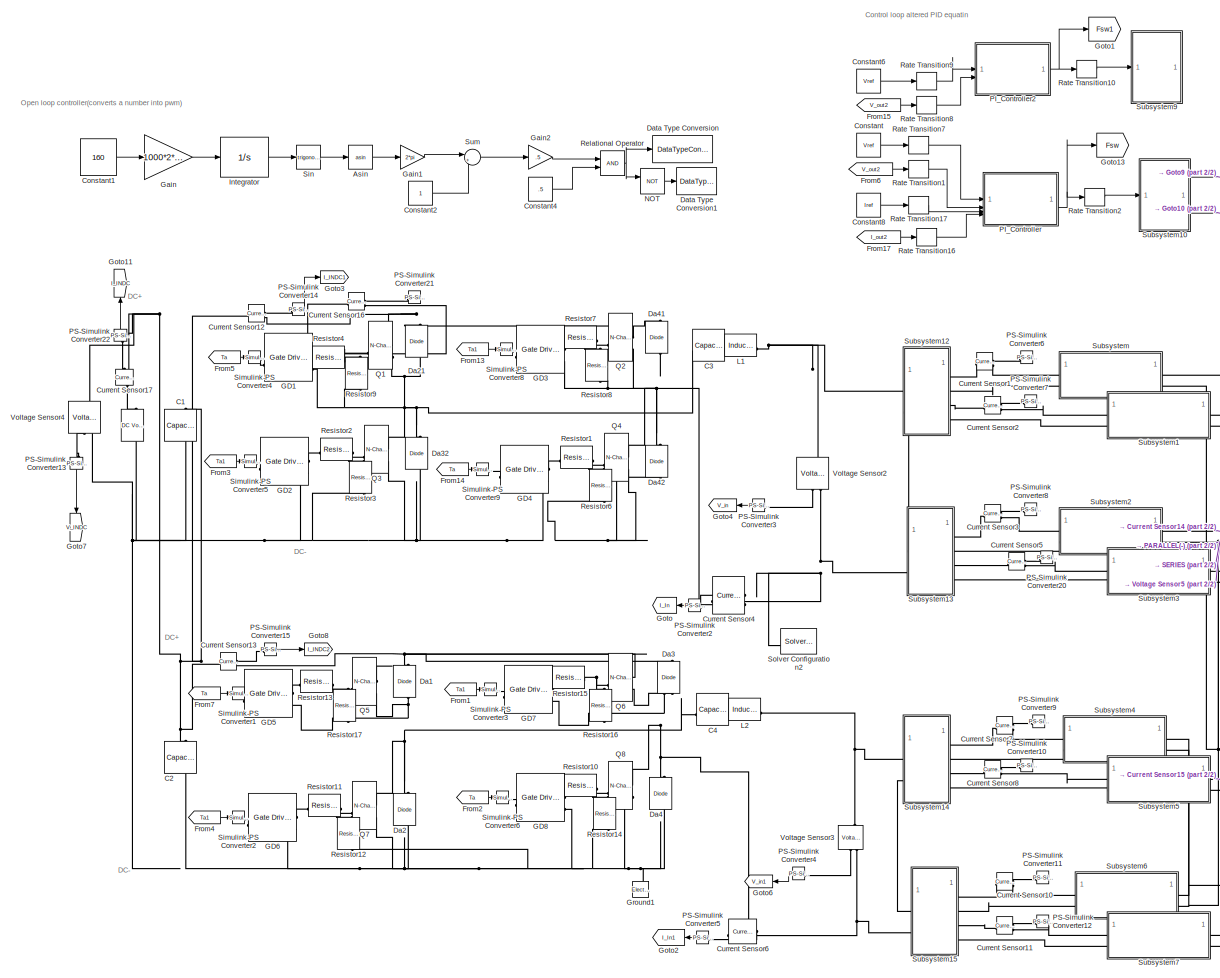
[diagram: root canvas - part 1/2, left side, full height]
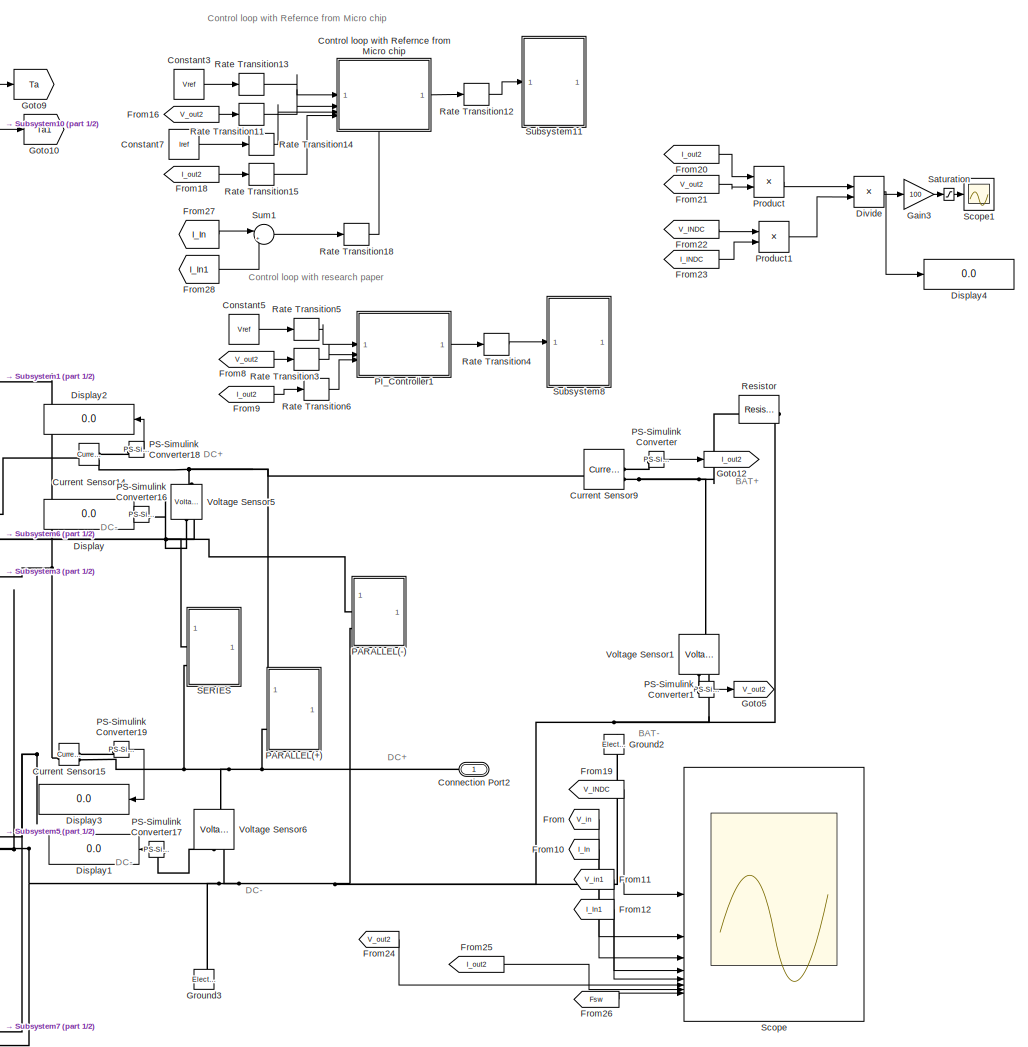
[diagram: root canvas - part 2/2, right side, full height]
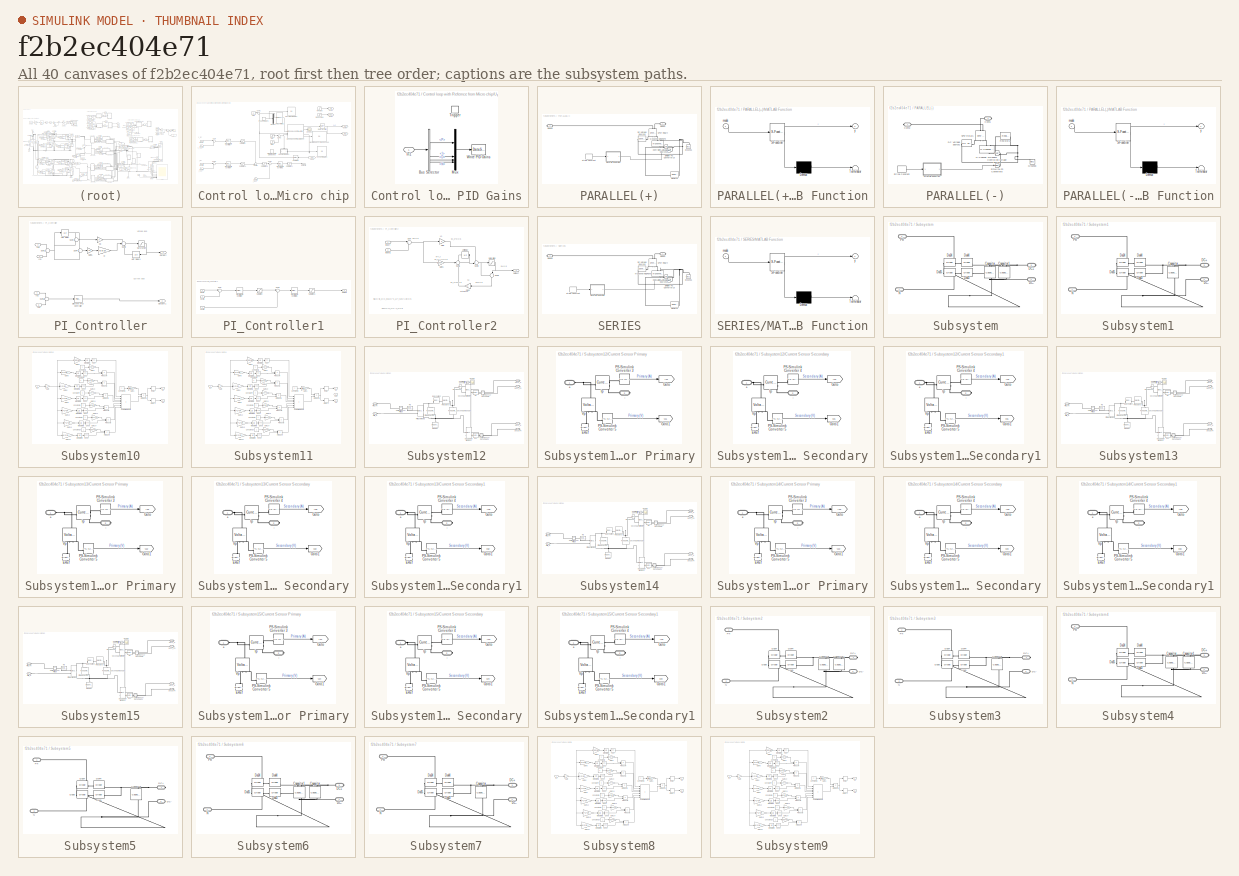
[diagram: thumbnail index - all 40 canvases of the model, root first then tree order]
MODEL slx_f2b2ec404e71
KIND model
CONFIG AbsTol = auto
CONFIG EnableMultiTasking = off
CONFIG FixedStep = auto
CONFIG MaxStep = auto
CONFIG MinStep = auto
CONFIG RelTol = 1e-3
CONFIG SampleTimeConstraint = Unconstrained
CONFIG SolverName = VariableStepAuto
CONFIG StartTime = 0.0
CONFIG StopTime = .01
BLOCK [Reference]    REF=ee_lib/Additional
Components/SPICE Sources/DC Voltage Source
  NameLocation = left
  SourceBlock = ee_lib/Additional\nComponents/SPICE Sources/DC Voltage Source
  SourceType = DC Voltage Source
BLOCK [Trigonometry] Asin
  Commented = on
  Operator = asin
BLOCK [Reference] C1  REF=fl_lib/Electrical/Electrical Elements/Capacitor
  NameLocation = right
  SourceBlock = fl_lib/Electrical/Electrical Elements/Capacitor
  SourceType = Capacitor
BLOCK [Reference] C2  REF=fl_lib/Electrical/Electrical Elements/Capacitor
  NameLocation = left
  SourceBlock = fl_lib/Electrical/Electrical Elements/Capacitor
  SourceType = Capacitor
BLOCK [Reference] C3  REF=fl_lib/Electrical/Electrical Elements/Capacitor
  SourceBlock = fl_lib/Electrical/Electrical Elements/Capacitor
  SourceType = Capacitor
BLOCK [Reference] C4  REF=fl_lib/Electrical/Electrical Elements/Capacitor
  SourceBlock = fl_lib/Electrical/Electrical Elements/Capacitor
  SourceType = Capacitor
BLOCK [PMIOPort] Connection Port2
  NameLocation = top
  Side = Left
BLOCK [Constant] Constant
  Value = Vref
BLOCK [Constant] Constant1
  Commented = on
  Value = 160
BLOCK [Constant] Constant2
  Commented = on
BLOCK [Constant] Constant3
  Commented = on
  Value = Vref
BLOCK [Constant] Constant4
  Commented = on
  Value = .5
BLOCK [Constant] Constant5
  Commented = on
  Value = Vref
BLOCK [Constant] Constant6
  Commented = on
  Value = Vref
BLOCK [Constant] Constant7
  Commented = on
  Value = Iref
BLOCK [Constant] Constant8
  Value = Iref
BLOCK [SubSystem] Control loop with Refernce from Micro chip
  Commented = on
  PortSchema = {"entries":[{"content":{"sides":[{"content":{"connectorIds":["In1","In2","In3","In4"]},"type":"ConnectorPlacement.EquallySpacedRectSide","uuid":"8758e69c-c30c-4bdc-ab0d-0d062e0b37b7"},{"content":{"connectorIds":["Out1"],"side":"RIGHT"},"type":"ConnectorPlacement.EquallySpacedRectSide","uuid":"dabc2d05-f5c7-433d-b7be-f864c65222bf"},{"content":{"connectorIds":[],"side":"TOP"},"type":"ConnectorPlacem...<+407ch>
BLOCK [Reference] Control loop with Refernce from Micro chip/Closed-Loop PID Autotuner  REF=slctrlblks/Closed-Loop PID Autotuner
  SourceBlock = slctrlblks/Closed-Loop PID Autotuner
  SourceType = ClosedLoopOnlinePIDTuner
BLOCK [Demux] Control loop with Refernce from Micro chip/Demux
BLOCK [Reference] Control loop with Refernce from Micro chip/Discrete PID Controller  REF=slpidlib/PID Controller
  SourceBlock = slpidlib/PID Controller
  SourceType = PID 1dof
BLOCK [Reference] Control loop with Refernce from Micro chip/Discrete PID Controller1  REF=slpidlib/PID Controller
  SourceBlock = slpidlib/PID Controller
  SourceType = PID 1dof
BLOCK [Reference] Control loop with Refernce from Micro chip/Discrete PID Controller4  REF=slpidlib/PID Controller
  SourceBlock = slpidlib/PID Controller
  SourceType = PID 1dof
BLOCK [From] Control loop with Refernce from Micro chip/From2
  GotoTag = Vout
  TagVisibility = global
BLOCK [Goto] Control loop with Refernce from Micro chip/Goto1
  GotoTag = Duty
  TagVisibility = global
BLOCK [Goto] Control loop with Refernce from Micro chip/Goto3
  GotoTag = Vin
  TagVisibility = global
BLOCK [Goto] Control loop with Refernce from Micro chip/Goto4
  GotoTag = Rload
  TagVisibility = global
BLOCK [Goto] Control loop with Refernce from Micro chip/Goto5
  GotoTag = Gate
  TagVisibility = global
BLOCK [Inport] Control loop with Refernce from Micro chip/Inport
BLOCK [Inport] Control loop with Refernce from Micro chip/Inport1
  Port = 2
BLOCK [Inport] Control loop with Refernce from Micro chip/Inport2
  Port = 5
BLOCK [Inport] Control loop with Refernce from Micro chip/Inport3
  Port = 3
BLOCK [Inport] Control loop with Refernce from Micro chip/Inport4
  Port = 4
BLOCK [Outport] Control loop with Refernce from Micro chip/Outport2
BLOCK [Reference] Control loop with Refernce from Micro chip/PID Controller1  REF=slpidlib/PID Controller
  SourceBlock = slpidlib/PID Controller
  SourceType = PID 1dof
BLOCK [DataStoreMemory] Control loop with Refernce from Micro chip/PID Gains Data Store Memory
  DataStoreName = Gains
  InitialValue = [0.02 160 5e-5 20000]
  ShowAdditionalParam = off
BLOCK [Display] Control loop with Refernce from Micro chip/Plant Frequency Responses
  Decimation = 1
BLOCK [RateTransition] Control loop with Refernce from Micro chip/Rate Transition
BLOCK [DataStoreRead] Control loop with Refernce from Micro chip/Read PID Gains
  DataStoreName = Gains
  IndexOptions = Index vector (dialog)
  Indices = 1
  OutputSizes = 1
BLOCK [Step] Control loop with Refernce from Micro chip/Rload Value
  After = 3
  Before = 6
  SampleTime = 0
  Time = 0.08
BLOCK [Display] Control loop with Refernce from Micro chip/Run-Time PID Gains
  Decimation = 1
BLOCK [RateTransition] Control loop with Refernce from Micro chip/Sampling
  OutPortSampleTime = 5e-6
BLOCK [Saturate] Control loop with Refernce from Micro chip/Saturation
  LowerLimit = 0
  UpperLimit = 30
BLOCK [Saturate] Control loop with Refernce from Micro chip/Saturation1
  LowerLimit = 130
  UpperLimit = 400
BLOCK [Saturate] Control loop with Refernce from Micro chip/Saturation4
  LowerLimit = -30
  UpperLimit = 0
BLOCK [Saturate] Control loop with Refernce from Micro chip/Saturation5
  LowerLimit = 0
  UpperLimit = 30
BLOCK [Scope] Control loop with Refernce from Micro chip/Scope1
  Floating = off
  NumInputPorts = 1
  ScopeSpecificationString = Simulink.scopes.TimeScopeBlockCfg('CurrentConfiguration', extmgr.ConfigurationSet(extmgr.Configuration('Core','General UI',true),extmgr.Configuration('Core','Source UI',true),extmgr.Configuration('Sources','WiredSimulink',true,'DataLoggingVariableName','ScopeData1'),extmgr.Configuration('Visuals','Time Domain',true,'SerializedDisplays',{struct('MinYLimReal','-12.5','MaxYLimReal','112.5','YLabelRea...<+1430ch>
BLOCK [Step] Control loop with Refernce from Micro chip/Start
  SampleTime = 0
  Time = 0.04
BLOCK [Step] Control loop with Refernce from Micro chip/Stop
  After = -1
  SampleTime = 0
  Time = 0.06
BLOCK [Sum] Control loop with Refernce from Micro chip/Sum
  Inputs = |+-
BLOCK [Sum] Control loop with Refernce from Micro chip/Sum1
  Inputs = |+-
BLOCK [Sum] Control loop with Refernce from Micro chip/Sum2
  Inputs = |+-
BLOCK [Sum] Control loop with Refernce from Micro chip/Sum3
  Inputs = |++
BLOCK [Sum] Control loop with Refernce from Micro chip/Sum4
  Inputs = |+-
BLOCK [Sum] Control loop with Refernce from Micro chip/Sum5
  Inputs = ++|
BLOCK [Display] Control loop with Refernce from Micro chip/Tuned PID Gains
  Decimation = 1
BLOCK [SubSystem] Control loop with Refernce from Micro chip/Update PID Gains
BLOCK [BusSelector] Control loop with Refernce from Micro chip/Update PID Gains/Bus Selector
  OutputSignals = P,I,D,N
BLOCK [Inport] Control loop with Refernce from Micro chip/Update PID Gains/In1
BLOCK [Mux] Control loop with Refernce from Micro chip/Update PID Gains/Mux
  DisplayOption = bar
BLOCK [TriggerPort] Control loop with Refernce from Micro chip/Update PID Gains/Trigger
  PortDimensions = 1
  StatesWhenEnabling = held
  TriggerType = falling
  VariantControl = Variant
BLOCK [DataStoreWrite] Control loop with Refernce from Micro chip/Update PID Gains/Write PID Gains
  DataStoreName = Gains
  IndexOptions = Index vector (dialog)
  Indices = 1
  OutputSizes = 1
BLOCK [Step] Control loop with Refernce from Micro chip/Vin Value
  After = 10
  Before = 5
  SampleTime = 0
  Time = 0.07
BLOCK [Constant] Control loop with Refernce from Micro chip/Vref1
  SampleTime = -1
  Value = 18
BLOCK [Reference] Current Sensor1  REF=fl_lib/Electrical/Electrical Sensors/Current Sensor
  SourceBlock = fl_lib/Electrical/Electrical Sensors/Current Sensor
  SourceType = Current Sensor
BLOCK [Reference] Current Sensor10  REF=fl_lib/Electrical/Electrical Sensors/Current Sensor
  SourceBlock = fl_lib/Electrical/Electrical Sensors/Current Sensor
  SourceType = Current Sensor
BLOCK [Reference] Current Sensor11  REF=fl_lib/Electrical/Electrical Sensors/Current Sensor
  SourceBlock = fl_lib/Electrical/Electrical Sensors/Current Sensor
  SourceType = Current Sensor
BLOCK [Reference] Current Sensor12  REF=fl_lib/Electrical/Electrical Sensors/Current Sensor
  SourceBlock = fl_lib/Electrical/Electrical Sensors/Current Sensor
  SourceType = Current Sensor
BLOCK [Reference] Current Sensor13  REF=fl_lib/Electrical/Electrical Sensors/Current Sensor
  SourceBlock = fl_lib/Electrical/Electrical Sensors/Current Sensor
  SourceType = Current Sensor
BLOCK [Reference] Current Sensor14  REF=fl_lib/Electrical/Electrical Sensors/Current Sensor
  SourceBlock = fl_lib/Electrical/Electrical Sensors/Current Sensor
  SourceType = Current Sensor
BLOCK [Reference] Current Sensor15  REF=fl_lib/Electrical/Electrical Sensors/Current Sensor
  SourceBlock = fl_lib/Electrical/Electrical Sensors/Current Sensor
  SourceType = Current Sensor
BLOCK [Reference] Current Sensor16  REF=fl_lib/Electrical/Electrical Sensors/Current Sensor
  SourceBlock = fl_lib/Electrical/Electrical Sensors/Current Sensor
  SourceType = Current Sensor
BLOCK [Reference] Current Sensor17  REF=fl_lib/Electrical/Electrical Sensors/Current Sensor
  NameLocation = right
  SourceBlock = fl_lib/Electrical/Electrical Sensors/Current Sensor
  SourceType = Current Sensor
BLOCK [Reference] Current Sensor2  REF=fl_lib/Electrical/Electrical Sensors/Current Sensor
  SourceBlock = fl_lib/Electrical/Electrical Sensors/Current Sensor
  SourceType = Current Sensor
BLOCK [Reference] Current Sensor3  REF=fl_lib/Electrical/Electrical Sensors/Current Sensor
  SourceBlock = fl_lib/Electrical/Electrical Sensors/Current Sensor
  SourceType = Current Sensor
BLOCK [Reference] Current Sensor4  REF=fl_lib/Electrical/Electrical Sensors/Current Sensor
  NameLocation = top
  SourceBlock = fl_lib/Electrical/Electrical Sensors/Current Sensor
  SourceType = Current Sensor
BLOCK [Reference] Current Sensor5  REF=fl_lib/Electrical/Electrical Sensors/Current Sensor
  SourceBlock = fl_lib/Electrical/Electrical Sensors/Current Sensor
  SourceType = Current Sensor
BLOCK [Reference] Current Sensor6  REF=fl_lib/Electrical/Electrical Sensors/Current Sensor
  NameLocation = top
  SourceBlock = fl_lib/Electrical/Electrical Sensors/Current Sensor
  SourceType = Current Sensor
BLOCK [Reference] Current Sensor7  REF=fl_lib/Electrical/Electrical Sensors/Current Sensor
  SourceBlock = fl_lib/Electrical/Electrical Sensors/Current Sensor
  SourceType = Current Sensor
BLOCK [Reference] Current Sensor8  REF=fl_lib/Electrical/Electrical Sensors/Current Sensor
  SourceBlock = fl_lib/Electrical/Electrical Sensors/Current Sensor
  SourceType = Current Sensor
BLOCK [Reference] Current Sensor9  REF=fl_lib/Electrical/Electrical Sensors/Current Sensor
  SourceBlock = fl_lib/Electrical/Electrical Sensors/Current Sensor
  SourceType = Current Sensor
BLOCK [Reference] Da1  REF=ee_lib/Semiconductors &
Converters/Diode
  NameLocation = right
  SourceBlock = ee_lib/Semiconductors &\nConverters/Diode
  SourceType = Diode
BLOCK [Reference] Da2  REF=ee_lib/Semiconductors &
Converters/Diode
  NameLocation = right
  SourceBlock = ee_lib/Semiconductors &\nConverters/Diode
  SourceType = Diode
BLOCK [Reference] Da21  REF=ee_lib/Semiconductors &
Converters/Diode
  SourceBlock = ee_lib/Semiconductors &\nConverters/Diode
  SourceType = Diode
BLOCK [Reference] Da3  REF=ee_lib/Semiconductors &
Converters/Diode
  NameLocation = right
  SourceBlock = ee_lib/Semiconductors &\nConverters/Diode
  SourceType = Diode
BLOCK [Reference] Da32  REF=ee_lib/Semiconductors &
Converters/Diode
  NameLocation = right
  SourceBlock = ee_lib/Semiconductors &\nConverters/Diode
  SourceType = Diode
BLOCK [Reference] Da4  REF=ee_lib/Semiconductors &
Converters/Diode
  NameLocation = right
  SourceBlock = ee_lib/Semiconductors &\nConverters/Diode
  SourceType = Diode
BLOCK [Reference] Da41  REF=ee_lib/Semiconductors &
Converters/Diode
  NameLocation = right
  SourceBlock = ee_lib/Semiconductors &\nConverters/Diode
  SourceType = Diode
BLOCK [Reference] Da42  REF=ee_lib/Semiconductors &
Converters/Diode
  NameLocation = right
  SourceBlock = ee_lib/Semiconductors &\nConverters/Diode
  SourceType = Diode
BLOCK [DataTypeConversion] Data Type Conversion
  Commented = on
  OutDataTypeStr = double
  RndMeth = Floor
  SaturateOnIntegerOverflow = off
BLOCK [DataTypeConversion] Data Type Conversion1
  Commented = on
  OutDataTypeStr = double
  RndMeth = Floor
  SaturateOnIntegerOverflow = off
BLOCK [Display] Display
  Decimation = 1
  NameLocation = top
BLOCK [Display] Display1
  Decimation = 1
  NameLocation = top
BLOCK [Display] Display2
  Decimation = 1
  NameLocation = top
BLOCK [Display] Display3
  Decimation = 1
  NameLocation = top
BLOCK [Display] Display4
  Commented = on
  Decimation = 1
BLOCK [Product] Divide
  Commented = on
  Inputs = */
BLOCK [From] From
  GotoTag = V_in
  NameLocation = top
  TagVisibility = global
BLOCK [From] From1
  GotoTag = Ta1
BLOCK [From] From10
  GotoTag = I_In
  NameLocation = top
BLOCK [From] From11
  GotoTag = V_in1
  NameLocation = top
  TagVisibility = global
BLOCK [From] From12
  GotoTag = I_In1
  NameLocation = top
BLOCK [From] From13
  GotoTag = Ta1
BLOCK [From] From14
  GotoTag = Ta
BLOCK [From] From15
  Commented = on
  GotoTag = V_out2
  TagVisibility = global
BLOCK [From] From16
  Commented = on
  GotoTag = V_out2
  TagVisibility = global
BLOCK [From] From17
  GotoTag = I_out2
BLOCK [From] From18
  Commented = on
  GotoTag = I_out2
BLOCK [From] From19
  GotoTag = V_INDC
  TagVisibility = global
BLOCK [From] From2
  GotoTag = Ta
BLOCK [From] From20
  Commented = on
  GotoTag = I_out2
BLOCK [From] From21
  Commented = on
  GotoTag = V_out2
  TagVisibility = global
BLOCK [From] From22
  Commented = on
  GotoTag = V_INDC
  TagVisibility = global
BLOCK [From] From23
  Commented = on
  GotoTag = I_INDC
  TagVisibility = global
BLOCK [From] From24
  GotoTag = V_out2
  TagVisibility = global
BLOCK [From] From25
  GotoTag = I_out2
BLOCK [From] From26
  GotoTag = Fsw
BLOCK [From] From27
  Commented = on
  GotoTag = I_In
BLOCK [From] From28
  Commented = on
  GotoTag = I_In1
BLOCK [From] From3
  GotoTag = Ta1
BLOCK [From] From4
  GotoTag = Ta1
BLOCK [From] From5
  GotoTag = Ta
BLOCK [From] From6
  GotoTag = V_out2
  TagVisibility = global
BLOCK [From] From7
  GotoTag = Ta
BLOCK [From] From8
  Commented = on
  GotoTag = V_out2
  TagVisibility = global
BLOCK [From] From9
  Commented = on
  GotoTag = I_out2
BLOCK [Reference] GD1  REF=ee_lib/Semiconductors &
Converters/Gate Driver
  SourceBlock = ee_lib/Semiconductors &\nConverters/Gate Driver
  SourceType = Gate Driver
BLOCK [Reference] GD2  REF=ee_lib/Semiconductors &
Converters/Gate Driver
  SourceBlock = ee_lib/Semiconductors &\nConverters/Gate Driver
  SourceType = Gate Driver
BLOCK [Reference] GD3  REF=ee_lib/Semiconductors &
Converters/Gate Driver
  SourceBlock = ee_lib/Semiconductors &\nConverters/Gate Driver
  SourceType = Gate Driver
BLOCK [Reference] GD4  REF=ee_lib/Semiconductors &
Converters/Gate Driver
  SourceBlock = ee_lib/Semiconductors &\nConverters/Gate Driver
  SourceType = Gate Driver
BLOCK [Reference] GD5  REF=ee_lib/Semiconductors &
Converters/Gate Driver
  SourceBlock = ee_lib/Semiconductors &\nConverters/Gate Driver
  SourceType = Gate Driver
BLOCK [Reference] GD6  REF=ee_lib/Semiconductors &
Converters/Gate Driver
  SourceBlock = ee_lib/Semiconductors &\nConverters/Gate Driver
  SourceType = Gate Driver
BLOCK [Reference] GD7  REF=ee_lib/Semiconductors &
Converters/Gate Driver
  SourceBlock = ee_lib/Semiconductors &\nConverters/Gate Driver
  SourceType = Gate Driver
BLOCK [Reference] GD8  REF=ee_lib/Semiconductors &
Converters/Gate Driver
  SourceBlock = ee_lib/Semiconductors &\nConverters/Gate Driver
  SourceType = Gate Driver
BLOCK [Gain] Gain
  Commented = on
  Gain = 1000*2*pi
BLOCK [Gain] Gain1
  Commented = on
  Gain = 2*pi
BLOCK [Gain] Gain2
  Commented = on
  Gain = .5
BLOCK [Gain] Gain3
  Commented = on
  Gain = 100
BLOCK [Goto] Goto
  GotoTag = I_In
  NameLocation = top
BLOCK [Goto] Goto1
  Commented = on
  GotoTag = Fsw1
BLOCK [Goto] Goto10
  GotoTag = Ta1
BLOCK [Goto] Goto11
  GotoTag = I_INDC
  NameLocation = right
  TagVisibility = global
BLOCK [Goto] Goto12
  GotoTag = I_out2
BLOCK [Goto] Goto13
  GotoTag = Fsw
BLOCK [Goto] Goto2
  GotoTag = I_In1
  NameLocation = top
BLOCK [Goto] Goto3
  GotoTag = I_INDC1
  TagVisibility = global
BLOCK [Goto] Goto4
  GotoTag = V_in
  NameLocation = top
  TagVisibility = global
BLOCK [Goto] Goto5
  GotoTag = V_out2
  TagVisibility = global
BLOCK [Goto] Goto6
  GotoTag = V_in1
  NameLocation = top
  TagVisibility = global
BLOCK [Goto] Goto7
  GotoTag = V_INDC
  NameLocation = left
  TagVisibility = global
BLOCK [Goto] Goto8
  GotoTag = I_INDC2
  TagVisibility = global
BLOCK [Goto] Goto9
  GotoTag = Ta
BLOCK [Reference] Ground1  REF=fl_lib/Electrical/Electrical Elements/Electrical Reference
  NameLocation = right
  SourceBlock = fl_lib/Electrical/Electrical Elements/Electrical Reference
  SourceType = Electrical Reference
BLOCK [Reference] Ground2  REF=fl_lib/Electrical/Electrical Elements/Electrical Reference
  NameLocation = right
  SourceBlock = fl_lib/Electrical/Electrical Elements/Electrical Reference
  SourceType = Electrical Reference
BLOCK [Reference] Ground3  REF=fl_lib/Electrical/Electrical Elements/Electrical Reference
  NameLocation = right
  SourceBlock = fl_lib/Electrical/Electrical Elements/Electrical Reference
  SourceType = Electrical Reference
BLOCK [Integrator] Integrator
  Commented = on
BLOCK [Reference] L1  REF=fl_lib/Electrical/Electrical Elements/Inductor
  SourceBlock = fl_lib/Electrical/Electrical Elements/Inductor
  SourceType = Inductor
BLOCK [Reference] L2  REF=fl_lib/Electrical/Electrical Elements/Inductor
  SourceBlock = fl_lib/Electrical/Electrical Elements/Inductor
  SourceType = Inductor
BLOCK [Logic] NOT
  AllPortsSameDT = off
  Commented = on
  IconShape = distinctive
  Operator = NOT
  OutDataTypeStr = boolean
BLOCK [SubSystem] PARALLEL(+)
  NameLocation = top
BLOCK [PMIOPort] PARALLEL(+)/Conn1
  Side = Right
BLOCK [PMIOPort] PARALLEL(+)/Conn2
  Port = 2
  Side = Right
BLOCK [Reference] PARALLEL(+)/Controlled Voltage Source10  REF=fl_lib/Electrical/Electrical Sources/Controlled Voltage
Source
  NameLocation = top
  SourceBlock = fl_lib/Electrical/Electrical Sources/Controlled Voltage\nSource
  SourceType = Controlled Voltage\nSource
BLOCK [Reference] PARALLEL(+)/DC Voltage Source3  REF=ee_lib/Additional
Components/SPICE Sources/DC Voltage Source
  SourceBlock = ee_lib/Additional\nComponents/SPICE Sources/DC Voltage Source
  SourceType = DC Voltage Source
BLOCK [Reference] PARALLEL(+)/Ground1  REF=fl_lib/Electrical/Electrical Elements/Electrical Reference
  NameLocation = right
  SourceBlock = fl_lib/Electrical/Electrical Elements/Electrical Reference
  SourceType = Electrical Reference
BLOCK [SubSystem] PARALLEL(+)/MATLAB Function
  ErrorFcn = Stateflow.Translate.translate
  PermitHierarchicalResolution = ExplicitOnly
  SFBlockType = MATLAB Function
  TreatAsAtomicUnit = on
BLOCK [Demux] PARALLEL(+)/MATLAB Function/ Demux 
  Outputs = 1
BLOCK [S-Function] PARALLEL(+)/MATLAB Function/ SFunction 
  EnableBusSupport = on
  FunctionName = sf_sfun
  PortCounts = [1 2]
  SFcnIsStateOwnerBlock = off
  SFunctionDeploymentMode = off
  Tag = Stateflow S-Function 4
BLOCK [Terminator] PARALLEL(+)/MATLAB Function/ Terminator 
BLOCK [Inport] PARALLEL(+)/MATLAB Function/mode
BLOCK [Outport] PARALLEL(+)/MATLAB Function/y
BLOCK [Reference] PARALLEL(+)/N-Channel MOSFET9  REF=ee_lib/Semiconductors &
Converters/N-Channel MOSFET
  NameLocation = left
  SourceBlock = ee_lib/Semiconductors &\nConverters/N-Channel MOSFET
  SourceType = N-Channel MOSFET
BLOCK [Reference] PARALLEL(+)/Resistor  REF=fl_lib/Electrical/Electrical Elements/Resistor
  SourceBlock = fl_lib/Electrical/Electrical Elements/Resistor
  SourceType = Resistor
BLOCK [Reference] PARALLEL(+)/SPST Relay4  REF=ee_lib/Switches & Breakers/Relays/SPST Relay
  NameLocation = right
  SourceBlock = ee_lib/Switches & Breakers/Relays/SPST Relay
  SourceType = SPST Relay
BLOCK [Reference] PARALLEL(+)/Simulink-PS Converter10  REF=nesl_utility/Simulink-PS
Converter
  SourceBlock = nesl_utility/Simulink-PS\nConverter
  SourceType = Simulink-PS\nConverter
BLOCK [StringConstant] PARALLEL(+)/String Constant
  String = Mode
BLOCK [SubSystem] PARALLEL(-)
  NameLocation = top
BLOCK [PMIOPort] PARALLEL(-)/Conn1
  Side = Right
BLOCK [PMIOPort] PARALLEL(-)/Conn2
  Port = 2
  Side = Right
BLOCK [Reference] PARALLEL(-)/Controlled Voltage Source1  REF=fl_lib/Electrical/Electrical Sources/Controlled Voltage
Source
  NameLocation = top
  SourceBlock = fl_lib/Electrical/Electrical Sources/Controlled Voltage\nSource
  SourceType = Controlled Voltage\nSource
BLOCK [Reference] PARALLEL(-)/DC Voltage Source1  REF=ee_lib/Additional
Components/SPICE Sources/DC Voltage Source
  SourceBlock = ee_lib/Additional\nComponents/SPICE Sources/DC Voltage Source
  SourceType = DC Voltage Source
BLOCK [Reference] PARALLEL(-)/Ground3  REF=fl_lib/Electrical/Electrical Elements/Electrical Reference
  NameLocation = right
  SourceBlock = fl_lib/Electrical/Electrical Elements/Electrical Reference
  SourceType = Electrical Reference
BLOCK [SubSystem] PARALLEL(-)/MATLAB Function
  ErrorFcn = Stateflow.Translate.translate
  PermitHierarchicalResolution = ExplicitOnly
  SFBlockType = MATLAB Function
  TreatAsAtomicUnit = on
BLOCK [Demux] PARALLEL(-)/MATLAB Function/ Demux 
  Outputs = 1
BLOCK [S-Function] PARALLEL(-)/MATLAB Function/ SFunction 
  EnableBusSupport = on
  FunctionName = sf_sfun
  PortCounts = [1 2]
  SFcnIsStateOwnerBlock = off
  SFunctionDeploymentMode = off
  Tag = Stateflow S-Function 3
BLOCK [Terminator] PARALLEL(-)/MATLAB Function/ Terminator 
BLOCK [Inport] PARALLEL(-)/MATLAB Function/mode
BLOCK [Outport] PARALLEL(-)/MATLAB Function/y
BLOCK [Reference] PARALLEL(-)/N-Channel MOSFET1  REF=ee_lib/Semiconductors &
Converters/N-Channel MOSFET
  NameLocation = left
  SourceBlock = ee_lib/Semiconductors &\nConverters/N-Channel MOSFET
  SourceType = N-Channel MOSFET
BLOCK [Reference] PARALLEL(-)/Resistor1  REF=fl_lib/Electrical/Electrical Elements/Resistor
  SourceBlock = fl_lib/Electrical/Electrical Elements/Resistor
  SourceType = Resistor
BLOCK [Reference] PARALLEL(-)/SPST Relay1  REF=ee_lib/Switches & Breakers/Relays/SPST Relay
  NameLocation = right
  SourceBlock = ee_lib/Switches & Breakers/Relays/SPST Relay
  SourceType = SPST Relay
BLOCK [Reference] PARALLEL(-)/Simulink-PS Converter8  REF=nesl_utility/Simulink-PS
Converter
  SourceBlock = nesl_utility/Simulink-PS\nConverter
  SourceType = Simulink-PS\nConverter
BLOCK [StringConstant] PARALLEL(-)/String Constant
  String = Mode
BLOCK [SubSystem] PI_Controller
BLOCK [Reference] PI_Controller/Discrete PID Controller  REF=slpidlib/PID Controller
  SourceBlock = slpidlib/PID Controller
  SourceType = PID 1dof
BLOCK [Gain] PI_Controller/Gain5
  Gain = 0.5
BLOCK [Inport] PI_Controller/In1
  Port = 3
BLOCK [Inport] PI_Controller/In2
  Port = 4
BLOCK [Inport] PI_Controller/In3
BLOCK [Inport] PI_Controller/In4
  Port = 2
BLOCK [Gain] PI_Controller/Ki
  Gain = (0.5/10e-3)*tsample_Controller
BLOCK [Gain] PI_Controller/Kp
  Gain = .5
BLOCK [Outport] PI_Controller/Outport
BLOCK [Outport] PI_Controller/Outport1
  Port = 2
BLOCK [Saturate] PI_Controller/Saturation
  LowerLimit = 130
  UpperLimit = 400
BLOCK [Sum] PI_Controller/Sum1
  Inputs = +-
BLOCK [Sum] PI_Controller/Sum2
  Inputs = -+
BLOCK [Sum] PI_Controller/Sum3
  Inputs = +++
BLOCK [Sum] PI_Controller/Sum4
BLOCK [Sum] PI_Controller/Sum5
  Inputs = +-
BLOCK [UnitDelay] PI_Controller/Unit Delay
  HasFrameUpgradeWarning = on
  SampleTime = -1
BLOCK [UnitDelay] PI_Controller/Unit Delay1
  HasFrameUpgradeWarning = on
  InitialCondition = 10000
  NameLocation = top
  SampleTime = -1
BLOCK [SubSystem] PI_Controller1
  Commented = on
BLOCK [Reference] PI_Controller1/Discrete PID Controller  REF=slpidlib/PID Controller
  SourceBlock = slpidlib/PID Controller
  SourceType = PID 1dof
BLOCK [Reference] PI_Controller1/Discrete PID Controller1  REF=slpidlib/PID Controller
  SourceBlock = slpidlib/PID Controller
  SourceType = PID 1dof
BLOCK [Inport] PI_Controller1/Inport
BLOCK [Inport] PI_Controller1/Inport1
  Port = 2
BLOCK [Inport] PI_Controller1/Inport2
  Port = 3
BLOCK [Outport] PI_Controller1/Outport
BLOCK [Saturate] PI_Controller1/Saturation
  LowerLimit = 0
  UpperLimit = 30
BLOCK [Saturate] PI_Controller1/Saturation1
  LowerLimit = 130
  UpperLimit = 400
BLOCK [Sum] PI_Controller1/Sum
  Inputs = |+-
BLOCK [Sum] PI_Controller1/Sum1
  Inputs = |+-
BLOCK [SubSystem] PI_Controller2
  Commented = on
BLOCK [Gain] PI_Controller2/Gain
  Gain = .9
BLOCK [Gain] PI_Controller2/Gain1
  Gain = (3000)*tsample_Controller
BLOCK [Gain] PI_Controller2/Gain2
  NameLocation = top
BLOCK [Inport] PI_Controller2/Inport
BLOCK [Inport] PI_Controller2/Inport1
  Port = 2
BLOCK [Outport] PI_Controller2/Outport
BLOCK [Saturate] PI_Controller2/Saturation
  LowerLimit = 130
  UpperLimit = 300
BLOCK [Sum] PI_Controller2/Sum
  Inputs = |+-
BLOCK [Sum] PI_Controller2/Sum1
  Inputs = +++
BLOCK [Sum] PI_Controller2/Sum2
  Inputs = ++|
BLOCK [Sum] PI_Controller2/Sum3
  Inputs = -+
  NameLocation = left
BLOCK [UnitDelay] PI_Controller2/Unit Delay
  HasFrameUpgradeWarning = on
  NameLocation = top
  SampleTime = -1
BLOCK [Reference] PS-Simulink Converter  REF=nesl_utility/PS-Simulink
Converter
  SourceBlock = nesl_utility/PS-Simulink\nConverter
  SourceType = PS-Simulink\nConverter
BLOCK [Reference] PS-Simulink Converter1  REF=nesl_utility/PS-Simulink
Converter
  SourceBlock = nesl_utility/PS-Simulink\nConverter
  SourceType = PS-Simulink\nConverter
BLOCK [Reference] PS-Simulink Converter10  REF=nesl_utility/PS-Simulink
Converter
  SourceBlock = nesl_utility/PS-Simulink\nConverter
  SourceType = PS-Simulink\nConverter
BLOCK [Reference] PS-Simulink Converter11  REF=nesl_utility/PS-Simulink
Converter
  SourceBlock = nesl_utility/PS-Simulink\nConverter
  SourceType = PS-Simulink\nConverter
BLOCK [Reference] PS-Simulink Converter12  REF=nesl_utility/PS-Simulink
Converter
  SourceBlock = nesl_utility/PS-Simulink\nConverter
  SourceType = PS-Simulink\nConverter
BLOCK [Reference] PS-Simulink Converter13  REF=nesl_utility/PS-Simulink
Converter
  NameLocation = left
  SourceBlock = nesl_utility/PS-Simulink\nConverter
  SourceType = PS-Simulink\nConverter
BLOCK [Reference] PS-Simulink Converter14  REF=nesl_utility/PS-Simulink
Converter
  SourceBlock = nesl_utility/PS-Simulink\nConverter
  SourceType = PS-Simulink\nConverter
BLOCK [Reference] PS-Simulink Converter15  REF=nesl_utility/PS-Simulink
Converter
  SourceBlock = nesl_utility/PS-Simulink\nConverter
  SourceType = PS-Simulink\nConverter
BLOCK [Reference] PS-Simulink Converter16  REF=nesl_utility/PS-Simulink
Converter
  NameLocation = top
  SourceBlock = nesl_utility/PS-Simulink\nConverter
  SourceType = PS-Simulink\nConverter
BLOCK [Reference] PS-Simulink Converter17  REF=nesl_utility/PS-Simulink
Converter
  NameLocation = top
  SourceBlock = nesl_utility/PS-Simulink\nConverter
  SourceType = PS-Simulink\nConverter
BLOCK [Reference] PS-Simulink Converter18  REF=nesl_utility/PS-Simulink
Converter
  SourceBlock = nesl_utility/PS-Simulink\nConverter
  SourceType = PS-Simulink\nConverter
BLOCK [Reference] PS-Simulink Converter19  REF=nesl_utility/PS-Simulink
Converter
  SourceBlock = nesl_utility/PS-Simulink\nConverter
  SourceType = PS-Simulink\nConverter
BLOCK [Reference] PS-Simulink Converter2  REF=nesl_utility/PS-Simulink
Converter
  NameLocation = top
  SourceBlock = nesl_utility/PS-Simulink\nConverter
  SourceType = PS-Simulink\nConverter
BLOCK [Reference] PS-Simulink Converter20  REF=nesl_utility/PS-Simulink
Converter
  SourceBlock = nesl_utility/PS-Simulink\nConverter
  SourceType = PS-Simulink\nConverter
BLOCK [Reference] PS-Simulink Converter21  REF=nesl_utility/PS-Simulink
Converter
  SourceBlock = nesl_utility/PS-Simulink\nConverter
  SourceType = PS-Simulink\nConverter
BLOCK [Reference] PS-Simulink Converter22  REF=nesl_utility/PS-Simulink
Converter
  NameLocation = right
  SourceBlock = nesl_utility/PS-Simulink\nConverter
  SourceType = PS-Simulink\nConverter
BLOCK [Reference] PS-Simulink Converter3  REF=nesl_utility/PS-Simulink
Converter
  NameLocation = top
  SourceBlock = nesl_utility/PS-Simulink\nConverter
  SourceType = PS-Simulink\nConverter
BLOCK [Reference] PS-Simulink Converter4  REF=nesl_utility/PS-Simulink
Converter
  NameLocation = top
  SourceBlock = nesl_utility/PS-Simulink\nConverter
  SourceType = PS-Simulink\nConverter
BLOCK [Reference] PS-Simulink Converter5  REF=nesl_utility/PS-Simulink
Converter
  NameLocation = top
  SourceBlock = nesl_utility/PS-Simulink\nConverter
  SourceType = PS-Simulink\nConverter
BLOCK [Reference] PS-Simulink Converter6  REF=nesl_utility/PS-Simulink
Converter
  SourceBlock = nesl_utility/PS-Simulink\nConverter
  SourceType = PS-Simulink\nConverter
BLOCK [Reference] PS-Simulink Converter7  REF=nesl_utility/PS-Simulink
Converter
  SourceBlock = nesl_utility/PS-Simulink\nConverter
  SourceType = PS-Simulink\nConverter
BLOCK [Reference] PS-Simulink Converter8  REF=nesl_utility/PS-Simulink
Converter
  SourceBlock = nesl_utility/PS-Simulink\nConverter
  SourceType = PS-Simulink\nConverter
BLOCK [Reference] PS-Simulink Converter9  REF=nesl_utility/PS-Simulink
Converter
  SourceBlock = nesl_utility/PS-Simulink\nConverter
  SourceType = PS-Simulink\nConverter
BLOCK [Product] Product
  Commented = on
BLOCK [Product] Product1
  Commented = on
BLOCK [Reference] Q1  REF=ee_lib/Semiconductors &
Converters/N-Channel MOSFET
  SourceBlock = ee_lib/Semiconductors &\nConverters/N-Channel MOSFET
  SourceType = N-Channel MOSFET
BLOCK [Reference] Q2   REF=ee_lib/Semiconductors &
Converters/N-Channel MOSFET
  NameLocation = top
  SourceBlock = ee_lib/Semiconductors &\nConverters/N-Channel MOSFET
  SourceType = N-Channel MOSFET
BLOCK [Reference] Q3  REF=ee_lib/Semiconductors &
Converters/N-Channel MOSFET
  NameLocation = top
  SourceBlock = ee_lib/Semiconductors &\nConverters/N-Channel MOSFET
  SourceType = N-Channel MOSFET
BLOCK [Reference] Q4  REF=ee_lib/Semiconductors &
Converters/N-Channel MOSFET
  NameLocation = top
  SourceBlock = ee_lib/Semiconductors &\nConverters/N-Channel MOSFET
  SourceType = N-Channel MOSFET
BLOCK [Reference] Q5  REF=ee_lib/Semiconductors &
Converters/N-Channel MOSFET
  SourceBlock = ee_lib/Semiconductors &\nConverters/N-Channel MOSFET
  SourceType = N-Channel MOSFET
BLOCK [Reference] Q6  REF=ee_lib/Semiconductors &
Converters/N-Channel MOSFET
  SourceBlock = ee_lib/Semiconductors &\nConverters/N-Channel MOSFET
  SourceType = N-Channel MOSFET
BLOCK [Reference] Q7  REF=ee_lib/Semiconductors &
Converters/N-Channel MOSFET
  SourceBlock = ee_lib/Semiconductors &\nConverters/N-Channel MOSFET
  SourceType = N-Channel MOSFET
BLOCK [Reference] Q8  REF=ee_lib/Semiconductors &
Converters/N-Channel MOSFET
  SourceBlock = ee_lib/Semiconductors &\nConverters/N-Channel MOSFET
  SourceType = N-Channel MOSFET
BLOCK [RateTransition] Rate Transition1
  NameLocation = top
  OutPortSampleTime = tsample_Controller
BLOCK [RateTransition] Rate Transition10
  Commented = on
  NameLocation = top
BLOCK [RateTransition] Rate Transition11
  Commented = on
  NameLocation = top
  OutPortSampleTime = tsample_Controller
BLOCK [RateTransition] Rate Transition12
  Commented = on
  NameLocation = top
BLOCK [RateTransition] Rate Transition13
  Commented = on
  NameLocation = top
  OutPortSampleTime = tsample_Controller
BLOCK [RateTransition] Rate Transition14
  Commented = on
  NameLocation = top
  OutPortSampleTime = tsample_Controller
BLOCK [RateTransition] Rate Transition15
  Commented = on
  NameLocation = top
  OutPortSampleTime = tsample_Controller
BLOCK [RateTransition] Rate Transition16
  NameLocation = top
  OutPortSampleTime = tsample_Controller
BLOCK [RateTransition] Rate Transition17
  NameLocation = top
  OutPortSampleTime = tsample_Controller
BLOCK [RateTransition] Rate Transition18
  Commented = on
  NameLocation = top
  OutPortSampleTime = tsample_Controller
BLOCK [RateTransition] Rate Transition2
  NameLocation = top
BLOCK [RateTransition] Rate Transition3
  Commented = on
  NameLocation = top
  OutPortSampleTime = tsample_Controller
BLOCK [RateTransition] Rate Transition4
  Commented = on
  NameLocation = top
BLOCK [RateTransition] Rate Transition5
  Commented = on
  NameLocation = top
  OutPortSampleTime = tsample_Controller
BLOCK [RateTransition] Rate Transition6
  Commented = on
  NameLocation = top
  OutPortSampleTime = tsample_Controller
BLOCK [RateTransition] Rate Transition7
  NameLocation = top
  OutPortSampleTime = tsample_Controller
BLOCK [RateTransition] Rate Transition8
  Commented = on
  NameLocation = top
  OutPortSampleTime = tsample_Controller
BLOCK [RateTransition] Rate Transition9
  Commented = on
  NameLocation = top
  OutPortSampleTime = tsample_Controller
BLOCK [RelationalOperator] Relational Operator
  Commented = on
  InputSameDT = off
  OutDataTypeStr = boolean
  RndMeth = Simplest
BLOCK [Reference] Resistor  REF=ee_lib/Passive/Resistor
  SourceBlock = ee_lib/Passive/Resistor
  SourceType = Resistor
BLOCK [Reference] Resistor1  REF=fl_lib/Electrical/Electrical Elements/Resistor
  NameLocation = top
  SourceBlock = fl_lib/Electrical/Electrical Elements/Resistor
  SourceType = Resistor
BLOCK [Reference] Resistor10  REF=fl_lib/Electrical/Electrical Elements/Resistor
  NameLocation = top
  SourceBlock = fl_lib/Electrical/Electrical Elements/Resistor
  SourceType = Resistor
BLOCK [Reference] Resistor11  REF=fl_lib/Electrical/Electrical Elements/Resistor
  NameLocation = top
  SourceBlock = fl_lib/Electrical/Electrical Elements/Resistor
  SourceType = Resistor
BLOCK [Reference] Resistor12  REF=fl_lib/Electrical/Electrical Elements/Resistor
  NameLocation = right
  SourceBlock = fl_lib/Electrical/Electrical Elements/Resistor
  SourceType = Resistor
BLOCK [Reference] Resistor13  REF=fl_lib/Electrical/Electrical Elements/Resistor
  NameLocation = top
  SourceBlock = fl_lib/Electrical/Electrical Elements/Resistor
  SourceType = Resistor
BLOCK [Reference] Resistor14  REF=fl_lib/Electrical/Electrical Elements/Resistor
  NameLocation = right
  SourceBlock = fl_lib/Electrical/Electrical Elements/Resistor
  SourceType = Resistor
BLOCK [Reference] Resistor15  REF=fl_lib/Electrical/Electrical Elements/Resistor
  NameLocation = top
  SourceBlock = fl_lib/Electrical/Electrical Elements/Resistor
  SourceType = Resistor
BLOCK [Reference] Resistor16  REF=fl_lib/Electrical/Electrical Elements/Resistor
  NameLocation = right
  SourceBlock = fl_lib/Electrical/Electrical Elements/Resistor
  SourceType = Resistor
BLOCK [Reference] Resistor17  REF=fl_lib/Electrical/Electrical Elements/Resistor
  NameLocation = right
  SourceBlock = fl_lib/Electrical/Electrical Elements/Resistor
  SourceType = Resistor
BLOCK [Reference] Resistor2  REF=fl_lib/Electrical/Electrical Elements/Resistor
  NameLocation = top
  SourceBlock = fl_lib/Electrical/Electrical Elements/Resistor
  SourceType = Resistor
BLOCK [Reference] Resistor3  REF=fl_lib/Electrical/Electrical Elements/Resistor
  NameLocation = right
  SourceBlock = fl_lib/Electrical/Electrical Elements/Resistor
  SourceType = Resistor
BLOCK [Reference] Resistor4  REF=fl_lib/Electrical/Electrical Elements/Resistor
  NameLocation = top
  SourceBlock = fl_lib/Electrical/Electrical Elements/Resistor
  SourceType = Resistor
BLOCK [Reference] Resistor6  REF=fl_lib/Electrical/Electrical Elements/Resistor
  NameLocation = right
  SourceBlock = fl_lib/Electrical/Electrical Elements/Resistor
  SourceType = Resistor
BLOCK [Reference] Resistor7  REF=fl_lib/Electrical/Electrical Elements/Resistor
  NameLocation = top
  SourceBlock = fl_lib/Electrical/Electrical Elements/Resistor
  SourceType = Resistor
BLOCK [Reference] Resistor8  REF=fl_lib/Electrical/Electrical Elements/Resistor
  NameLocation = right
  SourceBlock = fl_lib/Electrical/Electrical Elements/Resistor
  SourceType = Resistor
BLOCK [Reference] Resistor9  REF=fl_lib/Electrical/Electrical Elements/Resistor
  NameLocation = right
  SourceBlock = fl_lib/Electrical/Electrical Elements/Resistor
  SourceType = Resistor
BLOCK [SubSystem] SERIES
  NameLocation = top
BLOCK [PMIOPort] SERIES/Conn1
  Side = Right
BLOCK [PMIOPort] SERIES/Conn2
  Port = 2
  Side = Right
BLOCK [Reference] SERIES/Controlled Voltage Source10  REF=fl_lib/Electrical/Electrical Sources/Controlled Voltage
Source
  NameLocation = top
  SourceBlock = fl_lib/Electrical/Electrical Sources/Controlled Voltage\nSource
  SourceType = Controlled Voltage\nSource
BLOCK [Reference] SERIES/DC Voltage Source3  REF=ee_lib/Additional
Components/SPICE Sources/DC Voltage Source
  SourceBlock = ee_lib/Additional\nComponents/SPICE Sources/DC Voltage Source
  SourceType = DC Voltage Source
BLOCK [Reference] SERIES/Ground1  REF=fl_lib/Electrical/Electrical Elements/Electrical Reference
  NameLocation = right
  SourceBlock = fl_lib/Electrical/Electrical Elements/Electrical Reference
  SourceType = Electrical Reference
BLOCK [SubSystem] SERIES/MATLAB Function
  ErrorFcn = Stateflow.Translate.translate
  PermitHierarchicalResolution = ExplicitOnly
  SFBlockType = MATLAB Function
  TreatAsAtomicUnit = on
BLOCK [Demux] SERIES/MATLAB Function/ Demux 
  Outputs = 1
BLOCK [S-Function] SERIES/MATLAB Function/ SFunction 
  EnableBusSupport = on
  FunctionName = sf_sfun
  PortCounts = [1 2]
  SFcnIsStateOwnerBlock = off
  SFunctionDeploymentMode = off
  Tag = Stateflow S-Function 1
BLOCK [Terminator] SERIES/MATLAB Function/ Terminator 
BLOCK [Inport] SERIES/MATLAB Function/mode
BLOCK [Outport] SERIES/MATLAB Function/y
BLOCK [Reference] SERIES/N-Channel MOSFET9  REF=ee_lib/Semiconductors &
Converters/N-Channel MOSFET
  NameLocation = left
  SourceBlock = ee_lib/Semiconductors &\nConverters/N-Channel MOSFET
  SourceType = N-Channel MOSFET
BLOCK [Reference] SERIES/Resistor  REF=fl_lib/Electrical/Electrical Elements/Resistor
  SourceBlock = fl_lib/Electrical/Electrical Elements/Resistor
  SourceType = Resistor
BLOCK [Reference] SERIES/SPST Relay4  REF=ee_lib/Switches & Breakers/Relays/SPST Relay
  NameLocation = right
  SourceBlock = ee_lib/Switches & Breakers/Relays/SPST Relay
  SourceType = SPST Relay
BLOCK [Reference] SERIES/Simulink-PS Converter10  REF=nesl_utility/Simulink-PS
Converter
  SourceBlock = nesl_utility/Simulink-PS\nConverter
  SourceType = Simulink-PS\nConverter
BLOCK [StringConstant] SERIES/String Constant
  String = Mode
BLOCK [Saturate] Saturation
  Commented = on
  LowerLimit = 0
  UpperLimit = 100
BLOCK [Scope] Scope
  Floating = off
  NumInputPorts = 8
  ScopeSpecificationString = Simulink.scopes.TimeScopeBlockCfg('CurrentConfiguration', extmgr.ConfigurationSet(extmgr.Configuration('Core','General UI',true),extmgr.Configuration('Core','Source UI',true),extmgr.Configuration('Sources','WiredSimulink',true,'DataLoggingVariableName','ScopeData1'),extmgr.Configuration('Visuals','Time Domain',true,'SerializedDisplays',{struct('MinYLimReal','700.00000','MaxYLimReal','900.00000','Y...<+6982ch>
BLOCK [Scope] Scope1
  Commented = on
  Floating = off
  NumInputPorts = 1
  ScopeSpecificationString = Simulink.scopes.TimeScopeBlockCfg('CurrentConfiguration', extmgr.ConfigurationSet(extmgr.Configuration('Core','General UI',true),extmgr.Configuration('Core','Source UI',true),extmgr.Configuration('Sources','WiredSimulink',true),extmgr.Configuration('Visuals','Time Domain',true,'SerializedDisplays',{struct('MinYLimReal','-574.7548','MaxYLimReal','278.04705','YLabelReal','','MinYLimMag',' 0.00000','...<+1380ch>
BLOCK [Reference] Simulink-PS Converter1  REF=nesl_utility/Simulink-PS
Converter
  SourceBlock = nesl_utility/Simulink-PS\nConverter
  SourceType = Simulink-PS\nConverter
BLOCK [Reference] Simulink-PS Converter2  REF=nesl_utility/Simulink-PS
Converter
  SourceBlock = nesl_utility/Simulink-PS\nConverter
  SourceType = Simulink-PS\nConverter
BLOCK [Reference] Simulink-PS Converter3  REF=nesl_utility/Simulink-PS
Converter
  SourceBlock = nesl_utility/Simulink-PS\nConverter
  SourceType = Simulink-PS\nConverter
BLOCK [Reference] Simulink-PS Converter4  REF=nesl_utility/Simulink-PS
Converter
  SourceBlock = nesl_utility/Simulink-PS\nConverter
  SourceType = Simulink-PS\nConverter
BLOCK [Reference] Simulink-PS Converter5  REF=nesl_utility/Simulink-PS
Converter
  SourceBlock = nesl_utility/Simulink-PS\nConverter
  SourceType = Simulink-PS\nConverter
BLOCK [Reference] Simulink-PS Converter6  REF=nesl_utility/Simulink-PS
Converter
  SourceBlock = nesl_utility/Simulink-PS\nConverter
  SourceType = Simulink-PS\nConverter
BLOCK [Reference] Simulink-PS Converter8  REF=nesl_utility/Simulink-PS
Converter
  SourceBlock = nesl_utility/Simulink-PS\nConverter
  SourceType = Simulink-PS\nConverter
BLOCK [Reference] Simulink-PS Converter9  REF=nesl_utility/Simulink-PS
Converter
  SourceBlock = nesl_utility/Simulink-PS\nConverter
  SourceType = Simulink-PS\nConverter
BLOCK [Trigonometry] Sin
  Commented = on
BLOCK [Reference] Solver Configuration2  REF=nesl_utility/Solver
Configuration
  NameLocation = top
  SourceBlock = nesl_utility/Solver\nConfiguration
  SourceType = Solver\nConfiguration
BLOCK [SubSystem] Subsystem
BLOCK [Reference] Subsystem/Capacitor  REF=ee_lib/Passive/Capacitor
  NameLocation = left
  SourceBlock = ee_lib/Passive/Capacitor
  SourceType = Capacitor
BLOCK [Reference] Subsystem/Capacitor1  REF=ee_lib/Passive/Capacitor
  NameLocation = left
  SourceBlock = ee_lib/Passive/Capacitor
  SourceType = Capacitor
BLOCK [PMIOPort] Subsystem/DC+
  NameLocation = top
  Port = 3
  Side = Right
BLOCK [PMIOPort] Subsystem/DC-
  NameLocation = top
  Port = 4
  Side = Right
BLOCK [Reference] Subsystem/Da34  REF=ee_lib/Semiconductors &
Converters/Diode
  NameLocation = left
  SourceBlock = ee_lib/Semiconductors &\nConverters/Diode
  SourceType = Diode
BLOCK [Reference] Subsystem/Da35  REF=ee_lib/Semiconductors &
Converters/Diode
  SourceBlock = ee_lib/Semiconductors &\nConverters/Diode
  SourceType = Diode
BLOCK [Reference] Subsystem/Da43  REF=ee_lib/Semiconductors &
Converters/Diode
  SourceBlock = ee_lib/Semiconductors &\nConverters/Diode
  SourceType = Diode
BLOCK [Reference] Subsystem/Da44  REF=ee_lib/Semiconductors &
Converters/Diode
  NameLocation = top
  SourceBlock = ee_lib/Semiconductors &\nConverters/Diode
  SourceType = Diode
BLOCK [PMIOPort] Subsystem/N
  Port = 2
  Side = Left
BLOCK [PMIOPort] Subsystem/Ph
  Side = Left
BLOCK [SubSystem] Subsystem1
BLOCK [Reference] Subsystem1/Capacitor  REF=ee_lib/Passive/Capacitor
  NameLocation = left
  SourceBlock = ee_lib/Passive/Capacitor
  SourceType = Capacitor
BLOCK [PMIOPort] Subsystem1/DC+
  NameLocation = top
  Port = 3
  Side = Right
BLOCK [PMIOPort] Subsystem1/DC-
  NameLocation = top
  Port = 4
  Side = Right
BLOCK [Reference] Subsystem1/Da34  REF=ee_lib/Semiconductors &
Converters/Diode
  NameLocation = left
  SourceBlock = ee_lib/Semiconductors &\nConverters/Diode
  SourceType = Diode
BLOCK [Reference] Subsystem1/Da35  REF=ee_lib/Semiconductors &
Converters/Diode
  SourceBlock = ee_lib/Semiconductors &\nConverters/Diode
  SourceType = Diode
BLOCK [Reference] Subsystem1/Da43  REF=ee_lib/Semiconductors &
Converters/Diode
  SourceBlock = ee_lib/Semiconductors &\nConverters/Diode
  SourceType = Diode
BLOCK [Reference] Subsystem1/Da44  REF=ee_lib/Semiconductors &
Converters/Diode
  NameLocation = top
  SourceBlock = ee_lib/Semiconductors &\nConverters/Diode
  SourceType = Diode
BLOCK [PMIOPort] Subsystem1/N
  Port = 2
  Side = Left
BLOCK [PMIOPort] Subsystem1/Ph
  Side = Left
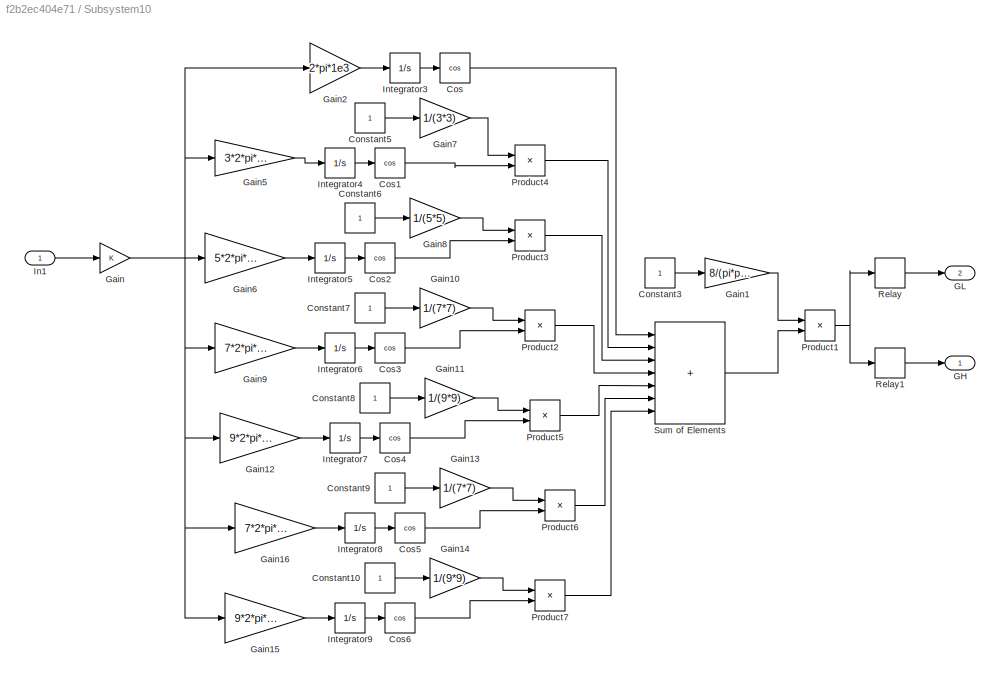
BLOCK [SubSystem] Subsystem10
BLOCK [Constant] Subsystem10/Constant10
BLOCK [Constant] Subsystem10/Constant3
BLOCK [Constant] Subsystem10/Constant5
BLOCK [Constant] Subsystem10/Constant6
BLOCK [Constant] Subsystem10/Constant7
BLOCK [Constant] Subsystem10/Constant8
BLOCK [Constant] Subsystem10/Constant9
BLOCK [Trigonometry] Subsystem10/Cos
  Operator = cos
BLOCK [Trigonometry] Subsystem10/Cos1
  Operator = cos
BLOCK [Trigonometry] Subsystem10/Cos2
  Operator = cos
BLOCK [Trigonometry] Subsystem10/Cos3
  Operator = cos
BLOCK [Trigonometry] Subsystem10/Cos4
  Operator = cos
BLOCK [Trigonometry] Subsystem10/Cos5
  Operator = cos
BLOCK [Trigonometry] Subsystem10/Cos6
  Operator = cos
BLOCK [Outport] Subsystem10/GH
BLOCK [Outport] Subsystem10/GL
  Port = 2
BLOCK [Gain] Subsystem10/Gain
BLOCK [Gain] Subsystem10/Gain1
  Gain = 8/(pi*pi)
BLOCK [Gain] Subsystem10/Gain10
  Gain = 1/(7*7)
BLOCK [Gain] Subsystem10/Gain11
  Gain = 1/(9*9)
BLOCK [Gain] Subsystem10/Gain12
  Gain = 9*2*pi*1e3
BLOCK [Gain] Subsystem10/Gain13
  Gain = 1/(7*7)
BLOCK [Gain] Subsystem10/Gain14
  Gain = 1/(9*9)
BLOCK [Gain] Subsystem10/Gain15
  Gain = 9*2*pi*1e3
BLOCK [Gain] Subsystem10/Gain16
  Gain = 7*2*pi*1e3
BLOCK [Gain] Subsystem10/Gain2
  Gain = 2*pi*1e3
BLOCK [Gain] Subsystem10/Gain5
  Gain = 3*2*pi*1e3
BLOCK [Gain] Subsystem10/Gain6
  Gain = 5*2*pi*1e3
BLOCK [Gain] Subsystem10/Gain7
  Gain = 1/(3*3)
BLOCK [Gain] Subsystem10/Gain8
  Gain = 1/(5*5)
BLOCK [Gain] Subsystem10/Gain9
  Gain = 7*2*pi*1e3
BLOCK [Inport] Subsystem10/In1
BLOCK [Integrator] Subsystem10/Integrator3
BLOCK [Integrator] Subsystem10/Integrator4
BLOCK [Integrator] Subsystem10/Integrator5
BLOCK [Integrator] Subsystem10/Integrator6
BLOCK [Integrator] Subsystem10/Integrator7
BLOCK [Integrator] Subsystem10/Integrator8
BLOCK [Integrator] Subsystem10/Integrator9
BLOCK [Product] Subsystem10/Product1
BLOCK [Product] Subsystem10/Product2
BLOCK [Product] Subsystem10/Product3
BLOCK [Product] Subsystem10/Product4
BLOCK [Product] Subsystem10/Product5
BLOCK [Product] Subsystem10/Product6
BLOCK [Product] Subsystem10/Product7
BLOCK [Relay] Subsystem10/Relay
  OffSwitchValue = -0.0001
  OnSwitchValue = 0.15
BLOCK [Relay] Subsystem10/Relay1
  OffOutputValue = 1
  OffSwitchValue = -0.15
  OnOutputValue = 0
  OnSwitchValue = 0.0001
BLOCK [Sum] Subsystem10/Sum of Elements
  IconShape = rectangular
  Inputs = +++++++
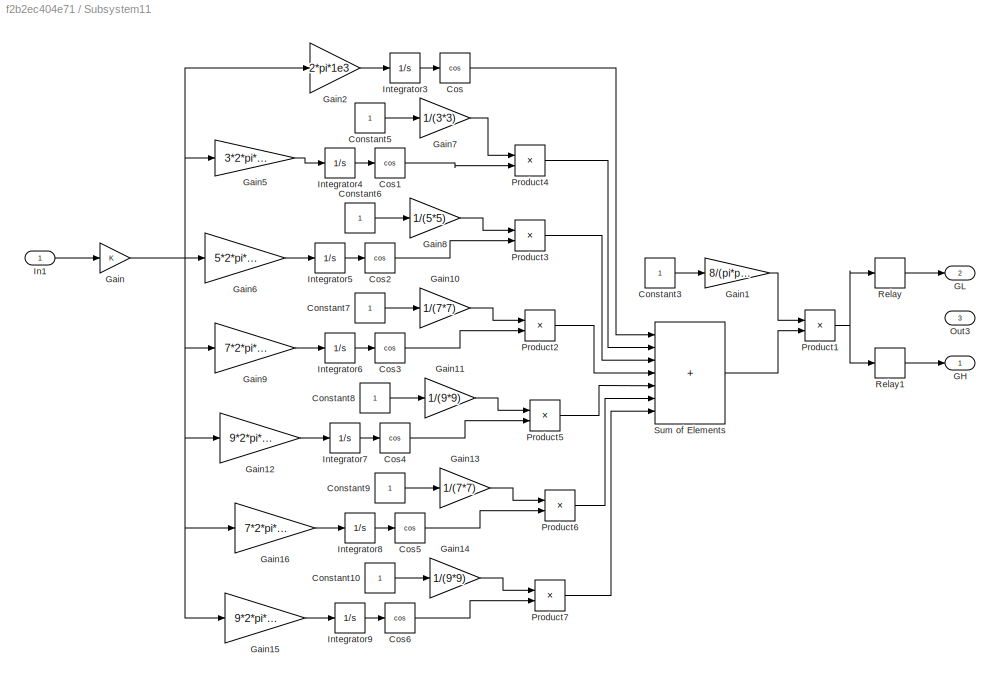
BLOCK [SubSystem] Subsystem11
  Commented = on
  PortSchema = {"entries":[{"content":{"sides":[{"content":{"connectorIds":["In1"]},"type":"ConnectorPlacement.EquallySpacedRectSide","uuid":"c53c7d2c-8aa3-4151-82be-c10e714e6679"},{"content":{"connectorIds":["Out1","Out2"],"side":"RIGHT"},"type":"ConnectorPlacement.EquallySpacedRectSide","uuid":"a42cc241-e860-4882-947f-0eda612eaf4a"},{"content":{"connectorIds":[],"side":"TOP"},"type":"ConnectorPlacement.Equally...<+397ch>
BLOCK [Constant] Subsystem11/Constant10
BLOCK [Constant] Subsystem11/Constant3
BLOCK [Constant] Subsystem11/Constant5
BLOCK [Constant] Subsystem11/Constant6
BLOCK [Constant] Subsystem11/Constant7
BLOCK [Constant] Subsystem11/Constant8
BLOCK [Constant] Subsystem11/Constant9
BLOCK [Trigonometry] Subsystem11/Cos
  Operator = cos
BLOCK [Trigonometry] Subsystem11/Cos1
  Operator = cos
BLOCK [Trigonometry] Subsystem11/Cos2
  Operator = cos
BLOCK [Trigonometry] Subsystem11/Cos3
  Operator = cos
BLOCK [Trigonometry] Subsystem11/Cos4
  Operator = cos
BLOCK [Trigonometry] Subsystem11/Cos5
  Operator = cos
BLOCK [Trigonometry] Subsystem11/Cos6
  Operator = cos
BLOCK [Outport] Subsystem11/GH
BLOCK [Outport] Subsystem11/GL
  Port = 2
BLOCK [Gain] Subsystem11/Gain
BLOCK [Gain] Subsystem11/Gain1
  Gain = 8/(pi*pi)
BLOCK [Gain] Subsystem11/Gain10
  Gain = 1/(7*7)
BLOCK [Gain] Subsystem11/Gain11
  Gain = 1/(9*9)
BLOCK [Gain] Subsystem11/Gain12
  Gain = 9*2*pi*1e3
BLOCK [Gain] Subsystem11/Gain13
  Gain = 1/(7*7)
BLOCK [Gain] Subsystem11/Gain14
  Gain = 1/(9*9)
BLOCK [Gain] Subsystem11/Gain15
  Gain = 9*2*pi*1e3
BLOCK [Gain] Subsystem11/Gain16
  Gain = 7*2*pi*1e3
BLOCK [Gain] Subsystem11/Gain2
  Gain = 2*pi*1e3
BLOCK [Gain] Subsystem11/Gain5
  Gain = 3*2*pi*1e3
BLOCK [Gain] Subsystem11/Gain6
  Gain = 5*2*pi*1e3
BLOCK [Gain] Subsystem11/Gain7
  Gain = 1/(3*3)
BLOCK [Gain] Subsystem11/Gain8
  Gain = 1/(5*5)
BLOCK [Gain] Subsystem11/Gain9
  Gain = 7*2*pi*1e3
BLOCK [Inport] Subsystem11/In1
BLOCK [Integrator] Subsystem11/Integrator3
BLOCK [Integrator] Subsystem11/Integrator4
BLOCK [Integrator] Subsystem11/Integrator5
BLOCK [Integrator] Subsystem11/Integrator6
BLOCK [Integrator] Subsystem11/Integrator7
BLOCK [Integrator] Subsystem11/Integrator8
BLOCK [Integrator] Subsystem11/Integrator9
BLOCK [Outport] Subsystem11/Out3
  Port = 3
BLOCK [Product] Subsystem11/Product1
BLOCK [Product] Subsystem11/Product2
BLOCK [Product] Subsystem11/Product3
BLOCK [Product] Subsystem11/Product4
BLOCK [Product] Subsystem11/Product5
BLOCK [Product] Subsystem11/Product6
BLOCK [Product] Subsystem11/Product7
BLOCK [Relay] Subsystem11/Relay
  OffSwitchValue = -0.0001
  OnSwitchValue = 0.15
BLOCK [Relay] Subsystem11/Relay1
  OffOutputValue = 1
  OffSwitchValue = -0.15
  OnOutputValue = 0
  OnSwitchValue = 0.0001
BLOCK [Sum] Subsystem11/Sum of Elements
  IconShape = rectangular
  Inputs = +++++++
BLOCK [SubSystem] Subsystem12
BLOCK [SubSystem] Subsystem12/Current Sensor Primary
BLOCK [PMIOPort] Subsystem12/Current Sensor Primary/+
  Side = Left
BLOCK [PMIOPort] Subsystem12/Current Sensor Primary/-
  Port = 2
  Side = Right
BLOCK [Reference] Subsystem12/Current Sensor Primary/ERef  REF=fl_lib/Electrical/Electrical Elements/Electrical Reference
  NameLocation = left
  SourceBlock = fl_lib/Electrical/Electrical Elements/Electrical Reference
  SourceType = Electrical Reference
BLOCK [Goto] Subsystem12/Current Sensor Primary/Goto
  GotoTag = i11
  TagVisibility = global
BLOCK [Goto] Subsystem12/Current Sensor Primary/Goto1
  GotoTag = v11
  TagVisibility = global
BLOCK [Reference] Subsystem12/Current Sensor Primary/Ip  REF=fl_lib/Electrical/Electrical Sensors/Current Sensor
  SourceBlock = fl_lib/Electrical/Electrical Sensors/Current Sensor
  SourceType = Current Sensor
BLOCK [Reference] Subsystem12/Current Sensor Primary/PS-Simulink Converter 3  REF=nesl_utility/PS-Simulink
Converter
  SourceBlock = nesl_utility/PS-Simulink\nConverter
  SourceType = PS-Simulink\nConverter
BLOCK [Reference] Subsystem12/Current Sensor Primary/PS-Simulink Converter 5  REF=nesl_utility/PS-Simulink
Converter
  SourceBlock = nesl_utility/PS-Simulink\nConverter
  SourceType = PS-Simulink\nConverter
BLOCK [Reference] Subsystem12/Current Sensor Primary/Vp  REF=fl_lib/Electrical/Electrical Sensors/Voltage Sensor
  NameLocation = right
  SourceBlock = fl_lib/Electrical/Electrical Sensors/Voltage Sensor
  SourceType = Voltage Sensor
BLOCK [SubSystem] Subsystem12/Current Sensor Secondary
BLOCK [PMIOPort] Subsystem12/Current Sensor Secondary/+
  Side = Left
BLOCK [PMIOPort] Subsystem12/Current Sensor Secondary/-
  Port = 2
  Side = Right
BLOCK [Reference] Subsystem12/Current Sensor Secondary/ERef  REF=fl_lib/Electrical/Electrical Elements/Electrical Reference
  NameLocation = left
  SourceBlock = fl_lib/Electrical/Electrical Elements/Electrical Reference
  SourceType = Electrical Reference
BLOCK [Goto] Subsystem12/Current Sensor Secondary/Goto
  GotoTag = i21
  TagVisibility = global
BLOCK [Goto] Subsystem12/Current Sensor Secondary/Goto1
  GotoTag = v21
  TagVisibility = global
BLOCK [Reference] Subsystem12/Current Sensor Secondary/Ip  REF=fl_lib/Electrical/Electrical Sensors/Current Sensor
  SourceBlock = fl_lib/Electrical/Electrical Sensors/Current Sensor
  SourceType = Current Sensor
BLOCK [Reference] Subsystem12/Current Sensor Secondary/PS-Simulink Converter 4  REF=nesl_utility/PS-Simulink
Converter
  SourceBlock = nesl_utility/PS-Simulink\nConverter
  SourceType = PS-Simulink\nConverter
BLOCK [Reference] Subsystem12/Current Sensor Secondary/PS-Simulink Converter 5  REF=nesl_utility/PS-Simulink
Converter
  SourceBlock = nesl_utility/PS-Simulink\nConverter
  SourceType = PS-Simulink\nConverter
BLOCK [Reference] Subsystem12/Current Sensor Secondary/Vp  REF=fl_lib/Electrical/Electrical Sensors/Voltage Sensor
  NameLocation = right
  SourceBlock = fl_lib/Electrical/Electrical Sensors/Voltage Sensor
  SourceType = Voltage Sensor
BLOCK [SubSystem] Subsystem12/Current Sensor Secondary1
BLOCK [PMIOPort] Subsystem12/Current Sensor Secondary1/+
  Side = Left
BLOCK [PMIOPort] Subsystem12/Current Sensor Secondary1/-
  Port = 2
  Side = Right
BLOCK [Reference] Subsystem12/Current Sensor Secondary1/ERef  REF=fl_lib/Electrical/Electrical Elements/Electrical Reference
  NameLocation = left
  SourceBlock = fl_lib/Electrical/Electrical Elements/Electrical Reference
  SourceType = Electrical Reference
BLOCK [Goto] Subsystem12/Current Sensor Secondary1/Goto
  GotoTag = i31
  TagVisibility = global
BLOCK [Goto] Subsystem12/Current Sensor Secondary1/Goto1
  GotoTag = v31
  TagVisibility = global
BLOCK [Reference] Subsystem12/Current Sensor Secondary1/Ip  REF=fl_lib/Electrical/Electrical Sensors/Current Sensor
  SourceBlock = fl_lib/Electrical/Electrical Sensors/Current Sensor
  SourceType = Current Sensor
BLOCK [Reference] Subsystem12/Current Sensor Secondary1/PS-Simulink Converter 4  REF=nesl_utility/PS-Simulink
Converter
  SourceBlock = nesl_utility/PS-Simulink\nConverter
  SourceType = PS-Simulink\nConverter
BLOCK [Reference] Subsystem12/Current Sensor Secondary1/PS-Simulink Converter 5  REF=nesl_utility/PS-Simulink
Converter
  SourceBlock = nesl_utility/PS-Simulink\nConverter
  SourceType = PS-Simulink\nConverter
BLOCK [Reference] Subsystem12/Current Sensor Secondary1/Vp  REF=fl_lib/Electrical/Electrical Sensors/Voltage Sensor
  NameLocation = right
  SourceBlock = fl_lib/Electrical/Electrical Sensors/Voltage Sensor
  SourceType = Voltage Sensor
BLOCK [Reference] Subsystem12/Eddy Current  REF=ee_lib/Passive/Eddy Current
  SourceBlock = ee_lib/Passive/Eddy Current
  SourceType = Eddy Current
BLOCK [Reference] Subsystem12/Flux Sensor  REF=fl_lib/Magnetic/Magnetic Sensors/Flux Sensor
  SourceBlock = fl_lib/Magnetic/Magnetic Sensors/Flux Sensor
  SourceType = Flux Sensor
BLOCK [Reference] Subsystem12/Mag Ref  REF=fl_lib/Magnetic/Magnetic Elements/Magnetic Reference
  NameLocation = right
  SourceBlock = fl_lib/Magnetic/Magnetic Elements/Magnetic Reference
  SourceType = Magnetic Reference
BLOCK [Reference] Subsystem12/PS-Simulink Converter  REF=nesl_utility/PS-Simulink
Converter
  SourceBlock = nesl_utility/PS-Simulink\nConverter
  SourceType = PS-Simulink\nConverter
BLOCK [PMIOPort] Subsystem12/Prim_N
  Port = 2
  Side = Left
BLOCK [PMIOPort] Subsystem12/Prim_Ph
  Side = Left
BLOCK [Reference] Subsystem12/Primary Winding  REF=fl_lib/Magnetic/Magnetic Elements/Electromagnetic
Converter
  SourceBlock = fl_lib/Magnetic/Magnetic Elements/Electromagnetic\nConverter
  SourceType = Electromagnetic\nConverter
BLOCK [Reference] Subsystem12/Primary leakage  REF=fl_lib/Magnetic/Magnetic Elements/Fundamental
Reluctance
  NameLocation = right
  SourceBlock = fl_lib/Magnetic/Magnetic Elements/Fundamental\nReluctance
  SourceType = Fundamental\nReluctance
BLOCK [Reference] Subsystem12/Reluctance  REF=fl_lib/Magnetic/Magnetic Elements/Reluctance
  SourceBlock = fl_lib/Magnetic/Magnetic Elements/Reluctance
  SourceType = Reluctance
BLOCK [Reference] Subsystem12/Rp  REF=fl_lib/Electrical/Electrical Elements/Resistor
  SourceBlock = fl_lib/Electrical/Electrical Elements/Resistor
  SourceType = Resistor
BLOCK [Reference] Subsystem12/Rs  REF=fl_lib/Electrical/Electrical Elements/Resistor
  SourceBlock = fl_lib/Electrical/Electrical Elements/Resistor
  SourceType = Resistor
BLOCK [Reference] Subsystem12/Rs1  REF=fl_lib/Electrical/Electrical Elements/Resistor
  SourceBlock = fl_lib/Electrical/Electrical Elements/Resistor
  SourceType = Resistor
BLOCK [Scope] Subsystem12/Scope
  Floating = off
  NumInputPorts = 1
  ScopeSpecificationString = Simulink.scopes.TimeScopeBlockCfg('CurrentConfiguration', extmgr.ConfigurationSet(extmgr.Configuration('Core','General UI',true),extmgr.Configuration('Core','Source UI',true),extmgr.Configuration('Sources','WiredSimulink',true,'DataLoggingVariableName','ScopeData1'),extmgr.Configuration('Visuals','Time Domain',true,'SerializedDisplays',{struct('MinYLimReal','-0.0000028','MaxYLimReal','0.0000057','...<+1423ch>
BLOCK [PMIOPort] Subsystem12/Sec1_N
  NameLocation = top
  Port = 4
  Side = Right
BLOCK [PMIOPort] Subsystem12/Sec1_Ph
  Port = 3
  Side = Right
BLOCK [PMIOPort] Subsystem12/Sec2_N
  Port = 6
  Side = Right
BLOCK [PMIOPort] Subsystem12/Sec2_Ph
  Port = 5
  Side = Right
BLOCK [Reference] Subsystem12/Secondary Winding  REF=fl_lib/Magnetic/Magnetic Elements/Electromagnetic
Converter
  SourceBlock = fl_lib/Magnetic/Magnetic Elements/Electromagnetic\nConverter
  SourceType = Electromagnetic\nConverter
BLOCK [Reference] Subsystem12/Secondary Winding1  REF=fl_lib/Magnetic/Magnetic Elements/Electromagnetic
Converter
  SourceBlock = fl_lib/Magnetic/Magnetic Elements/Electromagnetic\nConverter
  SourceType = Electromagnetic\nConverter
BLOCK [Reference] Subsystem12/Secondary leakage  REF=fl_lib/Magnetic/Magnetic Elements/Fundamental
Reluctance
  NameLocation = left
  SourceBlock = fl_lib/Magnetic/Magnetic Elements/Fundamental\nReluctance
  SourceType = Fundamental\nReluctance
BLOCK [SubSystem] Subsystem13
BLOCK [SubSystem] Subsystem13/Current Sensor Primary
BLOCK [PMIOPort] Subsystem13/Current Sensor Primary/+
  Side = Left
BLOCK [PMIOPort] Subsystem13/Current Sensor Primary/-
  Port = 2
  Side = Right
BLOCK [Reference] Subsystem13/Current Sensor Primary/ERef  REF=fl_lib/Electrical/Electrical Elements/Electrical Reference
  NameLocation = left
  SourceBlock = fl_lib/Electrical/Electrical Elements/Electrical Reference
  SourceType = Electrical Reference
BLOCK [Goto] Subsystem13/Current Sensor Primary/Goto
  GotoTag = i12
  TagVisibility = global
BLOCK [Goto] Subsystem13/Current Sensor Primary/Goto1
  GotoTag = v12
  TagVisibility = global
BLOCK [Reference] Subsystem13/Current Sensor Primary/Ip  REF=fl_lib/Electrical/Electrical Sensors/Current Sensor
  SourceBlock = fl_lib/Electrical/Electrical Sensors/Current Sensor
  SourceType = Current Sensor
BLOCK [Reference] Subsystem13/Current Sensor Primary/PS-Simulink Converter 3  REF=nesl_utility/PS-Simulink
Converter
  SourceBlock = nesl_utility/PS-Simulink\nConverter
  SourceType = PS-Simulink\nConverter
BLOCK [Reference] Subsystem13/Current Sensor Primary/PS-Simulink Converter 5  REF=nesl_utility/PS-Simulink
Converter
  SourceBlock = nesl_utility/PS-Simulink\nConverter
  SourceType = PS-Simulink\nConverter
BLOCK [Reference] Subsystem13/Current Sensor Primary/Vp  REF=fl_lib/Electrical/Electrical Sensors/Voltage Sensor
  NameLocation = right
  SourceBlock = fl_lib/Electrical/Electrical Sensors/Voltage Sensor
  SourceType = Voltage Sensor
BLOCK [SubSystem] Subsystem13/Current Sensor Secondary
BLOCK [PMIOPort] Subsystem13/Current Sensor Secondary/+
  Side = Left
BLOCK [PMIOPort] Subsystem13/Current Sensor Secondary/-
  Port = 2
  Side = Right
BLOCK [Reference] Subsystem13/Current Sensor Secondary/ERef  REF=fl_lib/Electrical/Electrical Elements/Electrical Reference
  NameLocation = left
  SourceBlock = fl_lib/Electrical/Electrical Elements/Electrical Reference
  SourceType = Electrical Reference
BLOCK [Goto] Subsystem13/Current Sensor Secondary/Goto
  GotoTag = i22
  TagVisibility = global
BLOCK [Goto] Subsystem13/Current Sensor Secondary/Goto1
  GotoTag = v22
  TagVisibility = global
BLOCK [Reference] Subsystem13/Current Sensor Secondary/Ip  REF=fl_lib/Electrical/Electrical Sensors/Current Sensor
  SourceBlock = fl_lib/Electrical/Electrical Sensors/Current Sensor
  SourceType = Current Sensor
BLOCK [Reference] Subsystem13/Current Sensor Secondary/PS-Simulink Converter 4  REF=nesl_utility/PS-Simulink
Converter
  SourceBlock = nesl_utility/PS-Simulink\nConverter
  SourceType = PS-Simulink\nConverter
BLOCK [Reference] Subsystem13/Current Sensor Secondary/PS-Simulink Converter 5  REF=nesl_utility/PS-Simulink
Converter
  SourceBlock = nesl_utility/PS-Simulink\nConverter
  SourceType = PS-Simulink\nConverter
BLOCK [Reference] Subsystem13/Current Sensor Secondary/Vp  REF=fl_lib/Electrical/Electrical Sensors/Voltage Sensor
  NameLocation = right
  SourceBlock = fl_lib/Electrical/Electrical Sensors/Voltage Sensor
  SourceType = Voltage Sensor
BLOCK [SubSystem] Subsystem13/Current Sensor Secondary1
BLOCK [PMIOPort] Subsystem13/Current Sensor Secondary1/+
  Side = Left
BLOCK [PMIOPort] Subsystem13/Current Sensor Secondary1/-
  Port = 2
  Side = Right
BLOCK [Reference] Subsystem13/Current Sensor Secondary1/ERef  REF=fl_lib/Electrical/Electrical Elements/Electrical Reference
  NameLocation = left
  SourceBlock = fl_lib/Electrical/Electrical Elements/Electrical Reference
  SourceType = Electrical Reference
BLOCK [Goto] Subsystem13/Current Sensor Secondary1/Goto
  GotoTag = i32
  TagVisibility = global
BLOCK [Goto] Subsystem13/Current Sensor Secondary1/Goto1
  GotoTag = v32
  TagVisibility = global
BLOCK [Reference] Subsystem13/Current Sensor Secondary1/Ip  REF=fl_lib/Electrical/Electrical Sensors/Current Sensor
  SourceBlock = fl_lib/Electrical/Electrical Sensors/Current Sensor
  SourceType = Current Sensor
BLOCK [Reference] Subsystem13/Current Sensor Secondary1/PS-Simulink Converter 4  REF=nesl_utility/PS-Simulink
Converter
  SourceBlock = nesl_utility/PS-Simulink\nConverter
  SourceType = PS-Simulink\nConverter
BLOCK [Reference] Subsystem13/Current Sensor Secondary1/PS-Simulink Converter 5  REF=nesl_utility/PS-Simulink
Converter
  SourceBlock = nesl_utility/PS-Simulink\nConverter
  SourceType = PS-Simulink\nConverter
BLOCK [Reference] Subsystem13/Current Sensor Secondary1/Vp  REF=fl_lib/Electrical/Electrical Sensors/Voltage Sensor
  NameLocation = right
  SourceBlock = fl_lib/Electrical/Electrical Sensors/Voltage Sensor
  SourceType = Voltage Sensor
BLOCK [Reference] Subsystem13/Eddy Current  REF=ee_lib/Passive/Eddy Current
  SourceBlock = ee_lib/Passive/Eddy Current
  SourceType = Eddy Current
BLOCK [Reference] Subsystem13/Flux Sensor  REF=fl_lib/Magnetic/Magnetic Sensors/Flux Sensor
  SourceBlock = fl_lib/Magnetic/Magnetic Sensors/Flux Sensor
  SourceType = Flux Sensor
BLOCK [Reference] Subsystem13/Mag Ref  REF=fl_lib/Magnetic/Magnetic Elements/Magnetic Reference
  NameLocation = right
  SourceBlock = fl_lib/Magnetic/Magnetic Elements/Magnetic Reference
  SourceType = Magnetic Reference
BLOCK [Reference] Subsystem13/PS-Simulink Converter  REF=nesl_utility/PS-Simulink
Converter
  SourceBlock = nesl_utility/PS-Simulink\nConverter
  SourceType = PS-Simulink\nConverter
BLOCK [PMIOPort] Subsystem13/Prim_N
  Port = 2
  Side = Left
BLOCK [PMIOPort] Subsystem13/Prim_Ph
  Side = Left
BLOCK [Reference] Subsystem13/Primary Winding  REF=fl_lib/Magnetic/Magnetic Elements/Electromagnetic
Converter
  SourceBlock = fl_lib/Magnetic/Magnetic Elements/Electromagnetic\nConverter
  SourceType = Electromagnetic\nConverter
BLOCK [Reference] Subsystem13/Primary leakage  REF=fl_lib/Magnetic/Magnetic Elements/Fundamental
Reluctance
  NameLocation = right
  SourceBlock = fl_lib/Magnetic/Magnetic Elements/Fundamental\nReluctance
  SourceType = Fundamental\nReluctance
BLOCK [Reference] Subsystem13/Reluctance  REF=fl_lib/Magnetic/Magnetic Elements/Reluctance
  SourceBlock = fl_lib/Magnetic/Magnetic Elements/Reluctance
  SourceType = Reluctance
BLOCK [Reference] Subsystem13/Rp  REF=fl_lib/Electrical/Electrical Elements/Resistor
  SourceBlock = fl_lib/Electrical/Electrical Elements/Resistor
  SourceType = Resistor
BLOCK [Reference] Subsystem13/Rs  REF=fl_lib/Electrical/Electrical Elements/Resistor
  SourceBlock = fl_lib/Electrical/Electrical Elements/Resistor
  SourceType = Resistor
BLOCK [Reference] Subsystem13/Rs1  REF=fl_lib/Electrical/Electrical Elements/Resistor
  SourceBlock = fl_lib/Electrical/Electrical Elements/Resistor
  SourceType = Resistor
BLOCK [Scope] Subsystem13/Scope
  Floating = off
  NumInputPorts = 1
  ScopeSpecificationString = Simulink.scopes.TimeScopeBlockCfg('CurrentConfiguration', extmgr.ConfigurationSet(extmgr.Configuration('Core','General UI',true),extmgr.Configuration('Core','Source UI',true),extmgr.Configuration('Sources','WiredSimulink',true,'DataLoggingVariableName','ScopeData1'),extmgr.Configuration('Visuals','Time Domain',true,'SerializedDisplays',{struct('MinYLimReal','-0.00022','MaxYLimReal','0.00019','YLab...<+1407ch>  <repeated x3 — deduplicated; at blocks: Scope>
BLOCK [PMIOPort] Subsystem13/Sec1_N
  NameLocation = top
  Port = 4
  Side = Right
BLOCK [PMIOPort] Subsystem13/Sec1_Ph
  Port = 3
  Side = Right
BLOCK [PMIOPort] Subsystem13/Sec2_N
  Port = 6
  Side = Right
BLOCK [PMIOPort] Subsystem13/Sec2_Ph
  Port = 5
  Side = Right
BLOCK [Reference] Subsystem13/Secondary Winding  REF=fl_lib/Magnetic/Magnetic Elements/Electromagnetic
Converter
  SourceBlock = fl_lib/Magnetic/Magnetic Elements/Electromagnetic\nConverter
  SourceType = Electromagnetic\nConverter
BLOCK [Reference] Subsystem13/Secondary Winding1  REF=fl_lib/Magnetic/Magnetic Elements/Electromagnetic
Converter
  SourceBlock = fl_lib/Magnetic/Magnetic Elements/Electromagnetic\nConverter
  SourceType = Electromagnetic\nConverter
BLOCK [Reference] Subsystem13/Secondary leakage  REF=fl_lib/Magnetic/Magnetic Elements/Fundamental
Reluctance
  NameLocation = left
  SourceBlock = fl_lib/Magnetic/Magnetic Elements/Fundamental\nReluctance
  SourceType = Fundamental\nReluctance
BLOCK [SubSystem] Subsystem14
BLOCK [SubSystem] Subsystem14/Current Sensor Primary
BLOCK [PMIOPort] Subsystem14/Current Sensor Primary/+
  Side = Left
BLOCK [PMIOPort] Subsystem14/Current Sensor Primary/-
  Port = 2
  Side = Right
BLOCK [Reference] Subsystem14/Current Sensor Primary/ERef  REF=fl_lib/Electrical/Electrical Elements/Electrical Reference
  NameLocation = left
  SourceBlock = fl_lib/Electrical/Electrical Elements/Electrical Reference
  SourceType = Electrical Reference
BLOCK [Goto] Subsystem14/Current Sensor Primary/Goto
  GotoTag = i13
  TagVisibility = global
BLOCK [Goto] Subsystem14/Current Sensor Primary/Goto1
  GotoTag = v13
  TagVisibility = global
BLOCK [Reference] Subsystem14/Current Sensor Primary/Ip  REF=fl_lib/Electrical/Electrical Sensors/Current Sensor
  SourceBlock = fl_lib/Electrical/Electrical Sensors/Current Sensor
  SourceType = Current Sensor
BLOCK [Reference] Subsystem14/Current Sensor Primary/PS-Simulink Converter 3  REF=nesl_utility/PS-Simulink
Converter
  SourceBlock = nesl_utility/PS-Simulink\nConverter
  SourceType = PS-Simulink\nConverter
BLOCK [Reference] Subsystem14/Current Sensor Primary/PS-Simulink Converter 5  REF=nesl_utility/PS-Simulink
Converter
  SourceBlock = nesl_utility/PS-Simulink\nConverter
  SourceType = PS-Simulink\nConverter
BLOCK [Reference] Subsystem14/Current Sensor Primary/Vp  REF=fl_lib/Electrical/Electrical Sensors/Voltage Sensor
  NameLocation = right
  SourceBlock = fl_lib/Electrical/Electrical Sensors/Voltage Sensor
  SourceType = Voltage Sensor
BLOCK [SubSystem] Subsystem14/Current Sensor Secondary
BLOCK [PMIOPort] Subsystem14/Current Sensor Secondary/+
  Side = Left
BLOCK [PMIOPort] Subsystem14/Current Sensor Secondary/-
  Port = 2
  Side = Right
BLOCK [Reference] Subsystem14/Current Sensor Secondary/ERef  REF=fl_lib/Electrical/Electrical Elements/Electrical Reference
  NameLocation = left
  SourceBlock = fl_lib/Electrical/Electrical Elements/Electrical Reference
  SourceType = Electrical Reference
BLOCK [Goto] Subsystem14/Current Sensor Secondary/Goto
  GotoTag = i23
  TagVisibility = global
BLOCK [Goto] Subsystem14/Current Sensor Secondary/Goto1
  GotoTag = v23
  TagVisibility = global
BLOCK [Reference] Subsystem14/Current Sensor Secondary/Ip  REF=fl_lib/Electrical/Electrical Sensors/Current Sensor
  SourceBlock = fl_lib/Electrical/Electrical Sensors/Current Sensor
  SourceType = Current Sensor
BLOCK [Reference] Subsystem14/Current Sensor Secondary/PS-Simulink Converter 4  REF=nesl_utility/PS-Simulink
Converter
  SourceBlock = nesl_utility/PS-Simulink\nConverter
  SourceType = PS-Simulink\nConverter
BLOCK [Reference] Subsystem14/Current Sensor Secondary/PS-Simulink Converter 5  REF=nesl_utility/PS-Simulink
Converter
  SourceBlock = nesl_utility/PS-Simulink\nConverter
  SourceType = PS-Simulink\nConverter
BLOCK [Reference] Subsystem14/Current Sensor Secondary/Vp  REF=fl_lib/Electrical/Electrical Sensors/Voltage Sensor
  NameLocation = right
  SourceBlock = fl_lib/Electrical/Electrical Sensors/Voltage Sensor
  SourceType = Voltage Sensor
BLOCK [SubSystem] Subsystem14/Current Sensor Secondary1
BLOCK [PMIOPort] Subsystem14/Current Sensor Secondary1/+
  Side = Left
BLOCK [PMIOPort] Subsystem14/Current Sensor Secondary1/-
  Port = 2
  Side = Right
BLOCK [Reference] Subsystem14/Current Sensor Secondary1/ERef  REF=fl_lib/Electrical/Electrical Elements/Electrical Reference
  NameLocation = left
  SourceBlock = fl_lib/Electrical/Electrical Elements/Electrical Reference
  SourceType = Electrical Reference
BLOCK [Goto] Subsystem14/Current Sensor Secondary1/Goto
  GotoTag = i33
  TagVisibility = global
BLOCK [Goto] Subsystem14/Current Sensor Secondary1/Goto1
  GotoTag = v33
  TagVisibility = global
BLOCK [Reference] Subsystem14/Current Sensor Secondary1/Ip  REF=fl_lib/Electrical/Electrical Sensors/Current Sensor
  SourceBlock = fl_lib/Electrical/Electrical Sensors/Current Sensor
  SourceType = Current Sensor
BLOCK [Reference] Subsystem14/Current Sensor Secondary1/PS-Simulink Converter 4  REF=nesl_utility/PS-Simulink
Converter
  SourceBlock = nesl_utility/PS-Simulink\nConverter
  SourceType = PS-Simulink\nConverter
BLOCK [Reference] Subsystem14/Current Sensor Secondary1/PS-Simulink Converter 5  REF=nesl_utility/PS-Simulink
Converter
  SourceBlock = nesl_utility/PS-Simulink\nConverter
  SourceType = PS-Simulink\nConverter
BLOCK [Reference] Subsystem14/Current Sensor Secondary1/Vp  REF=fl_lib/Electrical/Electrical Sensors/Voltage Sensor
  NameLocation = right
  SourceBlock = fl_lib/Electrical/Electrical Sensors/Voltage Sensor
  SourceType = Voltage Sensor
BLOCK [Reference] Subsystem14/Eddy Current  REF=ee_lib/Passive/Eddy Current
  SourceBlock = ee_lib/Passive/Eddy Current
  SourceType = Eddy Current
BLOCK [Reference] Subsystem14/Flux Sensor  REF=fl_lib/Magnetic/Magnetic Sensors/Flux Sensor
  SourceBlock = fl_lib/Magnetic/Magnetic Sensors/Flux Sensor
  SourceType = Flux Sensor
BLOCK [Reference] Subsystem14/Mag Ref  REF=fl_lib/Magnetic/Magnetic Elements/Magnetic Reference
  NameLocation = right
  SourceBlock = fl_lib/Magnetic/Magnetic Elements/Magnetic Reference
  SourceType = Magnetic Reference
BLOCK [Reference] Subsystem14/PS-Simulink Converter  REF=nesl_utility/PS-Simulink
Converter
  SourceBlock = nesl_utility/PS-Simulink\nConverter
  SourceType = PS-Simulink\nConverter
BLOCK [PMIOPort] Subsystem14/Prim_N
  Port = 2
  Side = Left
BLOCK [PMIOPort] Subsystem14/Prim_Ph
  Side = Left
BLOCK [Reference] Subsystem14/Primary Winding  REF=fl_lib/Magnetic/Magnetic Elements/Electromagnetic
Converter
  SourceBlock = fl_lib/Magnetic/Magnetic Elements/Electromagnetic\nConverter
  SourceType = Electromagnetic\nConverter
BLOCK [Reference] Subsystem14/Primary leakage  REF=fl_lib/Magnetic/Magnetic Elements/Fundamental
Reluctance
  NameLocation = right
  SourceBlock = fl_lib/Magnetic/Magnetic Elements/Fundamental\nReluctance
  SourceType = Fundamental\nReluctance
BLOCK [Reference] Subsystem14/Reluctance  REF=fl_lib/Magnetic/Magnetic Elements/Reluctance
  SourceBlock = fl_lib/Magnetic/Magnetic Elements/Reluctance
  SourceType = Reluctance
BLOCK [Reference] Subsystem14/Rp  REF=fl_lib/Electrical/Electrical Elements/Resistor
  SourceBlock = fl_lib/Electrical/Electrical Elements/Resistor
  SourceType = Resistor
BLOCK [Reference] Subsystem14/Rs  REF=fl_lib/Electrical/Electrical Elements/Resistor
  SourceBlock = fl_lib/Electrical/Electrical Elements/Resistor
  SourceType = Resistor
BLOCK [Reference] Subsystem14/Rs1  REF=fl_lib/Electrical/Electrical Elements/Resistor
  SourceBlock = fl_lib/Electrical/Electrical Elements/Resistor
  SourceType = Resistor
BLOCK [Scope] Subsystem14/Scope
  Floating = off
  NumInputPorts = 1
BLOCK [PMIOPort] Subsystem14/Sec1_N
  NameLocation = top
  Port = 4
  Side = Right
BLOCK [PMIOPort] Subsystem14/Sec1_Ph
  Port = 3
  Side = Right
BLOCK [PMIOPort] Subsystem14/Sec2_N
  Port = 6
  Side = Right
BLOCK [PMIOPort] Subsystem14/Sec2_Ph
  Port = 5
  Side = Right
BLOCK [Reference] Subsystem14/Secondary Winding  REF=fl_lib/Magnetic/Magnetic Elements/Electromagnetic
Converter
  SourceBlock = fl_lib/Magnetic/Magnetic Elements/Electromagnetic\nConverter
  SourceType = Electromagnetic\nConverter
BLOCK [Reference] Subsystem14/Secondary Winding1  REF=fl_lib/Magnetic/Magnetic Elements/Electromagnetic
Converter
  SourceBlock = fl_lib/Magnetic/Magnetic Elements/Electromagnetic\nConverter
  SourceType = Electromagnetic\nConverter
BLOCK [Reference] Subsystem14/Secondary leakage  REF=fl_lib/Magnetic/Magnetic Elements/Fundamental
Reluctance
  NameLocation = left
  SourceBlock = fl_lib/Magnetic/Magnetic Elements/Fundamental\nReluctance
  SourceType = Fundamental\nReluctance
BLOCK [SubSystem] Subsystem15
BLOCK [SubSystem] Subsystem15/Current Sensor Primary
BLOCK [PMIOPort] Subsystem15/Current Sensor Primary/+
  Side = Left
BLOCK [PMIOPort] Subsystem15/Current Sensor Primary/-
  Port = 2
  Side = Right
BLOCK [Reference] Subsystem15/Current Sensor Primary/ERef  REF=fl_lib/Electrical/Electrical Elements/Electrical Reference
  NameLocation = left
  SourceBlock = fl_lib/Electrical/Electrical Elements/Electrical Reference
  SourceType = Electrical Reference
BLOCK [Goto] Subsystem15/Current Sensor Primary/Goto
  GotoTag = i14
  TagVisibility = global
BLOCK [Goto] Subsystem15/Current Sensor Primary/Goto1
  GotoTag = v14
  TagVisibility = global
BLOCK [Reference] Subsystem15/Current Sensor Primary/Ip  REF=fl_lib/Electrical/Electrical Sensors/Current Sensor
  SourceBlock = fl_lib/Electrical/Electrical Sensors/Current Sensor
  SourceType = Current Sensor
BLOCK [Reference] Subsystem15/Current Sensor Primary/PS-Simulink Converter 3  REF=nesl_utility/PS-Simulink
Converter
  SourceBlock = nesl_utility/PS-Simulink\nConverter
  SourceType = PS-Simulink\nConverter
BLOCK [Reference] Subsystem15/Current Sensor Primary/PS-Simulink Converter 5  REF=nesl_utility/PS-Simulink
Converter
  SourceBlock = nesl_utility/PS-Simulink\nConverter
  SourceType = PS-Simulink\nConverter
BLOCK [Reference] Subsystem15/Current Sensor Primary/Vp  REF=fl_lib/Electrical/Electrical Sensors/Voltage Sensor
  NameLocation = right
  SourceBlock = fl_lib/Electrical/Electrical Sensors/Voltage Sensor
  SourceType = Voltage Sensor
BLOCK [SubSystem] Subsystem15/Current Sensor Secondary
BLOCK [PMIOPort] Subsystem15/Current Sensor Secondary/+
  Side = Left
BLOCK [PMIOPort] Subsystem15/Current Sensor Secondary/-
  Port = 2
  Side = Right
BLOCK [Reference] Subsystem15/Current Sensor Secondary/ERef  REF=fl_lib/Electrical/Electrical Elements/Electrical Reference
  NameLocation = left
  SourceBlock = fl_lib/Electrical/Electrical Elements/Electrical Reference
  SourceType = Electrical Reference
BLOCK [Goto] Subsystem15/Current Sensor Secondary/Goto
  GotoTag = i24
  TagVisibility = global
BLOCK [Goto] Subsystem15/Current Sensor Secondary/Goto1
  GotoTag = v24
  TagVisibility = global
BLOCK [Reference] Subsystem15/Current Sensor Secondary/Ip  REF=fl_lib/Electrical/Electrical Sensors/Current Sensor
  SourceBlock = fl_lib/Electrical/Electrical Sensors/Current Sensor
  SourceType = Current Sensor
BLOCK [Reference] Subsystem15/Current Sensor Secondary/PS-Simulink Converter 4  REF=nesl_utility/PS-Simulink
Converter
  SourceBlock = nesl_utility/PS-Simulink\nConverter
  SourceType = PS-Simulink\nConverter
BLOCK [Reference] Subsystem15/Current Sensor Secondary/PS-Simulink Converter 5  REF=nesl_utility/PS-Simulink
Converter
  SourceBlock = nesl_utility/PS-Simulink\nConverter
  SourceType = PS-Simulink\nConverter
BLOCK [Reference] Subsystem15/Current Sensor Secondary/Vp  REF=fl_lib/Electrical/Electrical Sensors/Voltage Sensor
  NameLocation = right
  SourceBlock = fl_lib/Electrical/Electrical Sensors/Voltage Sensor
  SourceType = Voltage Sensor
BLOCK [SubSystem] Subsystem15/Current Sensor Secondary1
BLOCK [PMIOPort] Subsystem15/Current Sensor Secondary1/+
  Side = Left
BLOCK [PMIOPort] Subsystem15/Current Sensor Secondary1/-
  Port = 2
  Side = Right
BLOCK [Reference] Subsystem15/Current Sensor Secondary1/ERef  REF=fl_lib/Electrical/Electrical Elements/Electrical Reference
  NameLocation = left
  SourceBlock = fl_lib/Electrical/Electrical Elements/Electrical Reference
  SourceType = Electrical Reference
BLOCK [Goto] Subsystem15/Current Sensor Secondary1/Goto
  GotoTag = i34
  TagVisibility = global
BLOCK [Goto] Subsystem15/Current Sensor Secondary1/Goto1
  GotoTag = v34
  TagVisibility = global
BLOCK [Reference] Subsystem15/Current Sensor Secondary1/Ip  REF=fl_lib/Electrical/Electrical Sensors/Current Sensor
  SourceBlock = fl_lib/Electrical/Electrical Sensors/Current Sensor
  SourceType = Current Sensor
BLOCK [Reference] Subsystem15/Current Sensor Secondary1/PS-Simulink Converter 4  REF=nesl_utility/PS-Simulink
Converter
  SourceBlock = nesl_utility/PS-Simulink\nConverter
  SourceType = PS-Simulink\nConverter
BLOCK [Reference] Subsystem15/Current Sensor Secondary1/PS-Simulink Converter 5  REF=nesl_utility/PS-Simulink
Converter
  SourceBlock = nesl_utility/PS-Simulink\nConverter
  SourceType = PS-Simulink\nConverter
BLOCK [Reference] Subsystem15/Current Sensor Secondary1/Vp  REF=fl_lib/Electrical/Electrical Sensors/Voltage Sensor
  NameLocation = right
  SourceBlock = fl_lib/Electrical/Electrical Sensors/Voltage Sensor
  SourceType = Voltage Sensor
BLOCK [Reference] Subsystem15/Eddy Current  REF=ee_lib/Passive/Eddy Current
  SourceBlock = ee_lib/Passive/Eddy Current
  SourceType = Eddy Current
BLOCK [Reference] Subsystem15/Flux Sensor  REF=fl_lib/Magnetic/Magnetic Sensors/Flux Sensor
  SourceBlock = fl_lib/Magnetic/Magnetic Sensors/Flux Sensor
  SourceType = Flux Sensor
BLOCK [Reference] Subsystem15/Mag Ref  REF=fl_lib/Magnetic/Magnetic Elements/Magnetic Reference
  NameLocation = right
  SourceBlock = fl_lib/Magnetic/Magnetic Elements/Magnetic Reference
  SourceType = Magnetic Reference
BLOCK [Reference] Subsystem15/PS-Simulink Converter  REF=nesl_utility/PS-Simulink
Converter
  SourceBlock = nesl_utility/PS-Simulink\nConverter
  SourceType = PS-Simulink\nConverter
BLOCK [PMIOPort] Subsystem15/Prim_N
  Port = 2
  Side = Left
BLOCK [PMIOPort] Subsystem15/Prim_Ph
  Side = Left
BLOCK [Reference] Subsystem15/Primary Winding  REF=fl_lib/Magnetic/Magnetic Elements/Electromagnetic
Converter
  SourceBlock = fl_lib/Magnetic/Magnetic Elements/Electromagnetic\nConverter
  SourceType = Electromagnetic\nConverter
BLOCK [Reference] Subsystem15/Primary leakage  REF=fl_lib/Magnetic/Magnetic Elements/Fundamental
Reluctance
  NameLocation = right
  SourceBlock = fl_lib/Magnetic/Magnetic Elements/Fundamental\nReluctance
  SourceType = Fundamental\nReluctance
BLOCK [Reference] Subsystem15/Reluctance  REF=fl_lib/Magnetic/Magnetic Elements/Reluctance
  SourceBlock = fl_lib/Magnetic/Magnetic Elements/Reluctance
  SourceType = Reluctance
BLOCK [Reference] Subsystem15/Rp  REF=fl_lib/Electrical/Electrical Elements/Resistor
  SourceBlock = fl_lib/Electrical/Electrical Elements/Resistor
  SourceType = Resistor
BLOCK [Reference] Subsystem15/Rs  REF=fl_lib/Electrical/Electrical Elements/Resistor
  SourceBlock = fl_lib/Electrical/Electrical Elements/Resistor
  SourceType = Resistor
BLOCK [Reference] Subsystem15/Rs1  REF=fl_lib/Electrical/Electrical Elements/Resistor
  SourceBlock = fl_lib/Electrical/Electrical Elements/Resistor
  SourceType = Resistor
BLOCK [Scope] Subsystem15/Scope
  Floating = off
  NumInputPorts = 1
BLOCK [PMIOPort] Subsystem15/Sec1_N
  NameLocation = top
  Port = 4
  Side = Right
BLOCK [PMIOPort] Subsystem15/Sec1_Ph
  Port = 3
  Side = Right
BLOCK [PMIOPort] Subsystem15/Sec2_N
  Port = 6
  Side = Right
BLOCK [PMIOPort] Subsystem15/Sec2_Ph
  Port = 5
  Side = Right
BLOCK [Reference] Subsystem15/Secondary Winding  REF=fl_lib/Magnetic/Magnetic Elements/Electromagnetic
Converter
  SourceBlock = fl_lib/Magnetic/Magnetic Elements/Electromagnetic\nConverter
  SourceType = Electromagnetic\nConverter
BLOCK [Reference] Subsystem15/Secondary Winding1  REF=fl_lib/Magnetic/Magnetic Elements/Electromagnetic
Converter
  SourceBlock = fl_lib/Magnetic/Magnetic Elements/Electromagnetic\nConverter
  SourceType = Electromagnetic\nConverter
BLOCK [Reference] Subsystem15/Secondary leakage  REF=fl_lib/Magnetic/Magnetic Elements/Fundamental
Reluctance
  NameLocation = left
  SourceBlock = fl_lib/Magnetic/Magnetic Elements/Fundamental\nReluctance
  SourceType = Fundamental\nReluctance
BLOCK [SubSystem] Subsystem2
BLOCK [Reference] Subsystem2/Capacitor  REF=ee_lib/Passive/Capacitor
  NameLocation = left
  SourceBlock = ee_lib/Passive/Capacitor
  SourceType = Capacitor
BLOCK [Reference] Subsystem2/Capacitor1  REF=ee_lib/Passive/Capacitor
  NameLocation = left
  SourceBlock = ee_lib/Passive/Capacitor
  SourceType = Capacitor
BLOCK [PMIOPort] Subsystem2/DC+
  NameLocation = top
  Port = 3
  Side = Right
BLOCK [PMIOPort] Subsystem2/DC-
  NameLocation = top
  Port = 4
  Side = Right
BLOCK [Reference] Subsystem2/Da34  REF=ee_lib/Semiconductors &
Converters/Diode
  NameLocation = left
  SourceBlock = ee_lib/Semiconductors &\nConverters/Diode
  SourceType = Diode
BLOCK [Reference] Subsystem2/Da35  REF=ee_lib/Semiconductors &
Converters/Diode
  SourceBlock = ee_lib/Semiconductors &\nConverters/Diode
  SourceType = Diode
BLOCK [Reference] Subsystem2/Da43  REF=ee_lib/Semiconductors &
Converters/Diode
  SourceBlock = ee_lib/Semiconductors &\nConverters/Diode
  SourceType = Diode
BLOCK [Reference] Subsystem2/Da44  REF=ee_lib/Semiconductors &
Converters/Diode
  NameLocation = top
  SourceBlock = ee_lib/Semiconductors &\nConverters/Diode
  SourceType = Diode
BLOCK [PMIOPort] Subsystem2/N
  Port = 2
  Side = Left
BLOCK [PMIOPort] Subsystem2/Ph
  Side = Left
BLOCK [SubSystem] Subsystem3
BLOCK [Reference] Subsystem3/Capacitor  REF=ee_lib/Passive/Capacitor
  NameLocation = left
  SourceBlock = ee_lib/Passive/Capacitor
  SourceType = Capacitor
BLOCK [PMIOPort] Subsystem3/DC+
  NameLocation = top
  Port = 3
  Side = Right
BLOCK [PMIOPort] Subsystem3/DC-
  NameLocation = top
  Port = 4
  Side = Right
BLOCK [Reference] Subsystem3/Da34  REF=ee_lib/Semiconductors &
Converters/Diode
  NameLocation = left
  SourceBlock = ee_lib/Semiconductors &\nConverters/Diode
  SourceType = Diode
BLOCK [Reference] Subsystem3/Da35  REF=ee_lib/Semiconductors &
Converters/Diode
  SourceBlock = ee_lib/Semiconductors &\nConverters/Diode
  SourceType = Diode
BLOCK [Reference] Subsystem3/Da43  REF=ee_lib/Semiconductors &
Converters/Diode
  SourceBlock = ee_lib/Semiconductors &\nConverters/Diode
  SourceType = Diode
BLOCK [Reference] Subsystem3/Da44  REF=ee_lib/Semiconductors &
Converters/Diode
  NameLocation = top
  SourceBlock = ee_lib/Semiconductors &\nConverters/Diode
  SourceType = Diode
BLOCK [PMIOPort] Subsystem3/N
  Port = 2
  Side = Left
BLOCK [PMIOPort] Subsystem3/Ph
  Side = Left
BLOCK [SubSystem] Subsystem4
BLOCK [Reference] Subsystem4/Capacitor  REF=ee_lib/Passive/Capacitor
  NameLocation = left
  SourceBlock = ee_lib/Passive/Capacitor
  SourceType = Capacitor
BLOCK [Reference] Subsystem4/Capacitor1  REF=ee_lib/Passive/Capacitor
  NameLocation = left
  SourceBlock = ee_lib/Passive/Capacitor
  SourceType = Capacitor
BLOCK [PMIOPort] Subsystem4/DC+
  NameLocation = top
  Port = 3
  Side = Right
BLOCK [PMIOPort] Subsystem4/DC-
  NameLocation = top
  Port = 4
  Side = Right
BLOCK [Reference] Subsystem4/Da34  REF=ee_lib/Semiconductors &
Converters/Diode
  NameLocation = left
  SourceBlock = ee_lib/Semiconductors &\nConverters/Diode
  SourceType = Diode
BLOCK [Reference] Subsystem4/Da35  REF=ee_lib/Semiconductors &
Converters/Diode
  SourceBlock = ee_lib/Semiconductors &\nConverters/Diode
  SourceType = Diode
BLOCK [Reference] Subsystem4/Da43  REF=ee_lib/Semiconductors &
Converters/Diode
  SourceBlock = ee_lib/Semiconductors &\nConverters/Diode
  SourceType = Diode
BLOCK [Reference] Subsystem4/Da44  REF=ee_lib/Semiconductors &
Converters/Diode
  NameLocation = top
  SourceBlock = ee_lib/Semiconductors &\nConverters/Diode
  SourceType = Diode
BLOCK [PMIOPort] Subsystem4/N
  Port = 2
  Side = Left
BLOCK [PMIOPort] Subsystem4/Ph
  Side = Left
BLOCK [SubSystem] Subsystem5
BLOCK [Reference] Subsystem5/Capacitor  REF=ee_lib/Passive/Capacitor
  NameLocation = left
  SourceBlock = ee_lib/Passive/Capacitor
  SourceType = Capacitor
BLOCK [PMIOPort] Subsystem5/DC+
  NameLocation = top
  Port = 3
  Side = Right
BLOCK [PMIOPort] Subsystem5/DC-
  NameLocation = top
  Port = 4
  Side = Right
BLOCK [Reference] Subsystem5/Da34  REF=ee_lib/Semiconductors &
Converters/Diode
  NameLocation = left
  SourceBlock = ee_lib/Semiconductors &\nConverters/Diode
  SourceType = Diode
BLOCK [Reference] Subsystem5/Da35  REF=ee_lib/Semiconductors &
Converters/Diode
  SourceBlock = ee_lib/Semiconductors &\nConverters/Diode
  SourceType = Diode
BLOCK [Reference] Subsystem5/Da43  REF=ee_lib/Semiconductors &
Converters/Diode
  SourceBlock = ee_lib/Semiconductors &\nConverters/Diode
  SourceType = Diode
BLOCK [Reference] Subsystem5/Da44  REF=ee_lib/Semiconductors &
Converters/Diode
  NameLocation = top
  SourceBlock = ee_lib/Semiconductors &\nConverters/Diode
  SourceType = Diode
BLOCK [PMIOPort] Subsystem5/N
  Port = 2
  Side = Left
BLOCK [PMIOPort] Subsystem5/Ph
  Side = Left
BLOCK [SubSystem] Subsystem6
BLOCK [Reference] Subsystem6/Capacitor  REF=ee_lib/Passive/Capacitor
  NameLocation = left
  SourceBlock = ee_lib/Passive/Capacitor
  SourceType = Capacitor
BLOCK [Reference] Subsystem6/Capacitor1  REF=ee_lib/Passive/Capacitor
  NameLocation = left
  SourceBlock = ee_lib/Passive/Capacitor
  SourceType = Capacitor
BLOCK [PMIOPort] Subsystem6/DC+
  NameLocation = top
  Port = 3
  Side = Right
BLOCK [PMIOPort] Subsystem6/DC-
  NameLocation = top
  Port = 4
  Side = Right
BLOCK [Reference] Subsystem6/Da34  REF=ee_lib/Semiconductors &
Converters/Diode
  NameLocation = left
  SourceBlock = ee_lib/Semiconductors &\nConverters/Diode
  SourceType = Diode
BLOCK [Reference] Subsystem6/Da35  REF=ee_lib/Semiconductors &
Converters/Diode
  SourceBlock = ee_lib/Semiconductors &\nConverters/Diode
  SourceType = Diode
BLOCK [Reference] Subsystem6/Da43  REF=ee_lib/Semiconductors &
Converters/Diode
  SourceBlock = ee_lib/Semiconductors &\nConverters/Diode
  SourceType = Diode
BLOCK [Reference] Subsystem6/Da44  REF=ee_lib/Semiconductors &
Converters/Diode
  NameLocation = top
  SourceBlock = ee_lib/Semiconductors &\nConverters/Diode
  SourceType = Diode
BLOCK [PMIOPort] Subsystem6/N
  Port = 2
  Side = Left
BLOCK [PMIOPort] Subsystem6/Ph
  Side = Left
BLOCK [SubSystem] Subsystem7
BLOCK [Reference] Subsystem7/Capacitor  REF=ee_lib/Passive/Capacitor
  NameLocation = left
  SourceBlock = ee_lib/Passive/Capacitor
  SourceType = Capacitor
BLOCK [PMIOPort] Subsystem7/DC+
  NameLocation = top
  Port = 3
  Side = Right
BLOCK [PMIOPort] Subsystem7/DC-
  NameLocation = top
  Port = 4
  Side = Right
BLOCK [Reference] Subsystem7/Da34  REF=ee_lib/Semiconductors &
Converters/Diode
  NameLocation = left
  SourceBlock = ee_lib/Semiconductors &\nConverters/Diode
  SourceType = Diode
BLOCK [Reference] Subsystem7/Da35  REF=ee_lib/Semiconductors &
Converters/Diode
  SourceBlock = ee_lib/Semiconductors &\nConverters/Diode
  SourceType = Diode
BLOCK [Reference] Subsystem7/Da43  REF=ee_lib/Semiconductors &
Converters/Diode
  SourceBlock = ee_lib/Semiconductors &\nConverters/Diode
  SourceType = Diode
BLOCK [Reference] Subsystem7/Da44  REF=ee_lib/Semiconductors &
Converters/Diode
  NameLocation = top
  SourceBlock = ee_lib/Semiconductors &\nConverters/Diode
  SourceType = Diode
BLOCK [PMIOPort] Subsystem7/N
  Port = 2
  Side = Left
BLOCK [PMIOPort] Subsystem7/Ph
  Side = Left
BLOCK [SubSystem] Subsystem8
  Commented = on
BLOCK [Constant] Subsystem8/Constant10
BLOCK [Constant] Subsystem8/Constant3
BLOCK [Constant] Subsystem8/Constant5
BLOCK [Constant] Subsystem8/Constant6
BLOCK [Constant] Subsystem8/Constant7
BLOCK [Constant] Subsystem8/Constant8
BLOCK [Constant] Subsystem8/Constant9
BLOCK [Trigonometry] Subsystem8/Cos
  Operator = cos
BLOCK [Trigonometry] Subsystem8/Cos1
  Operator = cos
BLOCK [Trigonometry] Subsystem8/Cos2
  Operator = cos
BLOCK [Trigonometry] Subsystem8/Cos3
  Operator = cos
BLOCK [Trigonometry] Subsystem8/Cos4
  Operator = cos
BLOCK [Trigonometry] Subsystem8/Cos5
  Operator = cos
BLOCK [Trigonometry] Subsystem8/Cos6
  Operator = cos
BLOCK [Outport] Subsystem8/GH
BLOCK [Outport] Subsystem8/GL
  Port = 2
BLOCK [Gain] Subsystem8/Gain
BLOCK [Gain] Subsystem8/Gain1
  Gain = 8/(pi*pi)
BLOCK [Gain] Subsystem8/Gain10
  Gain = 1/(7*7)
BLOCK [Gain] Subsystem8/Gain11
  Gain = 1/(9*9)
BLOCK [Gain] Subsystem8/Gain12
  Gain = 9*2*pi*1e3
BLOCK [Gain] Subsystem8/Gain13
  Gain = 1/(7*7)
BLOCK [Gain] Subsystem8/Gain14
  Gain = 1/(9*9)
BLOCK [Gain] Subsystem8/Gain15
  Gain = 9*2*pi*1e3
BLOCK [Gain] Subsystem8/Gain16
  Gain = 7*2*pi*1e3
BLOCK [Gain] Subsystem8/Gain2
  Gain = 2*pi*1e3
BLOCK [Gain] Subsystem8/Gain5
  Gain = 3*2*pi*1e3
BLOCK [Gain] Subsystem8/Gain6
  Gain = 5*2*pi*1e3
BLOCK [Gain] Subsystem8/Gain7
  Gain = 1/(3*3)
BLOCK [Gain] Subsystem8/Gain8
  Gain = 1/(5*5)
BLOCK [Gain] Subsystem8/Gain9
  Gain = 7*2*pi*1e3
BLOCK [Inport] Subsystem8/In1
BLOCK [Integrator] Subsystem8/Integrator3
BLOCK [Integrator] Subsystem8/Integrator4
BLOCK [Integrator] Subsystem8/Integrator5
BLOCK [Integrator] Subsystem8/Integrator6
BLOCK [Integrator] Subsystem8/Integrator7
BLOCK [Integrator] Subsystem8/Integrator8
BLOCK [Integrator] Subsystem8/Integrator9
BLOCK [Product] Subsystem8/Product1
BLOCK [Product] Subsystem8/Product2
BLOCK [Product] Subsystem8/Product3
BLOCK [Product] Subsystem8/Product4
BLOCK [Product] Subsystem8/Product5
BLOCK [Product] Subsystem8/Product6
BLOCK [Product] Subsystem8/Product7
BLOCK [Relay] Subsystem8/Relay
  OffSwitchValue = -0.0001
  OnSwitchValue = 0.15
BLOCK [Relay] Subsystem8/Relay1
  OffOutputValue = 1
  OffSwitchValue = -0.15
  OnOutputValue = 0
  OnSwitchValue = 0.0001
BLOCK [Sum] Subsystem8/Sum of Elements
  IconShape = rectangular
  Inputs = +++++++
BLOCK [SubSystem] Subsystem9
  Commented = on
BLOCK [Constant] Subsystem9/Constant10
BLOCK [Constant] Subsystem9/Constant3
BLOCK [Constant] Subsystem9/Constant5
BLOCK [Constant] Subsystem9/Constant6
BLOCK [Constant] Subsystem9/Constant7
BLOCK [Constant] Subsystem9/Constant8
BLOCK [Constant] Subsystem9/Constant9
BLOCK [Trigonometry] Subsystem9/Cos
  Operator = cos
BLOCK [Trigonometry] Subsystem9/Cos1
  Operator = cos
BLOCK [Trigonometry] Subsystem9/Cos2
  Operator = cos
BLOCK [Trigonometry] Subsystem9/Cos3
  Operator = cos
BLOCK [Trigonometry] Subsystem9/Cos4
  Operator = cos
BLOCK [Trigonometry] Subsystem9/Cos5
  Operator = cos
BLOCK [Trigonometry] Subsystem9/Cos6
  Operator = cos
BLOCK [Outport] Subsystem9/GH
BLOCK [Outport] Subsystem9/GL
  Port = 2
BLOCK [Gain] Subsystem9/Gain
BLOCK [Gain] Subsystem9/Gain1
  Gain = 8/(pi*pi)
BLOCK [Gain] Subsystem9/Gain10
  Gain = 1/(7*7)
BLOCK [Gain] Subsystem9/Gain11
  Gain = 1/(9*9)
BLOCK [Gain] Subsystem9/Gain12
  Gain = 9*2*pi*1e3
BLOCK [Gain] Subsystem9/Gain13
  Gain = 1/(7*7)
BLOCK [Gain] Subsystem9/Gain14
  Gain = 1/(9*9)
BLOCK [Gain] Subsystem9/Gain15
  Gain = 9*2*pi*1e3
BLOCK [Gain] Subsystem9/Gain16
  Gain = 7*2*pi*1e3
BLOCK [Gain] Subsystem9/Gain2
  Gain = 2*pi*1e3
BLOCK [Gain] Subsystem9/Gain5
  Gain = 3*2*pi*1e3
BLOCK [Gain] Subsystem9/Gain6
  Gain = 5*2*pi*1e3
BLOCK [Gain] Subsystem9/Gain7
  Gain = 1/(3*3)
BLOCK [Gain] Subsystem9/Gain8
  Gain = 1/(5*5)
BLOCK [Gain] Subsystem9/Gain9
  Gain = 7*2*pi*1e3
BLOCK [Inport] Subsystem9/In1
BLOCK [Integrator] Subsystem9/Integrator3
BLOCK [Integrator] Subsystem9/Integrator4
BLOCK [Integrator] Subsystem9/Integrator5
BLOCK [Integrator] Subsystem9/Integrator6
BLOCK [Integrator] Subsystem9/Integrator7
BLOCK [Integrator] Subsystem9/Integrator8
BLOCK [Integrator] Subsystem9/Integrator9
BLOCK [Product] Subsystem9/Product1
BLOCK [Product] Subsystem9/Product2
BLOCK [Product] Subsystem9/Product3
BLOCK [Product] Subsystem9/Product4
BLOCK [Product] Subsystem9/Product5
BLOCK [Product] Subsystem9/Product6
BLOCK [Product] Subsystem9/Product7
BLOCK [Relay] Subsystem9/Relay
  OffSwitchValue = -0.0001
  OnSwitchValue = 0.15
BLOCK [Relay] Subsystem9/Relay1
  OffOutputValue = 1
  OffSwitchValue = -0.15
  OnOutputValue = 0
  OnSwitchValue = 0.0001
BLOCK [Sum] Subsystem9/Sum of Elements
  IconShape = rectangular
  Inputs = +++++++
BLOCK [Sum] Sum
  Commented = on
  Inputs = |++
BLOCK [Sum] Sum1
  Commented = on
  Inputs = |++
BLOCK [Reference] Voltage Sensor1  REF=fl_lib/Electrical/Electrical Sensors/Voltage Sensor
  NameLocation = right
  SourceBlock = fl_lib/Electrical/Electrical Sensors/Voltage Sensor
  SourceType = Voltage Sensor
BLOCK [Reference] Voltage Sensor2  REF=fl_lib/Electrical/Electrical Sensors/Voltage Sensor
  NameLocation = right
  SourceBlock = fl_lib/Electrical/Electrical Sensors/Voltage Sensor
  SourceType = Voltage Sensor
BLOCK [Reference] Voltage Sensor3  REF=fl_lib/Electrical/Electrical Sensors/Voltage Sensor
  NameLocation = right
  SourceBlock = fl_lib/Electrical/Electrical Sensors/Voltage Sensor
  SourceType = Voltage Sensor
BLOCK [Reference] Voltage Sensor4  REF=fl_lib/Electrical/Electrical Sensors/Voltage Sensor
  NameLocation = right
  SourceBlock = fl_lib/Electrical/Electrical Sensors/Voltage Sensor
  SourceType = Voltage Sensor
BLOCK [Reference] Voltage Sensor5  REF=fl_lib/Electrical/Electrical Sensors/Voltage Sensor
  NameLocation = right
  SourceBlock = fl_lib/Electrical/Electrical Sensors/Voltage Sensor
  SourceType = Voltage Sensor
BLOCK [Reference] Voltage Sensor6  REF=fl_lib/Electrical/Electrical Sensors/Voltage Sensor
  NameLocation = right
  SourceBlock = fl_lib/Electrical/Electrical Sensors/Voltage Sensor
  SourceType = Voltage Sensor
ANNOTATION (root): BAT-
ANNOTATION (root): DC-
ANNOTATION (root): BAT+
ANNOTATION (root): DC+
ANNOTATION (root): Control loop altered PID equatin
ANNOTATION (root): Control loop with Refernce from Micro chip
ANNOTATION (root): Control loop with research paper
ANNOTATION (root): Open loop controller(converts a number into pwm)
ANNOTATION Control loop with Refernce from Micro chip: I_Res
ANNOTATION Control loop with Refernce from Micro chip: I_out
ANNOTATION Control loop with Refernce from Micro chip: I_ref
ANNOTATION Control loop with Refernce from Micro chip: V_out
ANNOTATION Control loop with Refernce from Micro chip: V_ref
ANNOTATION PI_Controller: Current loop
ANNOTATION PI_Controller: Voltage loop
ANNOTATION PI_Controller2: $U(k)$
ANNOTATION PI_Controller2: $\\U(k)= [k_p+(k_i+dU(k)*k_a)T_sZ/(Z-1)] e(k)$
ANNOTATION PI_Controller2: $dU(k)$
ANNOTATION PI_Controller2: $dU(k)= U_s(k)- U_u(k)$
ANNOTATION PI_Controller2: $e(k)$
ANNOTATION PI_Controller2: $k_a* dU(k)$
ANNOTATION PI_Controller2: $k_i*T_s* e(k)$
ANNOTATION PI_Controller2: $k_p* e(k)$
ANNOTATION PI_Controller2: Ka
ANNOTATION PI_Controller2: Ki*T_s
ANNOTATION PI_Controller2: Kp
ANNOTATION PI_Controller2: anti- windup
LINE Asin:1 -> Gain1:1
LINE Constant1:1 -> Gain:1
LINE Constant2:1 -> Sum:2
LINE Constant3:1 -> Rate Transition13:1
LINE Constant4:1 -> Relational Operator:2
LINE Constant5:1 -> Rate Transition5:1
LINE Constant6:1 -> Rate Transition9:1
LINE Constant7:1 -> Rate Transition14:1
LINE Constant8:1 -> Rate Transition17:1
LINE Constant:1 -> Rate Transition7:1
LINE Control loop with Refernce from Micro chip/Closed-Loop PID Autotuner:1 -> Control loop with Refernce from Micro chip/Rate Transition:1
LINE Control loop with Refernce from Micro chip/Closed-Loop PID Autotuner:2 -> Control loop with Refernce from Micro chip/Scope1:1
NET Control loop with Refernce from Micro chip/Closed-Loop PID Autotuner:3 -> Control loop with Refernce from Micro chip/Tuned PID Gains:1, Control loop with Refernce from Micro chip/Update PID Gains:1
LINE Control loop with Refernce from Micro chip/Closed-Loop PID Autotuner:4 -> Control loop with Refernce from Micro chip/Plant Frequency Responses:1
LINE Control loop with Refernce from Micro chip/Discrete PID Controller1:1 -> Control loop with Refernce from Micro chip/Saturation1:1
LINE Control loop with Refernce from Micro chip/Discrete PID Controller4:1 -> Control loop with Refernce from Micro chip/Saturation4:1
LINE Control loop with Refernce from Micro chip/Discrete PID Controller:1 -> Control loop with Refernce from Micro chip/Saturation:1
LINE Control loop with Refernce from Micro chip/From2:1 -> Control loop with Refernce from Micro chip/Sampling:1
LINE Control loop with Refernce from Micro chip/Inport1:1 -> Control loop with Refernce from Micro chip/Sum:2
LINE Control loop with Refernce from Micro chip/Inport2:1 -> Control loop with Refernce from Micro chip/Sum1:2
LINE Control loop with Refernce from Micro chip/Inport3:1 -> Control loop with Refernce from Micro chip/Sum4:1
LINE Control loop with Refernce from Micro chip/Inport4:1 -> Control loop with Refernce from Micro chip/Sum4:2
LINE Control loop with Refernce from Micro chip/Inport:1 -> Control loop with Refernce from Micro chip/Sum:1
LINE Control loop with Refernce from Micro chip/PID Controller1:1 -> Control loop with Refernce from Micro chip/Closed-Loop PID Autotuner:1
NET Control loop with Refernce from Micro chip/Rate Transition:1 -> Control loop with Refernce from Micro chip/Goto1:1, Control loop with Refernce from Micro chip/Goto5:1
NET Control loop with Refernce from Micro chip/Read PID Gains:1 -> Control loop with Refernce from Micro chip/Demux:1, Control loop with Refernce from Micro chip/Run-Time PID Gains:1
LINE Control loop with Refernce from Micro chip/Rload Value:1 -> Control loop with Refernce from Micro chip/Goto4:1
NET Control loop with Refernce from Micro chip/Sampling:1 -> Control loop with Refernce from Micro chip/Closed-Loop PID Autotuner:2, Control loop with Refernce from Micro chip/Sum2:2
LINE Control loop with Refernce from Micro chip/Saturation1:1 -> Control loop with Refernce from Micro chip/Outport2:1
LINE Control loop with Refernce from Micro chip/Saturation4:1 -> Control loop with Refernce from Micro chip/Sum5:2
LINE Control loop with Refernce from Micro chip/Saturation5:1 -> Control loop with Refernce from Micro chip/Sum1:1
LINE Control loop with Refernce from Micro chip/Saturation:1 -> Control loop with Refernce from Micro chip/Sum5:1
LINE Control loop with Refernce from Micro chip/Start:1 -> Control loop with Refernce from Micro chip/Sum3:1
LINE Control loop with Refernce from Micro chip/Stop:1 -> Control loop with Refernce from Micro chip/Sum3:2
LINE Control loop with Refernce from Micro chip/Sum1:1 -> Control loop with Refernce from Micro chip/Discrete PID Controller1:1
LINE Control loop with Refernce from Micro chip/Sum2:1 -> Control loop with Refernce from Micro chip/PID Controller1:1
NET Control loop with Refernce from Micro chip/Sum3:1 -> Control loop with Refernce from Micro chip/Closed-Loop PID Autotuner:3, Control loop with Refernce from Micro chip/Update PID Gains:trigger
LINE Control loop with Refernce from Micro chip/Sum4:1 -> Control loop with Refernce from Micro chip/Discrete PID Controller4:1
LINE Control loop with Refernce from Micro chip/Sum5:1 -> Control loop with Refernce from Micro chip/Saturation5:1
LINE Control loop with Refernce from Micro chip/Sum:1 -> Control loop with Refernce from Micro chip/Discrete PID Controller:1
LINE Control loop with Refernce from Micro chip/Update PID Gains/Bus Selector:1 -> Control loop with Refernce from Micro chip/Update PID Gains/Mux:1
LINE Control loop with Refernce from Micro chip/Update PID Gains/Bus Selector:2 -> Control loop with Refernce from Micro chip/Update PID Gains/Mux:2
LINE Control loop with Refernce from Micro chip/Update PID Gains/Bus Selector:3 -> Control loop with Refernce from Micro chip/Update PID Gains/Mux:3
LINE Control loop with Refernce from Micro chip/Update PID Gains/Bus Selector:4 -> Control loop with Refernce from Micro chip/Update PID Gains/Mux:4
LINE Control loop with Refernce from Micro chip/Update PID Gains/In1:1 -> Control loop with Refernce from Micro chip/Update PID Gains/Bus Selector:1
LINE Control loop with Refernce from Micro chip/Update PID Gains/Mux:1 -> Control loop with Refernce from Micro chip/Update PID Gains/Write PID Gains:1
LINE Control loop with Refernce from Micro chip/Vin Value:1 -> Control loop with Refernce from Micro chip/Goto3:1
LINE Control loop with Refernce from Micro chip/Vref1:1 -> Control loop with Refernce from Micro chip/Sum2:1
LINE Control loop with Refernce from Micro chip:1 -> Rate Transition12:1
NET Divide:1 -> Display4:1, Gain3:1
LINE From10:1 -> Scope:3
LINE From11:1 -> Scope:4
LINE From12:1 -> Scope:5
LINE From13:1 -> Simulink-PS Converter8:1
LINE From14:1 -> Simulink-PS Converter9:1
LINE From15:1 -> Rate Transition8:1
LINE From16:1 -> Rate Transition11:1
LINE From17:1 -> Rate Transition16:1
LINE From18:1 -> Rate Transition15:1
LINE From19:1 -> Scope:1
LINE From1:1 -> Simulink-PS Converter3:1
LINE From20:1 -> Product:1
LINE From21:1 -> Product:2
LINE From22:1 -> Product1:1
LINE From23:1 -> Product1:2
LINE From24:1 -> Scope:6
LINE From25:1 -> Scope:7
LINE From26:1 -> Scope:8
LINE From27:1 -> Sum1:1
LINE From28:1 -> Sum1:2
LINE From2:1 -> Simulink-PS Converter6:1
LINE From3:1 -> Simulink-PS Converter5:1
LINE From4:1 -> Simulink-PS Converter2:1
LINE From5:1 -> Simulink-PS Converter4:1
LINE From6:1 -> Rate Transition1:1
LINE From7:1 -> Simulink-PS Converter1:1
LINE From8:1 -> Rate Transition3:1
LINE From9:1 -> Rate Transition6:1
LINE From:1 -> Scope:2
LINE Gain1:1 -> Sum:1
LINE Gain2:1 -> Relational Operator:1
LINE Gain3:1 -> Saturation:1
LINE Gain:1 -> Integrator:1
LINE Integrator:1 -> Sin:1
LINE NOT:1 -> Data Type Conversion1:1
LINE PARALLEL(+)/MATLAB Function:1 -> PARALLEL(+)/Simulink-PS Converter10:1
LINE PARALLEL(+)/String Constant:1 -> PARALLEL(+)/MATLAB Function:1
LINE PARALLEL(-)/MATLAB Function:1 -> PARALLEL(-)/Simulink-PS Converter8:1
LINE PARALLEL(-)/String Constant:1 -> PARALLEL(-)/MATLAB Function:1
LINE PI_Controller/Discrete PID Controller:1 -> PI_Controller/Outport1:1
LINE PI_Controller/Gain5:1 -> PI_Controller/Ki:1
LINE PI_Controller/In1:1 -> PI_Controller/Sum5:2
LINE PI_Controller/In2:1 -> PI_Controller/Sum5:1
LINE PI_Controller/In3:1 -> PI_Controller/Sum1:2
LINE PI_Controller/In4:1 -> PI_Controller/Sum1:1
LINE PI_Controller/Ki:1 -> PI_Controller/Sum3:2
LINE PI_Controller/Kp:1 -> PI_Controller/Sum3:1
NET PI_Controller/Saturation:1 -> PI_Controller/Outport:1, PI_Controller/Unit Delay1:1
NET PI_Controller/Sum1:1 -> PI_Controller/Sum2:2, PI_Controller/Sum4:2, PI_Controller/Unit Delay:1
LINE PI_Controller/Sum2:1 -> PI_Controller/Kp:1
LINE PI_Controller/Sum3:1 -> PI_Controller/Saturation:1
LINE PI_Controller/Sum4:1 -> PI_Controller/Gain5:1
LINE PI_Controller/Sum5:1 -> PI_Controller/Discrete PID Controller:1
LINE PI_Controller/Unit Delay1:1 -> PI_Controller/Sum3:3
NET PI_Controller/Unit Delay:1 -> PI_Controller/Sum2:1, PI_Controller/Sum4:1
LINE PI_Controller1/Discrete PID Controller1:1 -> PI_Controller1/Saturation1:1
LINE PI_Controller1/Discrete PID Controller:1 -> PI_Controller1/Saturation:1
LINE PI_Controller1/Inport1:1 -> PI_Controller1/Sum:2
LINE PI_Controller1/Inport2:1 -> PI_Controller1/Sum1:2
LINE PI_Controller1/Inport:1 -> PI_Controller1/Sum:1
LINE PI_Controller1/Saturation1:1 -> PI_Controller1/Outport:1
LINE PI_Controller1/Saturation:1 -> PI_Controller1/Sum1:1
LINE PI_Controller1/Sum1:1 -> PI_Controller1/Discrete PID Controller1:1
LINE PI_Controller1/Sum:1 -> PI_Controller1/Discrete PID Controller:1
LINE PI_Controller1:1 -> Rate Transition4:1
LINE PI_Controller2/Gain1:1 -> PI_Controller2/Sum1:2
LINE PI_Controller2/Gain2:1 -> PI_Controller2/Sum1:3
LINE PI_Controller2/Gain:1 -> PI_Controller2/Sum2:1
LINE PI_Controller2/Inport1:1 -> PI_Controller2/Sum:2
LINE PI_Controller2/Inport:1 -> PI_Controller2/Sum:1
NET PI_Controller2/Saturation:1 -> PI_Controller2/Outport:1, PI_Controller2/Sum3:2
NET PI_Controller2/Sum1:1 -> PI_Controller2/Sum2:2, PI_Controller2/Unit Delay:1
NET PI_Controller2/Sum2:1 -> PI_Controller2/Saturation:1, PI_Controller2/Sum3:1
LINE PI_Controller2/Sum3:1 -> PI_Controller2/Gain2:1
NET PI_Controller2/Sum:1 -> PI_Controller2/Gain1:1, PI_Controller2/Gain:1
LINE PI_Controller2/Unit Delay:1 -> PI_Controller2/Sum1:1
NET PI_Controller2:1 -> Goto1:1, Rate Transition10:1
NET PI_Controller:2 -> Goto13:1, Rate Transition2:1
LINE PS-Simulink Converter13:1 -> Goto7:1
LINE PS-Simulink Converter14:1 -> Goto3:1
LINE PS-Simulink Converter15:1 -> Goto8:1
LINE PS-Simulink Converter16:1 -> Display:1
LINE PS-Simulink Converter17:1 -> Display1:1
LINE PS-Simulink Converter18:1 -> Display2:1
LINE PS-Simulink Converter19:1 -> Display3:1
LINE PS-Simulink Converter1:1 -> Goto5:1
LINE PS-Simulink Converter22:1 -> Goto11:1
LINE PS-Simulink Converter2:1 -> Goto:1
LINE PS-Simulink Converter3:1 -> Goto4:1
LINE PS-Simulink Converter4:1 -> Goto6:1
LINE PS-Simulink Converter5:1 -> Goto2:1
LINE PS-Simulink Converter:1 -> Goto12:1
LINE Product1:1 -> Divide:2
LINE Product:1 -> Divide:1
LINE Rate Transition10:1 -> Subsystem9:1
LINE Rate Transition11:1 -> Control loop with Refernce from Micro chip:2
LINE Rate Transition12:1 -> Subsystem11:1
LINE Rate Transition13:1 -> Control loop with Refernce from Micro chip:1
LINE Rate Transition14:1 -> Control loop with Refernce from Micro chip:3
LINE Rate Transition15:1 -> Control loop with Refernce from Micro chip:4
LINE Rate Transition16:1 -> PI_Controller:4
LINE Rate Transition17:1 -> PI_Controller:3
LINE Rate Transition18:1 -> Control loop with Refernce from Micro chip:5
LINE Rate Transition1:1 -> PI_Controller:2
LINE Rate Transition2:1 -> Subsystem10:1
LINE Rate Transition3:1 -> PI_Controller1:2
LINE Rate Transition4:1 -> Subsystem8:1
LINE Rate Transition5:1 -> PI_Controller1:1
LINE Rate Transition6:1 -> PI_Controller1:3
LINE Rate Transition7:1 -> PI_Controller:1
LINE Rate Transition8:1 -> PI_Controller2:2
LINE Rate Transition9:1 -> PI_Controller2:1
NET Relational Operator:1 -> Data Type Conversion:1, NOT:1
LINE SERIES/MATLAB Function:1 -> SERIES/Simulink-PS Converter10:1
LINE SERIES/String Constant:1 -> SERIES/MATLAB Function:1
LINE Saturation:1 -> Scope1:1
LINE Sin:1 -> Asin:1
LINE Subsystem10/Constant10:1 -> Subsystem10/Gain14:1
LINE Subsystem10/Constant3:1 -> Subsystem10/Gain1:1
LINE Subsystem10/Constant5:1 -> Subsystem10/Gain7:1
LINE Subsystem10/Constant6:1 -> Subsystem10/Gain8:1
LINE Subsystem10/Constant7:1 -> Subsystem10/Gain10:1
LINE Subsystem10/Constant8:1 -> Subsystem10/Gain11:1
LINE Subsystem10/Constant9:1 -> Subsystem10/Gain13:1
LINE Subsystem10/Cos1:1 -> Subsystem10/Product4:2
LINE Subsystem10/Cos2:1 -> Subsystem10/Product3:2
LINE Subsystem10/Cos3:1 -> Subsystem10/Product2:2
LINE Subsystem10/Cos4:1 -> Subsystem10/Product5:2
LINE Subsystem10/Cos5:1 -> Subsystem10/Product6:2
LINE Subsystem10/Cos6:1 -> Subsystem10/Product7:2
LINE Subsystem10/Cos:1 -> Subsystem10/Sum of Elements:1
LINE Subsystem10/Gain10:1 -> Subsystem10/Product2:1
LINE Subsystem10/Gain11:1 -> Subsystem10/Product5:1
LINE Subsystem10/Gain12:1 -> Subsystem10/Integrator7:1
LINE Subsystem10/Gain13:1 -> Subsystem10/Product6:1
LINE Subsystem10/Gain14:1 -> Subsystem10/Product7:1
LINE Subsystem10/Gain15:1 -> Subsystem10/Integrator9:1
LINE Subsystem10/Gain16:1 -> Subsystem10/Integrator8:1
LINE Subsystem10/Gain1:1 -> Subsystem10/Product1:1
LINE Subsystem10/Gain2:1 -> Subsystem10/Integrator3:1
LINE Subsystem10/Gain5:1 -> Subsystem10/Integrator4:1
LINE Subsystem10/Gain6:1 -> Subsystem10/Integrator5:1
LINE Subsystem10/Gain7:1 -> Subsystem10/Product4:1
LINE Subsystem10/Gain8:1 -> Subsystem10/Product3:1
LINE Subsystem10/Gain9:1 -> Subsystem10/Integrator6:1
NET Subsystem10/Gain:1 -> Subsystem10/Gain12:1, Subsystem10/Gain15:1, Subsystem10/Gain16:1, Subsystem10/Gain2:1, Subsystem10/Gain5:1, Subsystem10/Gain6:1, Subsystem10/Gain9:1
LINE Subsystem10/In1:1 -> Subsystem10/Gain:1
LINE Subsystem10/Integrator3:1 -> Subsystem10/Cos:1
LINE Subsystem10/Integrator4:1 -> Subsystem10/Cos1:1
LINE Subsystem10/Integrator5:1 -> Subsystem10/Cos2:1
LINE Subsystem10/Integrator6:1 -> Subsystem10/Cos3:1
LINE Subsystem10/Integrator7:1 -> Subsystem10/Cos4:1
LINE Subsystem10/Integrator8:1 -> Subsystem10/Cos5:1
LINE Subsystem10/Integrator9:1 -> Subsystem10/Cos6:1
NET Subsystem10/Product1:1 -> Subsystem10/Relay1:1, Subsystem10/Relay:1
LINE Subsystem10/Product2:1 -> Subsystem10/Sum of Elements:4
LINE Subsystem10/Product3:1 -> Subsystem10/Sum of Elements:3
LINE Subsystem10/Product4:1 -> Subsystem10/Sum of Elements:2
LINE Subsystem10/Product5:1 -> Subsystem10/Sum of Elements:5
LINE Subsystem10/Product6:1 -> Subsystem10/Sum of Elements:6
LINE Subsystem10/Product7:1 -> Subsystem10/Sum of Elements:7
LINE Subsystem10/Relay1:1 -> Subsystem10/GH:1
LINE Subsystem10/Relay:1 -> Subsystem10/GL:1
LINE Subsystem10/Sum of Elements:1 -> Subsystem10/Product1:2
LINE Subsystem10:1 -> Goto9:1
LINE Subsystem10:2 -> Goto10:1
LINE Subsystem11/Constant10:1 -> Subsystem11/Gain14:1
LINE Subsystem11/Constant3:1 -> Subsystem11/Gain1:1
LINE Subsystem11/Constant5:1 -> Subsystem11/Gain7:1
LINE Subsystem11/Constant6:1 -> Subsystem11/Gain8:1
LINE Subsystem11/Constant7:1 -> Subsystem11/Gain10:1
LINE Subsystem11/Constant8:1 -> Subsystem11/Gain11:1
LINE Subsystem11/Constant9:1 -> Subsystem11/Gain13:1
LINE Subsystem11/Cos1:1 -> Subsystem11/Product4:2
LINE Subsystem11/Cos2:1 -> Subsystem11/Product3:2
LINE Subsystem11/Cos3:1 -> Subsystem11/Product2:2
LINE Subsystem11/Cos4:1 -> Subsystem11/Product5:2
LINE Subsystem11/Cos5:1 -> Subsystem11/Product6:2
LINE Subsystem11/Cos6:1 -> Subsystem11/Product7:2
LINE Subsystem11/Cos:1 -> Subsystem11/Sum of Elements:1
LINE Subsystem11/Gain10:1 -> Subsystem11/Product2:1
LINE Subsystem11/Gain11:1 -> Subsystem11/Product5:1
LINE Subsystem11/Gain12:1 -> Subsystem11/Integrator7:1
LINE Subsystem11/Gain13:1 -> Subsystem11/Product6:1
LINE Subsystem11/Gain14:1 -> Subsystem11/Product7:1
LINE Subsystem11/Gain15:1 -> Subsystem11/Integrator9:1
LINE Subsystem11/Gain16:1 -> Subsystem11/Integrator8:1
LINE Subsystem11/Gain1:1 -> Subsystem11/Product1:1
LINE Subsystem11/Gain2:1 -> Subsystem11/Integrator3:1
LINE Subsystem11/Gain5:1 -> Subsystem11/Integrator4:1
LINE Subsystem11/Gain6:1 -> Subsystem11/Integrator5:1
LINE Subsystem11/Gain7:1 -> Subsystem11/Product4:1
LINE Subsystem11/Gain8:1 -> Subsystem11/Product3:1
LINE Subsystem11/Gain9:1 -> Subsystem11/Integrator6:1
NET Subsystem11/Gain:1 -> Subsystem11/Gain12:1, Subsystem11/Gain15:1, Subsystem11/Gain16:1, Subsystem11/Gain2:1, Subsystem11/Gain5:1, Subsystem11/Gain6:1, Subsystem11/Gain9:1
LINE Subsystem11/In1:1 -> Subsystem11/Gain:1
LINE Subsystem11/Integrator3:1 -> Subsystem11/Cos:1
LINE Subsystem11/Integrator4:1 -> Subsystem11/Cos1:1
LINE Subsystem11/Integrator5:1 -> Subsystem11/Cos2:1
LINE Subsystem11/Integrator6:1 -> Subsystem11/Cos3:1
LINE Subsystem11/Integrator7:1 -> Subsystem11/Cos4:1
LINE Subsystem11/Integrator8:1 -> Subsystem11/Cos5:1
LINE Subsystem11/Integrator9:1 -> Subsystem11/Cos6:1
NET Subsystem11/Product1:1 -> Subsystem11/Relay1:1, Subsystem11/Relay:1
LINE Subsystem11/Product2:1 -> Subsystem11/Sum of Elements:4
LINE Subsystem11/Product3:1 -> Subsystem11/Sum of Elements:3
LINE Subsystem11/Product4:1 -> Subsystem11/Sum of Elements:2
LINE Subsystem11/Product5:1 -> Subsystem11/Sum of Elements:5
LINE Subsystem11/Product6:1 -> Subsystem11/Sum of Elements:6
LINE Subsystem11/Product7:1 -> Subsystem11/Sum of Elements:7
LINE Subsystem11/Relay1:1 -> Subsystem11/GH:1
LINE Subsystem11/Relay:1 -> Subsystem11/GL:1
LINE Subsystem11/Sum of Elements:1 -> Subsystem11/Product1:2
LINE Subsystem12/Current Sensor Primary/PS-Simulink Converter 3:1 -> Subsystem12/Current Sensor Primary/Goto:1
LINE Subsystem12/Current Sensor Primary/PS-Simulink Converter 5:1 -> Subsystem12/Current Sensor Primary/Goto1:1
LINE Subsystem12/Current Sensor Secondary/PS-Simulink Converter 4:1 -> Subsystem12/Current Sensor Secondary/Goto:1
LINE Subsystem12/Current Sensor Secondary/PS-Simulink Converter 5:1 -> Subsystem12/Current Sensor Secondary/Goto1:1
LINE Subsystem12/Current Sensor Secondary1/PS-Simulink Converter 4:1 -> Subsystem12/Current Sensor Secondary1/Goto:1
LINE Subsystem12/Current Sensor Secondary1/PS-Simulink Converter 5:1 -> Subsystem12/Current Sensor Secondary1/Goto1:1
LINE Subsystem12/PS-Simulink Converter:1 -> Subsystem12/Scope:1
LINE Subsystem13/Current Sensor Primary/PS-Simulink Converter 3:1 -> Subsystem13/Current Sensor Primary/Goto:1
LINE Subsystem13/Current Sensor Primary/PS-Simulink Converter 5:1 -> Subsystem13/Current Sensor Primary/Goto1:1
LINE Subsystem13/Current Sensor Secondary/PS-Simulink Converter 4:1 -> Subsystem13/Current Sensor Secondary/Goto:1
LINE Subsystem13/Current Sensor Secondary/PS-Simulink Converter 5:1 -> Subsystem13/Current Sensor Secondary/Goto1:1
LINE Subsystem13/Current Sensor Secondary1/PS-Simulink Converter 4:1 -> Subsystem13/Current Sensor Secondary1/Goto:1
LINE Subsystem13/Current Sensor Secondary1/PS-Simulink Converter 5:1 -> Subsystem13/Current Sensor Secondary1/Goto1:1
LINE Subsystem13/PS-Simulink Converter:1 -> Subsystem13/Scope:1
LINE Subsystem14/Current Sensor Primary/PS-Simulink Converter 3:1 -> Subsystem14/Current Sensor Primary/Goto:1
LINE Subsystem14/Current Sensor Primary/PS-Simulink Converter 5:1 -> Subsystem14/Current Sensor Primary/Goto1:1
LINE Subsystem14/Current Sensor Secondary/PS-Simulink Converter 4:1 -> Subsystem14/Current Sensor Secondary/Goto:1
LINE Subsystem14/Current Sensor Secondary/PS-Simulink Converter 5:1 -> Subsystem14/Current Sensor Secondary/Goto1:1
LINE Subsystem14/Current Sensor Secondary1/PS-Simulink Converter 4:1 -> Subsystem14/Current Sensor Secondary1/Goto:1
LINE Subsystem14/Current Sensor Secondary1/PS-Simulink Converter 5:1 -> Subsystem14/Current Sensor Secondary1/Goto1:1
LINE Subsystem14/PS-Simulink Converter:1 -> Subsystem14/Scope:1
LINE Subsystem15/Current Sensor Primary/PS-Simulink Converter 3:1 -> Subsystem15/Current Sensor Primary/Goto:1
LINE Subsystem15/Current Sensor Primary/PS-Simulink Converter 5:1 -> Subsystem15/Current Sensor Primary/Goto1:1
LINE Subsystem15/Current Sensor Secondary/PS-Simulink Converter 4:1 -> Subsystem15/Current Sensor Secondary/Goto:1
LINE Subsystem15/Current Sensor Secondary/PS-Simulink Converter 5:1 -> Subsystem15/Current Sensor Secondary/Goto1:1
LINE Subsystem15/Current Sensor Secondary1/PS-Simulink Converter 4:1 -> Subsystem15/Current Sensor Secondary1/Goto:1
LINE Subsystem15/Current Sensor Secondary1/PS-Simulink Converter 5:1 -> Subsystem15/Current Sensor Secondary1/Goto1:1
LINE Subsystem15/PS-Simulink Converter:1 -> Subsystem15/Scope:1
LINE Subsystem8/Constant10:1 -> Subsystem8/Gain14:1
LINE Subsystem8/Constant3:1 -> Subsystem8/Gain1:1
LINE Subsystem8/Constant5:1 -> Subsystem8/Gain7:1
LINE Subsystem8/Constant6:1 -> Subsystem8/Gain8:1
LINE Subsystem8/Constant7:1 -> Subsystem8/Gain10:1
LINE Subsystem8/Constant8:1 -> Subsystem8/Gain11:1
LINE Subsystem8/Constant9:1 -> Subsystem8/Gain13:1
LINE Subsystem8/Cos1:1 -> Subsystem8/Product4:2
LINE Subsystem8/Cos2:1 -> Subsystem8/Product3:2
LINE Subsystem8/Cos3:1 -> Subsystem8/Product2:2
LINE Subsystem8/Cos4:1 -> Subsystem8/Product5:2
LINE Subsystem8/Cos5:1 -> Subsystem8/Product6:2
LINE Subsystem8/Cos6:1 -> Subsystem8/Product7:2
LINE Subsystem8/Cos:1 -> Subsystem8/Sum of Elements:1
LINE Subsystem8/Gain10:1 -> Subsystem8/Product2:1
LINE Subsystem8/Gain11:1 -> Subsystem8/Product5:1
LINE Subsystem8/Gain12:1 -> Subsystem8/Integrator7:1
LINE Subsystem8/Gain13:1 -> Subsystem8/Product6:1
LINE Subsystem8/Gain14:1 -> Subsystem8/Product7:1
LINE Subsystem8/Gain15:1 -> Subsystem8/Integrator9:1
LINE Subsystem8/Gain16:1 -> Subsystem8/Integrator8:1
LINE Subsystem8/Gain1:1 -> Subsystem8/Product1:1
LINE Subsystem8/Gain2:1 -> Subsystem8/Integrator3:1
LINE Subsystem8/Gain5:1 -> Subsystem8/Integrator4:1
LINE Subsystem8/Gain6:1 -> Subsystem8/Integrator5:1
LINE Subsystem8/Gain7:1 -> Subsystem8/Product4:1
LINE Subsystem8/Gain8:1 -> Subsystem8/Product3:1
LINE Subsystem8/Gain9:1 -> Subsystem8/Integrator6:1
NET Subsystem8/Gain:1 -> Subsystem8/Gain12:1, Subsystem8/Gain15:1, Subsystem8/Gain16:1, Subsystem8/Gain2:1, Subsystem8/Gain5:1, Subsystem8/Gain6:1, Subsystem8/Gain9:1
LINE Subsystem8/In1:1 -> Subsystem8/Gain:1
LINE Subsystem8/Integrator3:1 -> Subsystem8/Cos:1
LINE Subsystem8/Integrator4:1 -> Subsystem8/Cos1:1
LINE Subsystem8/Integrator5:1 -> Subsystem8/Cos2:1
LINE Subsystem8/Integrator6:1 -> Subsystem8/Cos3:1
LINE Subsystem8/Integrator7:1 -> Subsystem8/Cos4:1
LINE Subsystem8/Integrator8:1 -> Subsystem8/Cos5:1
LINE Subsystem8/Integrator9:1 -> Subsystem8/Cos6:1
NET Subsystem8/Product1:1 -> Subsystem8/Relay1:1, Subsystem8/Relay:1
LINE Subsystem8/Product2:1 -> Subsystem8/Sum of Elements:4
LINE Subsystem8/Product3:1 -> Subsystem8/Sum of Elements:3
LINE Subsystem8/Product4:1 -> Subsystem8/Sum of Elements:2
LINE Subsystem8/Product5:1 -> Subsystem8/Sum of Elements:5
LINE Subsystem8/Product6:1 -> Subsystem8/Sum of Elements:6
LINE Subsystem8/Product7:1 -> Subsystem8/Sum of Elements:7
LINE Subsystem8/Relay1:1 -> Subsystem8/GH:1
LINE Subsystem8/Relay:1 -> Subsystem8/GL:1
LINE Subsystem8/Sum of Elements:1 -> Subsystem8/Product1:2
LINE Subsystem9/Constant10:1 -> Subsystem9/Gain14:1
LINE Subsystem9/Constant3:1 -> Subsystem9/Gain1:1
LINE Subsystem9/Constant5:1 -> Subsystem9/Gain7:1
LINE Subsystem9/Constant6:1 -> Subsystem9/Gain8:1
LINE Subsystem9/Constant7:1 -> Subsystem9/Gain10:1
LINE Subsystem9/Constant8:1 -> Subsystem9/Gain11:1
LINE Subsystem9/Constant9:1 -> Subsystem9/Gain13:1
LINE Subsystem9/Cos1:1 -> Subsystem9/Product4:2
LINE Subsystem9/Cos2:1 -> Subsystem9/Product3:2
LINE Subsystem9/Cos3:1 -> Subsystem9/Product2:2
LINE Subsystem9/Cos4:1 -> Subsystem9/Product5:2
LINE Subsystem9/Cos5:1 -> Subsystem9/Product6:2
LINE Subsystem9/Cos6:1 -> Subsystem9/Product7:2
LINE Subsystem9/Cos:1 -> Subsystem9/Sum of Elements:1
LINE Subsystem9/Gain10:1 -> Subsystem9/Product2:1
LINE Subsystem9/Gain11:1 -> Subsystem9/Product5:1
LINE Subsystem9/Gain12:1 -> Subsystem9/Integrator7:1
LINE Subsystem9/Gain13:1 -> Subsystem9/Product6:1
LINE Subsystem9/Gain14:1 -> Subsystem9/Product7:1
LINE Subsystem9/Gain15:1 -> Subsystem9/Integrator9:1
LINE Subsystem9/Gain16:1 -> Subsystem9/Integrator8:1
LINE Subsystem9/Gain1:1 -> Subsystem9/Product1:1
LINE Subsystem9/Gain2:1 -> Subsystem9/Integrator3:1
LINE Subsystem9/Gain5:1 -> Subsystem9/Integrator4:1
LINE Subsystem9/Gain6:1 -> Subsystem9/Integrator5:1
LINE Subsystem9/Gain7:1 -> Subsystem9/Product4:1
LINE Subsystem9/Gain8:1 -> Subsystem9/Product3:1
LINE Subsystem9/Gain9:1 -> Subsystem9/Integrator6:1
NET Subsystem9/Gain:1 -> Subsystem9/Gain12:1, Subsystem9/Gain15:1, Subsystem9/Gain16:1, Subsystem9/Gain2:1, Subsystem9/Gain5:1, Subsystem9/Gain6:1, Subsystem9/Gain9:1
LINE Subsystem9/In1:1 -> Subsystem9/Gain:1
LINE Subsystem9/Integrator3:1 -> Subsystem9/Cos:1
LINE Subsystem9/Integrator4:1 -> Subsystem9/Cos1:1
LINE Subsystem9/Integrator5:1 -> Subsystem9/Cos2:1
LINE Subsystem9/Integrator6:1 -> Subsystem9/Cos3:1
LINE Subsystem9/Integrator7:1 -> Subsystem9/Cos4:1
LINE Subsystem9/Integrator8:1 -> Subsystem9/Cos5:1
LINE Subsystem9/Integrator9:1 -> Subsystem9/Cos6:1
NET Subsystem9/Product1:1 -> Subsystem9/Relay1:1, Subsystem9/Relay:1
LINE Subsystem9/Product2:1 -> Subsystem9/Sum of Elements:4
LINE Subsystem9/Product3:1 -> Subsystem9/Sum of Elements:3
LINE Subsystem9/Product4:1 -> Subsystem9/Sum of Elements:2
LINE Subsystem9/Product5:1 -> Subsystem9/Sum of Elements:5
LINE Subsystem9/Product6:1 -> Subsystem9/Sum of Elements:6
LINE Subsystem9/Product7:1 -> Subsystem9/Sum of Elements:7
LINE Subsystem9/Relay1:1 -> Subsystem9/GH:1
LINE Subsystem9/Relay:1 -> Subsystem9/GL:1
LINE Subsystem9/Sum of Elements:1 -> Subsystem9/Product1:2
LINE Sum1:1 -> Rate Transition18:1
LINE Sum:1 -> Gain2:1
PLINE  :LConn1 -- Current Sensor17:LConn1
PNET net1:  :RConn1 -- C1:RConn1 -- C2:RConn1 -- Da2:LConn1 -- Da32:LConn1 -- Da42:LConn1 -- Da4:LConn1 -- GD2:RConn2 -- GD4:RConn2 -- GD6:RConn2 -- GD8:RConn2 -- Ground1:LConn1 -- Q3:RConn2 -- Q4:RConn2 -- Q7:RConn2 -- Q8:RConn2 -- Resistor12:RConn1 -- Resistor14:RConn1 -- Resistor3:RConn1 -- Resistor6:RConn1 -- Voltage Sensor4:RConn2
PNET net2: C1:LConn1 -- C2:LConn1 -- Current Sensor12:LConn1 -- Current Sensor13:LConn1 -- Current Sensor17:RConn2 -- Voltage Sensor4:LConn1
PNET net3: C3:LConn1 -- Da21:LConn1 -- Da32:RConn1 -- GD1:RConn2 -- Q1:RConn2 -- Q3:RConn1 -- Resistor9:RConn1
PLINE C3:RConn1 -- L1:LConn1
PNET net4: C4:LConn1 -- Da1:LConn1 -- Da2:RConn1 -- GD5:RConn2 -- Q5:RConn2 -- Q7:RConn1 -- Resistor17:RConn1
PLINE C4:RConn1 -- L2:LConn1
PNET net5: Connection Port2:RConn1 -- Current Sensor15:RConn2 -- PARALLEL(+):RConn2 -- SERIES:RConn2 -- Voltage Sensor6:LConn1
PLINE Current Sensor10:LConn1 -- Subsystem15:RConn1
PLINE Current Sensor10:RConn1 -- PS-Simulink Converter11:LConn1
PLINE Current Sensor10:RConn2 -- Subsystem6:LConn1
PLINE Current Sensor11:LConn1 -- Subsystem15:RConn3
PLINE Current Sensor11:RConn1 -- PS-Simulink Converter12:LConn1
PLINE Current Sensor11:RConn2 -- Subsystem7:LConn1
PLINE Current Sensor12:RConn1 -- PS-Simulink Converter14:LConn1
PNET net6: Current Sensor12:RConn2 -- Da21:RConn1 -- Da41:RConn1 -- Q1:RConn1 -- Q2 :RConn1
PLINE Current Sensor13:RConn1 -- PS-Simulink Converter15:LConn1
PNET net7: Current Sensor13:RConn2 -- Da1:RConn1 -- Da3:RConn1 -- Q5:RConn1 -- Q6:RConn1
PNET net8: Current Sensor14:LConn1 -- Subsystem2:RConn1 -- Subsystem4:RConn1 -- Subsystem6:RConn1 -- Subsystem:RConn1
PLINE Current Sensor14:RConn1 -- PS-Simulink Converter18:LConn1
PNET net9: Current Sensor14:RConn2 -- Current Sensor9:LConn1 -- PARALLEL(+):RConn1 -- Voltage Sensor5:LConn1
PNET net10: Current Sensor15:LConn1 -- Subsystem1:RConn1 -- Subsystem3:RConn1 -- Subsystem5:RConn1 -- Subsystem7:RConn1
PLINE Current Sensor15:RConn1 -- PS-Simulink Converter19:LConn1
PLINE Current Sensor16:LConn1 -- GD1:RConn1
PLINE Current Sensor16:RConn1 -- PS-Simulink Converter21:LConn1
PLINE Current Sensor16:RConn2 -- Resistor4:LConn1
PLINE Current Sensor17:RConn1 -- PS-Simulink Converter22:LConn1
PLINE Current Sensor1:LConn1 -- Subsystem12:RConn1
PLINE Current Sensor1:RConn1 -- PS-Simulink Converter6:LConn1
PLINE Current Sensor1:RConn2 -- Subsystem:LConn1
PLINE Current Sensor2:LConn1 -- Subsystem12:RConn3
PLINE Current Sensor2:RConn1 -- PS-Simulink Converter7:LConn1
PLINE Current Sensor2:RConn2 -- Subsystem1:LConn1
PLINE Current Sensor3:LConn1 -- Subsystem13:RConn1
PLINE Current Sensor3:RConn1 -- PS-Simulink Converter8:LConn1
PLINE Current Sensor3:RConn2 -- Subsystem2:LConn1
PNET net11: Current Sensor4:LConn1 -- Solver Configuration2:RConn1 -- Subsystem13:LConn2 -- Voltage Sensor2:RConn2
PLINE Current Sensor4:RConn1 -- PS-Simulink Converter2:LConn1
PNET net12: Current Sensor4:RConn2 -- Da41:LConn1 -- Da42:RConn1 -- GD3:RConn2 -- Q2 :RConn2 -- Q4:RConn1 -- Resistor8:RConn1
PLINE Current Sensor5:LConn1 -- Subsystem13:RConn3
PLINE Current Sensor5:RConn1 -- PS-Simulink Converter20:LConn1
PLINE Current Sensor5:RConn2 -- Subsystem3:LConn1
PNET net13: Current Sensor6:LConn1 -- Subsystem15:LConn2 -- Voltage Sensor3:RConn2
PLINE Current Sensor6:RConn1 -- PS-Simulink Converter5:LConn1
PNET net14: Current Sensor6:RConn2 -- Da3:LConn1 -- Da4:RConn1 -- GD7:RConn2 -- Q6:RConn2 -- Q8:RConn1 -- Resistor16:RConn1
PLINE Current Sensor7:LConn1 -- Subsystem14:RConn1
PLINE Current Sensor7:RConn1 -- PS-Simulink Converter9:LConn1
PLINE Current Sensor7:RConn2 -- Subsystem4:LConn1
PLINE Current Sensor8:LConn1 -- Subsystem14:RConn3
PLINE Current Sensor8:RConn1 -- PS-Simulink Converter10:LConn1
PLINE Current Sensor8:RConn2 -- Subsystem5:LConn1
PLINE Current Sensor9:RConn1 -- PS-Simulink Converter:LConn1
PNET net15: Current Sensor9:RConn2 -- Resistor:LConn1 -- Voltage Sensor1:LConn1
PLINE GD1:LConn1 -- Simulink-PS Converter4:RConn1
PLINE GD2:LConn1 -- Simulink-PS Converter5:RConn1
PLINE GD2:RConn1 -- Resistor2:LConn1
PLINE GD3:LConn1 -- Simulink-PS Converter8:RConn1
PLINE GD3:RConn1 -- Resistor7:LConn1
PLINE GD4:LConn1 -- Simulink-PS Converter9:RConn1
PLINE GD4:RConn1 -- Resistor1:LConn1
PLINE GD5:LConn1 -- Simulink-PS Converter1:RConn1
PLINE GD5:RConn1 -- Resistor13:LConn1
PLINE GD6:LConn1 -- Simulink-PS Converter2:RConn1
PLINE GD6:RConn1 -- Resistor11:LConn1
PLINE GD7:LConn1 -- Simulink-PS Converter3:RConn1
PLINE GD7:RConn1 -- Resistor15:LConn1
PLINE GD8:LConn1 -- Simulink-PS Converter6:RConn1
PLINE GD8:RConn1 -- Resistor10:LConn1
PNET net16: Ground2:LConn1 -- Ground3:LConn1 -- PARALLEL(-):RConn2 -- Resistor:RConn1 -- Subsystem1:RConn2 -- Subsystem3:RConn2 -- Subsystem5:RConn2 -- Subsystem7:RConn2 -- Voltage Sensor1:RConn2 -- Voltage Sensor6:RConn2
PNET net17: L1:RConn1 -- Subsystem12:LConn1 -- Voltage Sensor2:LConn1
PNET net18: L2:RConn1 -- Subsystem14:LConn1 -- Voltage Sensor3:LConn1
PLINE PARALLEL(+)/Conn1:RConn1 -- PARALLEL(+)/SPST Relay4:RConn2
PLINE PARALLEL(+)/Conn2:RConn1 -- PARALLEL(+)/SPST Relay4:RConn1
PNET net19: PARALLEL(+)/Controlled Voltage Source10:LConn1 -- PARALLEL(+)/N-Channel MOSFET9:LConn1 -- PARALLEL(+)/Resistor:LConn1
PLINE PARALLEL(+)/Controlled Voltage Source10:RConn1 -- PARALLEL(+)/Simulink-PS Converter10:RConn1
PNET net20: PARALLEL(+)/Controlled Voltage Source10:RConn2 -- PARALLEL(+)/DC Voltage Source3:RConn1 -- PARALLEL(+)/Ground1:LConn1 -- PARALLEL(+)/N-Channel MOSFET9:RConn2 -- PARALLEL(+)/Resistor:RConn1
PLINE PARALLEL(+)/DC Voltage Source3:LConn1 -- PARALLEL(+)/SPST Relay4:LConn1
PLINE PARALLEL(+)/N-Channel MOSFET9:RConn1 -- PARALLEL(+)/SPST Relay4:LConn2
PLINE PARALLEL(-)/Conn1:RConn1 -- PARALLEL(-)/SPST Relay1:RConn1
PLINE PARALLEL(-)/Conn2:RConn1 -- PARALLEL(-)/SPST Relay1:RConn2
PNET net21: PARALLEL(-)/Controlled Voltage Source1:LConn1 -- PARALLEL(-)/N-Channel MOSFET1:LConn1 -- PARALLEL(-)/Resistor1:LConn1
PLINE PARALLEL(-)/Controlled Voltage Source1:RConn1 -- PARALLEL(-)/Simulink-PS Converter8:RConn1
PNET net22: PARALLEL(-)/Controlled Voltage Source1:RConn2 -- PARALLEL(-)/DC Voltage Source1:RConn1 -- PARALLEL(-)/Ground3:LConn1 -- PARALLEL(-)/N-Channel MOSFET1:RConn2 -- PARALLEL(-)/Resistor1:RConn1
PLINE PARALLEL(-)/DC Voltage Source1:LConn1 -- PARALLEL(-)/SPST Relay1:LConn1
PLINE PARALLEL(-)/N-Channel MOSFET1:RConn1 -- PARALLEL(-)/SPST Relay1:LConn2
PNET net23: PARALLEL(-):RConn1 -- SERIES:RConn1 -- Subsystem2:RConn2 -- Subsystem4:RConn2 -- Subsystem6:RConn2 -- Subsystem:RConn2 -- Voltage Sensor5:RConn2
PLINE PS-Simulink Converter13:LConn1 -- Voltage Sensor4:RConn1
PLINE PS-Simulink Converter16:LConn1 -- Voltage Sensor5:RConn1
PLINE PS-Simulink Converter17:LConn1 -- Voltage Sensor6:RConn1
PLINE PS-Simulink Converter1:LConn1 -- Voltage Sensor1:RConn1
PLINE PS-Simulink Converter3:LConn1 -- Voltage Sensor2:RConn1
PLINE PS-Simulink Converter4:LConn1 -- Voltage Sensor3:RConn1
PNET net24: Q1:LConn1 -- Resistor4:RConn1 -- Resistor9:LConn1
PNET net25: Q2 :LConn1 -- Resistor7:RConn1 -- Resistor8:LConn1
PNET net26: Q3:LConn1 -- Resistor2:RConn1 -- Resistor3:LConn1
PNET net27: Q4:LConn1 -- Resistor1:RConn1 -- Resistor6:LConn1
PNET net28: Q5:LConn1 -- Resistor13:RConn1 -- Resistor17:LConn1
PNET net29: Q6:LConn1 -- Resistor15:RConn1 -- Resistor16:LConn1
PNET net30: Q7:LConn1 -- Resistor11:RConn1 -- Resistor12:LConn1
PNET net31: Q8:LConn1 -- Resistor10:RConn1 -- Resistor14:LConn1
PLINE SERIES/Conn1:RConn1 -- SERIES/SPST Relay4:RConn2
PLINE SERIES/Conn2:RConn1 -- SERIES/SPST Relay4:RConn1
PNET net32: SERIES/Controlled Voltage Source10:LConn1 -- SERIES/N-Channel MOSFET9:LConn1 -- SERIES/Resistor:LConn1
PLINE SERIES/Controlled Voltage Source10:RConn1 -- SERIES/Simulink-PS Converter10:RConn1
PNET net33: SERIES/Controlled Voltage Source10:RConn2 -- SERIES/DC Voltage Source3:RConn1 -- SERIES/Ground1:LConn1 -- SERIES/N-Channel MOSFET9:RConn2 -- SERIES/Resistor:RConn1
PLINE SERIES/DC Voltage Source3:LConn1 -- SERIES/SPST Relay4:LConn1
PLINE SERIES/N-Channel MOSFET9:RConn1 -- SERIES/SPST Relay4:LConn2
PNET net34: Subsystem/Capacitor1:LConn1 -- Subsystem/Capacitor:LConn1 -- Subsystem/DC+:RConn1 -- Subsystem/Da43:RConn1 -- Subsystem/Da44:RConn1
PNET net35: Subsystem/Capacitor1:RConn1 -- Subsystem/Capacitor:RConn1 -- Subsystem/DC-:RConn1 -- Subsystem/Da34:LConn1 -- Subsystem/Da35:LConn1
PNET net36: Subsystem/Da34:RConn1 -- Subsystem/Da44:LConn1 -- Subsystem/Ph:RConn1
PNET net37: Subsystem/Da35:RConn1 -- Subsystem/Da43:LConn1 -- Subsystem/N:RConn1
PNET net38: Subsystem1/Capacitor:LConn1 -- Subsystem1/DC+:RConn1 -- Subsystem1/Da43:RConn1 -- Subsystem1/Da44:RConn1
PNET net39: Subsystem1/Capacitor:RConn1 -- Subsystem1/DC-:RConn1 -- Subsystem1/Da34:LConn1 -- Subsystem1/Da35:LConn1
PNET net40: Subsystem1/Da34:RConn1 -- Subsystem1/Da44:LConn1 -- Subsystem1/Ph:RConn1
PNET net41: Subsystem1/Da35:RConn1 -- Subsystem1/Da43:LConn1 -- Subsystem1/N:RConn1
PNET net42: Subsystem12/Current Sensor Primary/+:RConn1 -- Subsystem12/Current Sensor Primary/Ip:LConn1 -- Subsystem12/Current Sensor Primary/Vp:LConn1
PLINE Subsystem12/Current Sensor Primary/-:RConn1 -- Subsystem12/Current Sensor Primary/Ip:RConn2
PLINE Subsystem12/Current Sensor Primary/ERef:LConn1 -- Subsystem12/Current Sensor Primary/Vp:RConn2
PLINE Subsystem12/Current Sensor Primary/Ip:RConn1 -- Subsystem12/Current Sensor Primary/PS-Simulink Converter 3:LConn1
PLINE Subsystem12/Current Sensor Primary/PS-Simulink Converter 5:LConn1 -- Subsystem12/Current Sensor Primary/Vp:RConn1
PLINE Subsystem12/Current Sensor Primary:LConn1 -- Subsystem12/Prim_Ph:RConn1
PLINE Subsystem12/Current Sensor Primary:RConn1 -- Subsystem12/Rp:RConn1
PNET net43: Subsystem12/Current Sensor Secondary/+:RConn1 -- Subsystem12/Current Sensor Secondary/Ip:LConn1 -- Subsystem12/Current Sensor Secondary/Vp:LConn1
PLINE Subsystem12/Current Sensor Secondary/-:RConn1 -- Subsystem12/Current Sensor Secondary/Ip:RConn2
PLINE Subsystem12/Current Sensor Secondary/ERef:LConn1 -- Subsystem12/Current Sensor Secondary/Vp:RConn2
PLINE Subsystem12/Current Sensor Secondary/Ip:RConn1 -- Subsystem12/Current Sensor Secondary/PS-Simulink Converter 4:LConn1
PLINE Subsystem12/Current Sensor Secondary/PS-Simulink Converter 5:LConn1 -- Subsystem12/Current Sensor Secondary/Vp:RConn1
PNET net44: Subsystem12/Current Sensor Secondary1/+:RConn1 -- Subsystem12/Current Sensor Secondary1/Ip:LConn1 -- Subsystem12/Current Sensor Secondary1/Vp:LConn1
PLINE Subsystem12/Current Sensor Secondary1/-:RConn1 -- Subsystem12/Current Sensor Secondary1/Ip:RConn2
PLINE Subsystem12/Current Sensor Secondary1/ERef:LConn1 -- Subsystem12/Current Sensor Secondary1/Vp:RConn2
PLINE Subsystem12/Current Sensor Secondary1/Ip:RConn1 -- Subsystem12/Current Sensor Secondary1/PS-Simulink Converter 4:LConn1
PLINE Subsystem12/Current Sensor Secondary1/PS-Simulink Converter 5:LConn1 -- Subsystem12/Current Sensor Secondary1/Vp:RConn1
PLINE Subsystem12/Current Sensor Secondary1:LConn1 -- Subsystem12/Rs1:LConn1
PLINE Subsystem12/Current Sensor Secondary1:RConn1 -- Subsystem12/Sec2_Ph:RConn1
PLINE Subsystem12/Current Sensor Secondary:LConn1 -- Subsystem12/Rs:LConn1
PLINE Subsystem12/Current Sensor Secondary:RConn1 -- Subsystem12/Sec1_Ph:RConn1
PNET net45: Subsystem12/Eddy Current:LConn1 -- Subsystem12/Primary Winding:RConn1 -- Subsystem12/Primary leakage:LConn1
PLINE Subsystem12/Eddy Current:RConn1 -- Subsystem12/Reluctance:LConn1
PNET net46: Subsystem12/Flux Sensor:LConn1 -- Subsystem12/Reluctance:RConn1 -- Subsystem12/Secondary leakage:LConn1
PLINE Subsystem12/Flux Sensor:RConn1 -- Subsystem12/PS-Simulink Converter:LConn1
PLINE Subsystem12/Flux Sensor:RConn2 -- Subsystem12/Secondary Winding:RConn2
PNET net47: Subsystem12/Mag Ref:LConn1 -- Subsystem12/Primary Winding:RConn2 -- Subsystem12/Primary leakage:RConn1 -- Subsystem12/Secondary Winding1:RConn1 -- Subsystem12/Secondary leakage:RConn1
PLINE Subsystem12/Prim_N:RConn1 -- Subsystem12/Primary Winding:LConn2
PLINE Subsystem12/Primary Winding:LConn1 -- Subsystem12/Rp:LConn1
PLINE Subsystem12/Rs1:RConn1 -- Subsystem12/Secondary Winding1:LConn1
PLINE Subsystem12/Rs:RConn1 -- Subsystem12/Secondary Winding:LConn1
PLINE Subsystem12/Sec1_N:RConn1 -- Subsystem12/Secondary Winding:LConn2
PLINE Subsystem12/Sec2_N:RConn1 -- Subsystem12/Secondary Winding1:LConn2
PLINE Subsystem12/Secondary Winding1:RConn2 -- Subsystem12/Secondary Winding:RConn1
PLINE Subsystem12:LConn2 -- Subsystem13:LConn1
PLINE Subsystem12:RConn2 -- Subsystem:LConn2
PLINE Subsystem12:RConn4 -- Subsystem1:LConn2
PNET net48: Subsystem13/Current Sensor Primary/+:RConn1 -- Subsystem13/Current Sensor Primary/Ip:LConn1 -- Subsystem13/Current Sensor Primary/Vp:LConn1
PLINE Subsystem13/Current Sensor Primary/-:RConn1 -- Subsystem13/Current Sensor Primary/Ip:RConn2
PLINE Subsystem13/Current Sensor Primary/ERef:LConn1 -- Subsystem13/Current Sensor Primary/Vp:RConn2
PLINE Subsystem13/Current Sensor Primary/Ip:RConn1 -- Subsystem13/Current Sensor Primary/PS-Simulink Converter 3:LConn1
PLINE Subsystem13/Current Sensor Primary/PS-Simulink Converter 5:LConn1 -- Subsystem13/Current Sensor Primary/Vp:RConn1
PLINE Subsystem13/Current Sensor Primary:LConn1 -- Subsystem13/Prim_Ph:RConn1
PLINE Subsystem13/Current Sensor Primary:RConn1 -- Subsystem13/Rp:RConn1
PNET net49: Subsystem13/Current Sensor Secondary/+:RConn1 -- Subsystem13/Current Sensor Secondary/Ip:LConn1 -- Subsystem13/Current Sensor Secondary/Vp:LConn1
PLINE Subsystem13/Current Sensor Secondary/-:RConn1 -- Subsystem13/Current Sensor Secondary/Ip:RConn2
PLINE Subsystem13/Current Sensor Secondary/ERef:LConn1 -- Subsystem13/Current Sensor Secondary/Vp:RConn2
PLINE Subsystem13/Current Sensor Secondary/Ip:RConn1 -- Subsystem13/Current Sensor Secondary/PS-Simulink Converter 4:LConn1
PLINE Subsystem13/Current Sensor Secondary/PS-Simulink Converter 5:LConn1 -- Subsystem13/Current Sensor Secondary/Vp:RConn1
PNET net50: Subsystem13/Current Sensor Secondary1/+:RConn1 -- Subsystem13/Current Sensor Secondary1/Ip:LConn1 -- Subsystem13/Current Sensor Secondary1/Vp:LConn1
PLINE Subsystem13/Current Sensor Secondary1/-:RConn1 -- Subsystem13/Current Sensor Secondary1/Ip:RConn2
PLINE Subsystem13/Current Sensor Secondary1/ERef:LConn1 -- Subsystem13/Current Sensor Secondary1/Vp:RConn2
PLINE Subsystem13/Current Sensor Secondary1/Ip:RConn1 -- Subsystem13/Current Sensor Secondary1/PS-Simulink Converter 4:LConn1
PLINE Subsystem13/Current Sensor Secondary1/PS-Simulink Converter 5:LConn1 -- Subsystem13/Current Sensor Secondary1/Vp:RConn1
PLINE Subsystem13/Current Sensor Secondary1:LConn1 -- Subsystem13/Rs1:LConn1
PLINE Subsystem13/Current Sensor Secondary1:RConn1 -- Subsystem13/Sec2_Ph:RConn1
PLINE Subsystem13/Current Sensor Secondary:LConn1 -- Subsystem13/Rs:LConn1
PLINE Subsystem13/Current Sensor Secondary:RConn1 -- Subsystem13/Sec1_Ph:RConn1
PNET net51: Subsystem13/Eddy Current:LConn1 -- Subsystem13/Primary Winding:RConn1 -- Subsystem13/Primary leakage:LConn1
PLINE Subsystem13/Eddy Current:RConn1 -- Subsystem13/Reluctance:LConn1
PNET net52: Subsystem13/Flux Sensor:LConn1 -- Subsystem13/Reluctance:RConn1 -- Subsystem13/Secondary leakage:LConn1
PLINE Subsystem13/Flux Sensor:RConn1 -- Subsystem13/PS-Simulink Converter:LConn1
PLINE Subsystem13/Flux Sensor:RConn2 -- Subsystem13/Secondary Winding:RConn2
PNET net53: Subsystem13/Mag Ref:LConn1 -- Subsystem13/Primary Winding:RConn2 -- Subsystem13/Primary leakage:RConn1 -- Subsystem13/Secondary Winding1:RConn1 -- Subsystem13/Secondary leakage:RConn1
PLINE Subsystem13/Prim_N:RConn1 -- Subsystem13/Primary Winding:LConn2
PLINE Subsystem13/Primary Winding:LConn1 -- Subsystem13/Rp:LConn1
PLINE Subsystem13/Rs1:RConn1 -- Subsystem13/Secondary Winding1:LConn1
PLINE Subsystem13/Rs:RConn1 -- Subsystem13/Secondary Winding:LConn1
PLINE Subsystem13/Sec1_N:RConn1 -- Subsystem13/Secondary Winding:LConn2
PLINE Subsystem13/Sec2_N:RConn1 -- Subsystem13/Secondary Winding1:LConn2
PLINE Subsystem13/Secondary Winding1:RConn2 -- Subsystem13/Secondary Winding:RConn1
PLINE Subsystem13:RConn2 -- Subsystem2:LConn2
PLINE Subsystem13:RConn4 -- Subsystem3:LConn2
PNET net54: Subsystem14/Current Sensor Primary/+:RConn1 -- Subsystem14/Current Sensor Primary/Ip:LConn1 -- Subsystem14/Current Sensor Primary/Vp:LConn1
PLINE Subsystem14/Current Sensor Primary/-:RConn1 -- Subsystem14/Current Sensor Primary/Ip:RConn2
PLINE Subsystem14/Current Sensor Primary/ERef:LConn1 -- Subsystem14/Current Sensor Primary/Vp:RConn2
PLINE Subsystem14/Current Sensor Primary/Ip:RConn1 -- Subsystem14/Current Sensor Primary/PS-Simulink Converter 3:LConn1
PLINE Subsystem14/Current Sensor Primary/PS-Simulink Converter 5:LConn1 -- Subsystem14/Current Sensor Primary/Vp:RConn1
PLINE Subsystem14/Current Sensor Primary:LConn1 -- Subsystem14/Prim_Ph:RConn1
PLINE Subsystem14/Current Sensor Primary:RConn1 -- Subsystem14/Rp:RConn1
PNET net55: Subsystem14/Current Sensor Secondary/+:RConn1 -- Subsystem14/Current Sensor Secondary/Ip:LConn1 -- Subsystem14/Current Sensor Secondary/Vp:LConn1
PLINE Subsystem14/Current Sensor Secondary/-:RConn1 -- Subsystem14/Current Sensor Secondary/Ip:RConn2
PLINE Subsystem14/Current Sensor Secondary/ERef:LConn1 -- Subsystem14/Current Sensor Secondary/Vp:RConn2
PLINE Subsystem14/Current Sensor Secondary/Ip:RConn1 -- Subsystem14/Current Sensor Secondary/PS-Simulink Converter 4:LConn1
PLINE Subsystem14/Current Sensor Secondary/PS-Simulink Converter 5:LConn1 -- Subsystem14/Current Sensor Secondary/Vp:RConn1
PNET net56: Subsystem14/Current Sensor Secondary1/+:RConn1 -- Subsystem14/Current Sensor Secondary1/Ip:LConn1 -- Subsystem14/Current Sensor Secondary1/Vp:LConn1
PLINE Subsystem14/Current Sensor Secondary1/-:RConn1 -- Subsystem14/Current Sensor Secondary1/Ip:RConn2
PLINE Subsystem14/Current Sensor Secondary1/ERef:LConn1 -- Subsystem14/Current Sensor Secondary1/Vp:RConn2
PLINE Subsystem14/Current Sensor Secondary1/Ip:RConn1 -- Subsystem14/Current Sensor Secondary1/PS-Simulink Converter 4:LConn1
PLINE Subsystem14/Current Sensor Secondary1/PS-Simulink Converter 5:LConn1 -- Subsystem14/Current Sensor Secondary1/Vp:RConn1
PLINE Subsystem14/Current Sensor Secondary1:LConn1 -- Subsystem14/Rs1:LConn1
PLINE Subsystem14/Current Sensor Secondary1:RConn1 -- Subsystem14/Sec2_Ph:RConn1
PLINE Subsystem14/Current Sensor Secondary:LConn1 -- Subsystem14/Rs:LConn1
PLINE Subsystem14/Current Sensor Secondary:RConn1 -- Subsystem14/Sec1_Ph:RConn1
PNET net57: Subsystem14/Eddy Current:LConn1 -- Subsystem14/Primary Winding:RConn1 -- Subsystem14/Primary leakage:LConn1
PLINE Subsystem14/Eddy Current:RConn1 -- Subsystem14/Reluctance:LConn1
PNET net58: Subsystem14/Flux Sensor:LConn1 -- Subsystem14/Reluctance:RConn1 -- Subsystem14/Secondary leakage:LConn1
PLINE Subsystem14/Flux Sensor:RConn1 -- Subsystem14/PS-Simulink Converter:LConn1
PLINE Subsystem14/Flux Sensor:RConn2 -- Subsystem14/Secondary Winding:RConn2
PNET net59: Subsystem14/Mag Ref:LConn1 -- Subsystem14/Primary Winding:RConn2 -- Subsystem14/Primary leakage:RConn1 -- Subsystem14/Secondary Winding1:RConn1 -- Subsystem14/Secondary leakage:RConn1
PLINE Subsystem14/Prim_N:RConn1 -- Subsystem14/Primary Winding:LConn2
PLINE Subsystem14/Primary Winding:LConn1 -- Subsystem14/Rp:LConn1
PLINE Subsystem14/Rs1:RConn1 -- Subsystem14/Secondary Winding1:LConn1
PLINE Subsystem14/Rs:RConn1 -- Subsystem14/Secondary Winding:LConn1
PLINE Subsystem14/Sec1_N:RConn1 -- Subsystem14/Secondary Winding:LConn2
PLINE Subsystem14/Sec2_N:RConn1 -- Subsystem14/Secondary Winding1:LConn2
PLINE Subsystem14/Secondary Winding1:RConn2 -- Subsystem14/Secondary Winding:RConn1
PLINE Subsystem14:LConn2 -- Subsystem15:LConn1
PLINE Subsystem14:RConn2 -- Subsystem4:LConn2
PLINE Subsystem14:RConn4 -- Subsystem5:LConn2
PNET net60: Subsystem15/Current Sensor Primary/+:RConn1 -- Subsystem15/Current Sensor Primary/Ip:LConn1 -- Subsystem15/Current Sensor Primary/Vp:LConn1
PLINE Subsystem15/Current Sensor Primary/-:RConn1 -- Subsystem15/Current Sensor Primary/Ip:RConn2
PLINE Subsystem15/Current Sensor Primary/ERef:LConn1 -- Subsystem15/Current Sensor Primary/Vp:RConn2
PLINE Subsystem15/Current Sensor Primary/Ip:RConn1 -- Subsystem15/Current Sensor Primary/PS-Simulink Converter 3:LConn1
PLINE Subsystem15/Current Sensor Primary/PS-Simulink Converter 5:LConn1 -- Subsystem15/Current Sensor Primary/Vp:RConn1
PLINE Subsystem15/Current Sensor Primary:LConn1 -- Subsystem15/Prim_Ph:RConn1
PLINE Subsystem15/Current Sensor Primary:RConn1 -- Subsystem15/Rp:RConn1
PNET net61: Subsystem15/Current Sensor Secondary/+:RConn1 -- Subsystem15/Current Sensor Secondary/Ip:LConn1 -- Subsystem15/Current Sensor Secondary/Vp:LConn1
PLINE Subsystem15/Current Sensor Secondary/-:RConn1 -- Subsystem15/Current Sensor Secondary/Ip:RConn2
PLINE Subsystem15/Current Sensor Secondary/ERef:LConn1 -- Subsystem15/Current Sensor Secondary/Vp:RConn2
PLINE Subsystem15/Current Sensor Secondary/Ip:RConn1 -- Subsystem15/Current Sensor Secondary/PS-Simulink Converter 4:LConn1
PLINE Subsystem15/Current Sensor Secondary/PS-Simulink Converter 5:LConn1 -- Subsystem15/Current Sensor Secondary/Vp:RConn1
PNET net62: Subsystem15/Current Sensor Secondary1/+:RConn1 -- Subsystem15/Current Sensor Secondary1/Ip:LConn1 -- Subsystem15/Current Sensor Secondary1/Vp:LConn1
PLINE Subsystem15/Current Sensor Secondary1/-:RConn1 -- Subsystem15/Current Sensor Secondary1/Ip:RConn2
PLINE Subsystem15/Current Sensor Secondary1/ERef:LConn1 -- Subsystem15/Current Sensor Secondary1/Vp:RConn2
PLINE Subsystem15/Current Sensor Secondary1/Ip:RConn1 -- Subsystem15/Current Sensor Secondary1/PS-Simulink Converter 4:LConn1
PLINE Subsystem15/Current Sensor Secondary1/PS-Simulink Converter 5:LConn1 -- Subsystem15/Current Sensor Secondary1/Vp:RConn1
PLINE Subsystem15/Current Sensor Secondary1:LConn1 -- Subsystem15/Rs1:LConn1
PLINE Subsystem15/Current Sensor Secondary1:RConn1 -- Subsystem15/Sec2_Ph:RConn1
PLINE Subsystem15/Current Sensor Secondary:LConn1 -- Subsystem15/Rs:LConn1
PLINE Subsystem15/Current Sensor Secondary:RConn1 -- Subsystem15/Sec1_Ph:RConn1
PNET net63: Subsystem15/Eddy Current:LConn1 -- Subsystem15/Primary Winding:RConn1 -- Subsystem15/Primary leakage:LConn1
PLINE Subsystem15/Eddy Current:RConn1 -- Subsystem15/Reluctance:LConn1
PNET net64: Subsystem15/Flux Sensor:LConn1 -- Subsystem15/Reluctance:RConn1 -- Subsystem15/Secondary leakage:LConn1
PLINE Subsystem15/Flux Sensor:RConn1 -- Subsystem15/PS-Simulink Converter:LConn1
PLINE Subsystem15/Flux Sensor:RConn2 -- Subsystem15/Secondary Winding:RConn2
PNET net65: Subsystem15/Mag Ref:LConn1 -- Subsystem15/Primary Winding:RConn2 -- Subsystem15/Primary leakage:RConn1 -- Subsystem15/Secondary Winding1:RConn1 -- Subsystem15/Secondary leakage:RConn1
PLINE Subsystem15/Prim_N:RConn1 -- Subsystem15/Primary Winding:LConn2
PLINE Subsystem15/Primary Winding:LConn1 -- Subsystem15/Rp:LConn1
PLINE Subsystem15/Rs1:RConn1 -- Subsystem15/Secondary Winding1:LConn1
PLINE Subsystem15/Rs:RConn1 -- Subsystem15/Secondary Winding:LConn1
PLINE Subsystem15/Sec1_N:RConn1 -- Subsystem15/Secondary Winding:LConn2
PLINE Subsystem15/Sec2_N:RConn1 -- Subsystem15/Secondary Winding1:LConn2
PLINE Subsystem15/Secondary Winding1:RConn2 -- Subsystem15/Secondary Winding:RConn1
PLINE Subsystem15:RConn2 -- Subsystem6:LConn2
PLINE Subsystem15:RConn4 -- Subsystem7:LConn2
PNET net66: Subsystem2/Capacitor1:LConn1 -- Subsystem2/Capacitor:LConn1 -- Subsystem2/DC+:RConn1 -- Subsystem2/Da43:RConn1 -- Subsystem2/Da44:RConn1
PNET net67: Subsystem2/Capacitor1:RConn1 -- Subsystem2/Capacitor:RConn1 -- Subsystem2/DC-:RConn1 -- Subsystem2/Da34:LConn1 -- Subsystem2/Da35:LConn1
PNET net68: Subsystem2/Da34:RConn1 -- Subsystem2/Da44:LConn1 -- Subsystem2/Ph:RConn1
PNET net69: Subsystem2/Da35:RConn1 -- Subsystem2/Da43:LConn1 -- Subsystem2/N:RConn1
PNET net70: Subsystem3/Capacitor:LConn1 -- Subsystem3/DC+:RConn1 -- Subsystem3/Da43:RConn1 -- Subsystem3/Da44:RConn1
PNET net71: Subsystem3/Capacitor:RConn1 -- Subsystem3/DC-:RConn1 -- Subsystem3/Da34:LConn1 -- Subsystem3/Da35:LConn1
PNET net72: Subsystem3/Da34:RConn1 -- Subsystem3/Da44:LConn1 -- Subsystem3/Ph:RConn1
PNET net73: Subsystem3/Da35:RConn1 -- Subsystem3/Da43:LConn1 -- Subsystem3/N:RConn1
PNET net74: Subsystem4/Capacitor1:LConn1 -- Subsystem4/Capacitor:LConn1 -- Subsystem4/DC+:RConn1 -- Subsystem4/Da43:RConn1 -- Subsystem4/Da44:RConn1
PNET net75: Subsystem4/Capacitor1:RConn1 -- Subsystem4/Capacitor:RConn1 -- Subsystem4/DC-:RConn1 -- Subsystem4/Da34:LConn1 -- Subsystem4/Da35:LConn1
PNET net76: Subsystem4/Da34:RConn1 -- Subsystem4/Da44:LConn1 -- Subsystem4/Ph:RConn1
PNET net77: Subsystem4/Da35:RConn1 -- Subsystem4/Da43:LConn1 -- Subsystem4/N:RConn1
PNET net78: Subsystem5/Capacitor:LConn1 -- Subsystem5/DC+:RConn1 -- Subsystem5/Da43:RConn1 -- Subsystem5/Da44:RConn1
PNET net79: Subsystem5/Capacitor:RConn1 -- Subsystem5/DC-:RConn1 -- Subsystem5/Da34:LConn1 -- Subsystem5/Da35:LConn1
PNET net80: Subsystem5/Da34:RConn1 -- Subsystem5/Da44:LConn1 -- Subsystem5/Ph:RConn1
PNET net81: Subsystem5/Da35:RConn1 -- Subsystem5/Da43:LConn1 -- Subsystem5/N:RConn1
PNET net82: Subsystem6/Capacitor1:LConn1 -- Subsystem6/Capacitor:LConn1 -- Subsystem6/DC+:RConn1 -- Subsystem6/Da43:RConn1 -- Subsystem6/Da44:RConn1
PNET net83: Subsystem6/Capacitor1:RConn1 -- Subsystem6/Capacitor:RConn1 -- Subsystem6/DC-:RConn1 -- Subsystem6/Da34:LConn1 -- Subsystem6/Da35:LConn1
PNET net84: Subsystem6/Da34:RConn1 -- Subsystem6/Da44:LConn1 -- Subsystem6/Ph:RConn1
PNET net85: Subsystem6/Da35:RConn1 -- Subsystem6/Da43:LConn1 -- Subsystem6/N:RConn1
PNET net86: Subsystem7/Capacitor:LConn1 -- Subsystem7/DC+:RConn1 -- Subsystem7/Da43:RConn1 -- Subsystem7/Da44:RConn1
PNET net87: Subsystem7/Capacitor:RConn1 -- Subsystem7/DC-:RConn1 -- Subsystem7/Da34:LConn1 -- Subsystem7/Da35:LConn1
PNET net88: Subsystem7/Da34:RConn1 -- Subsystem7/Da44:LConn1 -- Subsystem7/Ph:RConn1
PNET net89: Subsystem7/Da35:RConn1 -- Subsystem7/Da43:LConn1 -- Subsystem7/N:RConn1
note: NET lines group one-source signal fan-out (src -> all destinations, sorted); 1:1 wires keep LINE; PNET lines group multi-terminal physical nets as a canonical sorted terminal list (undirected conserving connections); 2-terminal nets keep the pairwise PLINE form
CHART PARALLEL(-)/MATLAB Function states=1 transitions=1
  STATE_LABEL 'eML_blk_kernel()'
  STATE_LABEL 'SCRIPT:\nfunction y = fcn(mode)\nif mode=="Parallel"\n    y=5;\nelse\n    y=0;\nend\n\n'
CHART PARALLEL(+)/MATLAB Function states=1 transitions=1
  STATE_LABEL 'eML_blk_kernel()'
  STATE_LABEL 'SCRIPT:\nfunction y = fcn(mode)\nif mode=="Parallel"\n    y=5;\nelse\n    y=0;\nend\n\n'
CHART SERIES/MATLAB Function states=1 transitions=1
  STATE_LABEL 'eML_blk_kernel()'
  STATE_LABEL 'SCRIPT:\nfunction y = fcn(mode)\nif mode=="Series"\n    y=5;\nelse\n    y=0;\nend\n\n\n'
CHART  states=0 transitions=0
CHART  states=0 transitions=0
CHART  states=0 transitions=0
